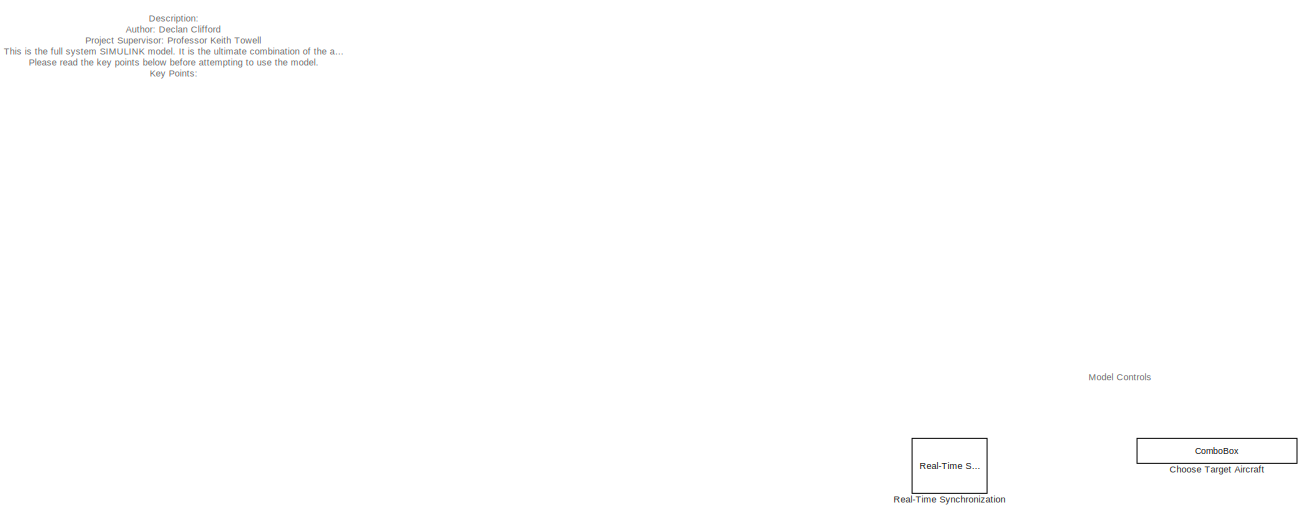
[diagram: root canvas - part 1/2, top left region]
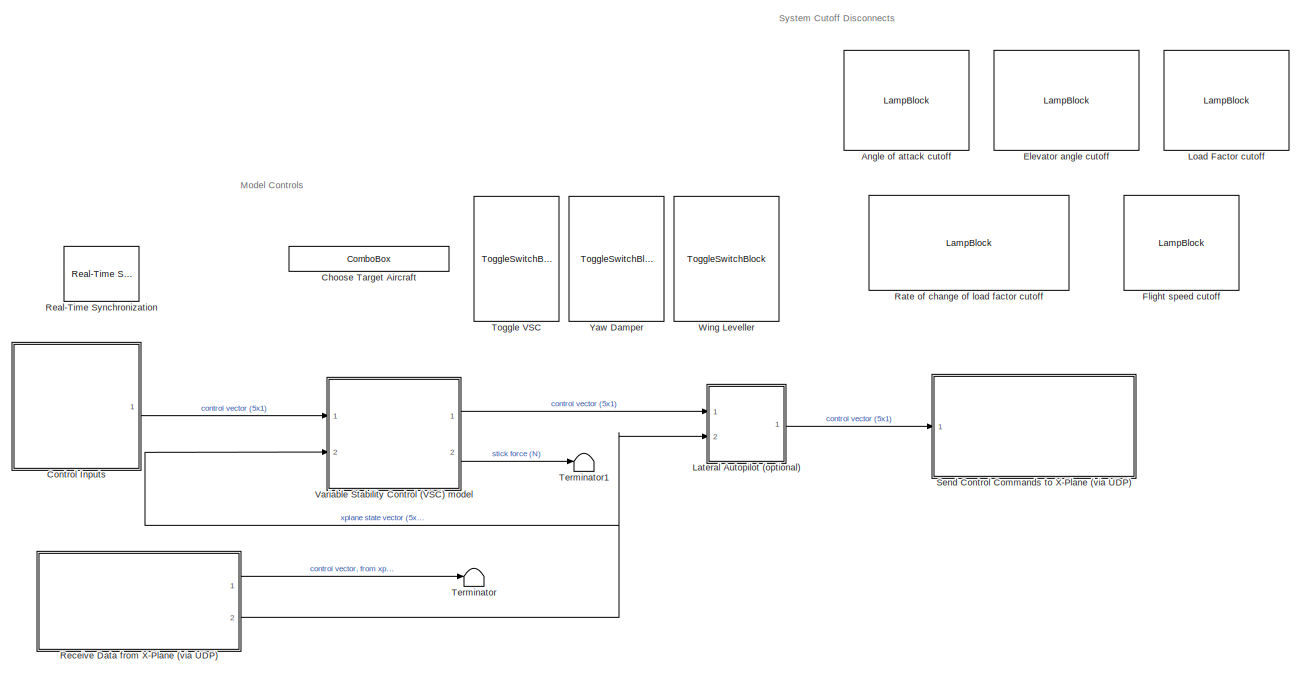
[diagram: root canvas - part 2/2, right side, full height]
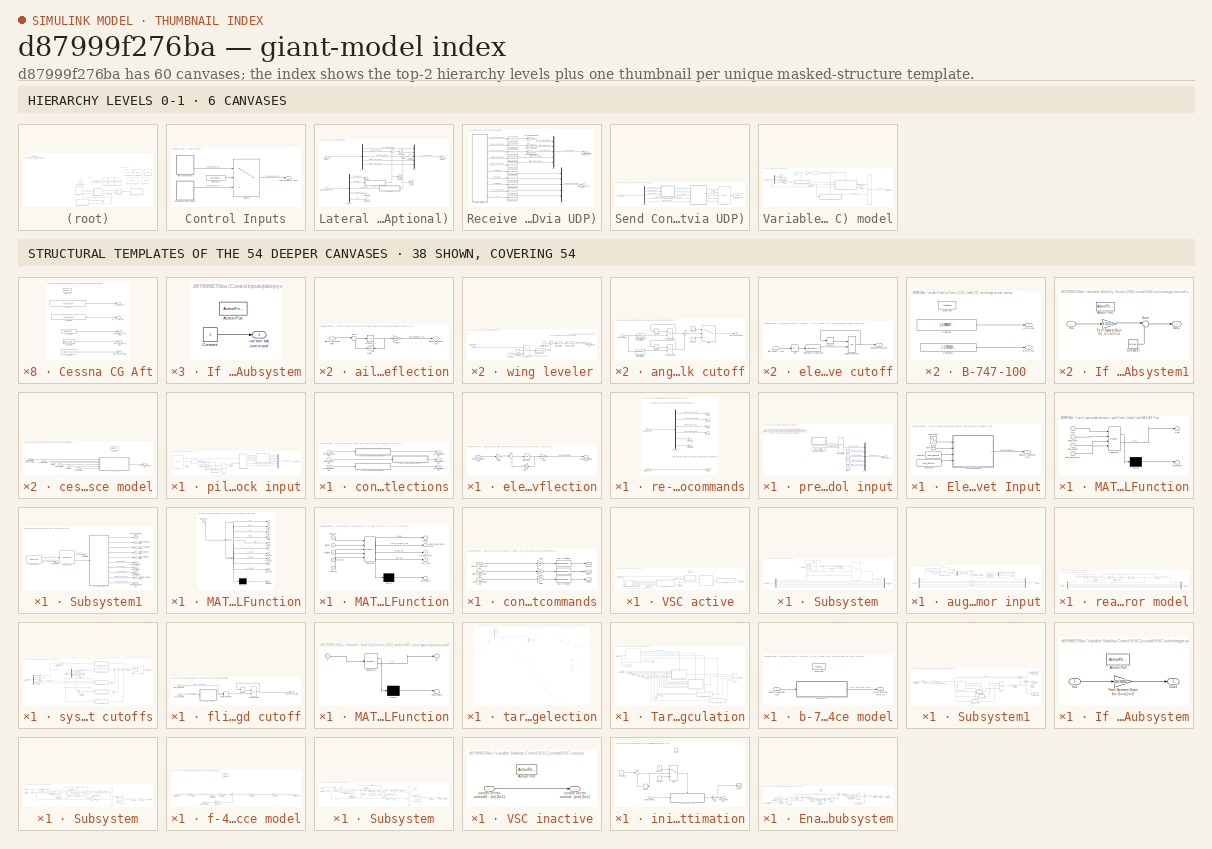
[diagram: thumbnail index - top-2 hierarchy levels (6 canvases) + 38 structural-template representatives of the remaining 54 canvases]
MODEL slx_d87999f276ba
KIND model
CONFIG AbsTol = auto
CONFIG EnableMultiTasking = off
CONFIG FixedStep = auto
CONFIG MaxStep = auto
CONFIG MinStep = auto
CONFIG RelTol = 1e-3
CONFIG SampleTimeConstraint = Unconstrained
CONFIG SolverName = ode1be
CONFIG StartTime = 0.0
CONFIG StopTime = t
BLOCK [LampBlock] Angle of attack cutoff
BLOCK [ComboBox] Choose Target Aircraft
  LabelPosition = Hide
  SelectedLabel = Scout CG 0.2935
BLOCK [SubSystem] Control Inputs
  Ports = [0, 1]
  RequestExecContextInheritance = off
BLOCK [Constant] Control Inputs/Constant1
  Value = controlvectorselect
BLOCK [Switch] Control Inputs/Switch1
  Criteria = u2 > Threshold
  InputSameDT = off
  SaturateOnIntegerOverflow = off
  Threshold = 1
BLOCK [Outport] Control Inputs/control vector (5x1)
BLOCK [SubSystem] Control Inputs/pilot joystick input
  Ports = [0, 1]
  RequestExecContextInheritance = off
BLOCK [If] Control Inputs/pilot joystick input/If
  ElseIfExpressions = u1 == 8
  IfExpression = u1 == 32
  Ports = [1, 3]
BLOCK [SubSystem] Control Inputs/pilot joystick input/If Action Subsystem
  Ports = [0, 1, 0, 0, 0, 0, 0, 1]
  RequestExecContextInheritance = off
  TreatAsAtomicUnit = on
BLOCK [Outport] Control Inputs/pilot joystick input/If Action Subsystem/+ve trim tab command
BLOCK [ActionPort] Control Inputs/pilot joystick input/If Action Subsystem/Action Port
  ActionPortLabel = if(u1 == 32)
BLOCK [Constant] Control Inputs/pilot joystick input/If Action Subsystem/Constant
BLOCK [SubSystem] Control Inputs/pilot joystick input/If Action Subsystem1
  Ports = [0, 1, 0, 0, 0, 0, 0, 1]
  RequestExecContextInheritance = off
  TreatAsAtomicUnit = on
BLOCK [Outport] Control Inputs/pilot joystick input/If Action Subsystem1/-ve trim tab command
BLOCK [ActionPort] Control Inputs/pilot joystick input/If Action Subsystem1/Action Port
  ActionPortLabel = elseif(u1 == 8)
BLOCK [Constant] Control Inputs/pilot joystick input/If Action Subsystem1/Constant
  Value = -1
BLOCK [SubSystem] Control Inputs/pilot joystick input/If Action Subsystem2
  Ports = [0, 1, 0, 0, 0, 0, 0, 1]
  RequestExecContextInheritance = off
  TreatAsAtomicUnit = on
BLOCK [ActionPort] Control Inputs/pilot joystick input/If Action Subsystem2/Action Port
  ActionPortLabel = else
BLOCK [Constant] Control Inputs/pilot joystick input/If Action Subsystem2/Constant
  Value = 0
BLOCK [Outport] Control Inputs/pilot joystick input/If Action Subsystem2/no trim tab command
BLOCK [Integrator] Control Inputs/pilot joystick input/Integration with Limits
  LimitOutput = on
  LowerSaturationLimit = -1
  Ports = [1, 1]
  UpperSaturationLimit = 1
BLOCK [Merge] Control Inputs/pilot joystick input/Merge
  Inputs = 3
  Ports = [3, 1]
BLOCK [Mux] Control Inputs/pilot joystick input/Mux
  DisplayOption = bar
  Inputs = 5
  Ports = [5, 1]
BLOCK [Reference] Control Inputs/pilot joystick input/Pilot Joystick All  REF=aerolibanimutils/Pilot Joystick
  Ports = [0, 3]
  SourceBlock = aerolibanimutils/Pilot Joystick
  SourceProductBaseCode = AE
  SourceType = PilotJoystick
BLOCK [Terminator] Control Inputs/pilot joystick input/Terminator1
BLOCK [SubSystem] Control Inputs/pilot joystick input/control surface commands to control surface deflections
  Ports = [3, 3]
  RequestExecContextInheritance = off
BLOCK [Inport] Control Inputs/pilot joystick input/control surface commands to control surface deflections/aileron command (dim)
  Port = 2
BLOCK [SubSystem] Control Inputs/pilot joystick input/control surface commands to control surface deflections/aileron command to aileron deflection
  Ports = [1, 1]
  RequestExecContextInheritance = off
BLOCK [Gain] Control Inputs/pilot joystick input/control surface commands to control surface deflections/aileron command to aileron deflection/Gain2
  Gain = control_surface_feedback
  NameLocation = top
BLOCK [Gain] Control Inputs/pilot joystick input/control surface commands to control surface deflections/aileron command to aileron deflection/Gain3
  Gain = control_surface_feedback*(ail_sat)
BLOCK [Integrator] Control Inputs/pilot joystick input/control surface commands to control surface deflections/aileron command to aileron deflection/Integrator4
  Ports = [1, 1]
BLOCK [Sum] Control Inputs/pilot joystick input/control surface commands to control surface deflections/aileron command to aileron deflection/Sum1
  Inputs = |+-
  Ports = [2, 1]
BLOCK [Inport] Control Inputs/pilot joystick input/control surface commands to control surface deflections/aileron command to aileron deflection/aileron command (dim)
BLOCK [Outport] Control Inputs/pilot joystick input/control surface commands to control surface deflections/aileron command to aileron deflection/aileron deflection (rad)
BLOCK [Outport] Control Inputs/pilot joystick input/control surface commands to control surface deflections/aileron deflection (rad)
  Port = 2
BLOCK [Inport] Control Inputs/pilot joystick input/control surface commands to control surface deflections/elevator command (dim)
BLOCK [SubSystem] Control Inputs/pilot joystick input/control surface commands to control surface deflections/elevator command to elevator deflection
  Ports = [1, 1]
  RequestExecContextInheritance = off
BLOCK [Gain] Control Inputs/pilot joystick input/control surface commands to control surface deflections/elevator command to elevator deflection/Gain
  Gain = control_surface_feedback
  NameLocation = top
BLOCK [Gain] Control Inputs/pilot joystick input/control surface commands to control surface deflections/elevator command to elevator deflection/Gain1
  Gain = control_surface_feedback*(elev_sat)
BLOCK [Gain] Control Inputs/pilot joystick input/control surface commands to control surface deflections/elevator command to elevator deflection/Gain2
  Gain = -1
BLOCK [Integrator] Control Inputs/pilot joystick input/control surface commands to control surface deflections/elevator command to elevator deflection/Integrator1
  Ports = [1, 1]
BLOCK [Sum] Control Inputs/pilot joystick input/control surface commands to control surface deflections/elevator command to elevator deflection/Sum
  Inputs = |+-
  Ports = [2, 1]
BLOCK [Inport] Control Inputs/pilot joystick input/control surface commands to control surface deflections/elevator command to elevator deflection/elevator command (dim)
BLOCK [Outport] Control Inputs/pilot joystick input/control surface commands to control surface deflections/elevator command to elevator deflection/elevator deflection (rad)
BLOCK [Outport] Control Inputs/pilot joystick input/control surface commands to control surface deflections/elevator deflection (rad)
BLOCK [Inport] Control Inputs/pilot joystick input/control surface commands to control surface deflections/rudder command (dim)
  Port = 3
BLOCK [SubSystem] Control Inputs/pilot joystick input/control surface commands to control surface deflections/rudder command to rudder deflection
  Ports = [1, 1]
  RequestExecContextInheritance = off
BLOCK [Gain] Control Inputs/pilot joystick input/control surface commands to control surface deflections/rudder command to rudder deflection/Gain4
  Gain = control_surface_feedback
  NameLocation = top
BLOCK [Gain] Control Inputs/pilot joystick input/control surface commands to control surface deflections/rudder command to rudder deflection/Gain5
  Gain = control_surface_feedback*(rud_sat)
BLOCK [Integrator] Control Inputs/pilot joystick input/control surface commands to control surface deflections/rudder command to rudder deflection/Integrator3
  Ports = [1, 1]
BLOCK [Sum] Control Inputs/pilot joystick input/control surface commands to control surface deflections/rudder command to rudder deflection/Sum2
  Inputs = |+-
  Ports = [2, 1]
BLOCK [Inport] Control Inputs/pilot joystick input/control surface commands to control surface deflections/rudder command to rudder deflection/rudder command (dim)
BLOCK [Outport] Control Inputs/pilot joystick input/control surface commands to control surface deflections/rudder command to rudder deflection/rudder deflection (rad)
BLOCK [Outport] Control Inputs/pilot joystick input/control surface commands to control surface deflections/rudder deflection (rad)
  Port = 3
BLOCK [Outport] Control Inputs/pilot joystick input/control vector (5x1)
BLOCK [SubSystem] Control Inputs/pilot joystick input/re-ordering control commands
  Ports = [2, 5]
  RequestExecContextInheritance = off
BLOCK [Demux] Control Inputs/pilot joystick input/re-ordering control commands/Demux1
  Outputs = 6
  Ports = [1, 6]
BLOCK [Terminator] Control Inputs/pilot joystick input/re-ordering control commands/Terminator2
BLOCK [Terminator] Control Inputs/pilot joystick input/re-ordering control commands/Terminator3
BLOCK [Outport] Control Inputs/pilot joystick input/re-ordering control commands/aileron
  Port = 2
BLOCK [Inport] Control Inputs/pilot joystick input/re-ordering control commands/analog vector
BLOCK [Inport] Control Inputs/pilot joystick input/re-ordering control commands/button vector
  Port = 2
BLOCK [Outport] Control Inputs/pilot joystick input/re-ordering control commands/elevator
BLOCK [Outport] Control Inputs/pilot joystick input/re-ordering control commands/rudder
  Port = 3
BLOCK [Outport] Control Inputs/pilot joystick input/re-ordering control commands/throttle
  Port = 4
BLOCK [Outport] Control Inputs/pilot joystick input/re-ordering control commands/trim tab
  Port = 5
BLOCK [SubSystem] Control Inputs/predefined control input
  Ports = [0, 1]
  RequestExecContextInheritance = off
BLOCK [SubSystem] Control Inputs/predefined control input/Elevator Doublet Input
  Ports = [0, 1]
  RequestExecContextInheritance = off
BLOCK [Clock] Control Inputs/predefined control input/Elevator Doublet Input/Clock
BLOCK [Constant] Control Inputs/predefined control input/Elevator Doublet Input/Constant
  Value = elev_period
BLOCK [Constant] Control Inputs/predefined control input/Elevator Doublet Input/Constant1
  Value = elev_period_start
BLOCK [SubSystem] Control Inputs/predefined control input/Elevator Doublet Input/MATLAB Function
  ErrorFcn = Stateflow.Translate.translate
  PermitHierarchicalResolution = ExplicitOnly
  Ports = [4, 1]
  RequestExecContextInheritance = off
  SFBlockType = MATLAB Function
  TreatAsAtomicUnit = on
BLOCK [Demux] Control Inputs/predefined control input/Elevator Doublet Input/MATLAB Function/ Demux 
  Outputs = 1
  Ports = [1, 1]
BLOCK [S-Function] Control Inputs/predefined control input/Elevator Doublet Input/MATLAB Function/ SFunction 
  EnableBusSupport = on
  FunctionName = sf_sfun
  PortCounts = [4 2]
  Ports = [4, 2]
  SFcnIsStateOwnerBlock = off
  SFunctionDeploymentMode = off
  Tag = Stateflow S-Function 3
BLOCK [Terminator] Control Inputs/predefined control input/Elevator Doublet Input/MATLAB Function/ Terminator 
BLOCK [Inport] Control Inputs/predefined control input/Elevator Doublet Input/MATLAB Function/clock_time
  Port = 2
BLOCK [Inport] Control Inputs/predefined control input/Elevator Doublet Input/MATLAB Function/elev_period
  Port = 3
BLOCK [Inport] Control Inputs/predefined control input/Elevator Doublet Input/MATLAB Function/elev_period_start
  Port = 4
BLOCK [Inport] Control Inputs/predefined control input/Elevator Doublet Input/MATLAB Function/u_in
BLOCK [Outport] Control Inputs/predefined control input/Elevator Doublet Input/MATLAB Function/u_out
BLOCK [Sin] Control Inputs/predefined control input/Elevator Doublet Input/Sine Wave
  Amplitude = elev_amplitude
  Frequency = 2*pi/(elev_period)
  Ports = [0, 1]
  SampleTime = 0
BLOCK [Outport] Control Inputs/predefined control input/Elevator Doublet Input/elevator deflection (rad)
BLOCK [ManualSwitch] Control Inputs/predefined control input/Manual Switch
BLOCK [Mux] Control Inputs/predefined control input/Mux1
  DisplayOption = bar
  Inputs = 5
  Ports = [5, 1]
BLOCK [Constant] Control Inputs/predefined control input/Step Elevator Input
  Value = elev_amplitude
BLOCK [Constant] Control Inputs/predefined control input/aileron
  Value = 0
BLOCK [Outport] Control Inputs/predefined control input/control vector (5x1)
BLOCK [Constant] Control Inputs/predefined control input/rudder
  Value = 0
BLOCK [Constant] Control Inputs/predefined control input/throttle
BLOCK [Constant] Control Inputs/predefined control input/trimtab
  Value = 0
BLOCK [LampBlock] Elevator angle cutoff
BLOCK [LampBlock] Flight speed cutoff
BLOCK [SubSystem] Lateral Autopilot (optional)
  Ports = [2, 1]
  RequestExecContextInheritance = off
BLOCK [Demux] Lateral Autopilot (optional)/Demux
  Outputs = 5
  Ports = [1, 5]
BLOCK [Demux] Lateral Autopilot (optional)/Demux1
  Outputs = 5
  Ports = [1, 5]
BLOCK [Mux] Lateral Autopilot (optional)/Mux
  DisplayOption = bar
  Inputs = 5
  Ports = [5, 1]
BLOCK [Saturate] Lateral Autopilot (optional)/Saturation
  LowerLimit = -rud_sat
  UpperLimit = rud_sat
BLOCK [Saturate] Lateral Autopilot (optional)/Saturation1
  LowerLimit = -ail_sat
  UpperLimit = ail_sat
BLOCK [Scope] Lateral Autopilot (optional)/Scope
  Floating = off
  NumInputPorts = 1
  Ports = [1]
  ScopeSpecificationString = Simulink.scopes.TimeScopeBlockCfg('CurrentConfiguration', extmgr.ConfigurationSet(extmgr.Configuration('Core','General UI',true),extmgr.Configuration('Core','Source UI',true),extmgr.Configuration('Sources','WiredSimulink',true,'DataLoggingVariableName','ScopeData1'),extmgr.Configuration('Visuals','Time Domain',true),extmgr.Configuration('Tools','Plot Navigation',true),extmgr.Configuration('Tools',...<+40ch>
BLOCK [Scope] Lateral Autopilot (optional)/Scope1
  Floating = off
  NumInputPorts = 1
  Ports = [1]
  ScopeSpecificationString = Simulink.scopes.TimeScopeBlockCfg('CurrentConfiguration', extmgr.ConfigurationSet(extmgr.Configuration('Core','General UI',true),extmgr.Configuration('Core','Source UI',true),extmgr.Configuration('Sources','WiredSimulink',true,'DataLoggingVariableName','ScopeData2'),extmgr.Configuration('Visuals','Time Domain',true),extmgr.Configuration('Tools','Plot Navigation',true),extmgr.Configuration('Tools',...<+40ch>
BLOCK [Sum] Lateral Autopilot (optional)/Sum
  Inputs = |++
  Ports = [2, 1]
BLOCK [Sum] Lateral Autopilot (optional)/Sum1
  Inputs = |++
  Ports = [2, 1]
BLOCK [Terminator] Lateral Autopilot (optional)/Terminator
BLOCK [Terminator] Lateral Autopilot (optional)/Terminator1
BLOCK [Terminator] Lateral Autopilot (optional)/Terminator2
BLOCK [Inport] Lateral Autopilot (optional)/control vector (input)
BLOCK [Outport] Lateral Autopilot (optional)/control vector (output)
BLOCK [SubSystem] Lateral Autopilot (optional)/wing leveler
  Ports = [1, 1]
  RequestExecContextInheritance = off
BLOCK [DataTypeConversion] Lateral Autopilot (optional)/wing leveler/Cast To Single4
  OutDataTypeStr = single
  RndMeth = Floor
  SaturateOnIntegerOverflow = off
BLOCK [DataTypeConversion] Lateral Autopilot (optional)/wing leveler/Cast to Double
  OutDataTypeStr = double
  RndMeth = Floor
  SaturateOnIntegerOverflow = off
BLOCK [Constant] Lateral Autopilot (optional)/wing leveler/Constant1
  Value = 0
BLOCK [Reference] Lateral Autopilot (optional)/wing leveler/PID Controller  REF=pid_lib/PID Controller
  Ports = [1, 1]
  SourceBlock = pid_lib/PID Controller
  SourceProductBaseCode = SL
  SourceType = PID 1dof
BLOCK [Sum] Lateral Autopilot (optional)/wing leveler/Sum1
  Inputs = |+-
  Ports = [2, 1]
BLOCK [Switch] Lateral Autopilot (optional)/wing leveler/Switch
  Criteria = u2 > Threshold
  InputSameDT = off
  SaturateOnIntegerOverflow = off
BLOCK [Constant] Lateral Autopilot (optional)/wing leveler/Target Roll Angle (rad)
  Value = 0
BLOCK [Outport] Lateral Autopilot (optional)/wing leveler/aileron deflection (rad)
BLOCK [Inport] Lateral Autopilot (optional)/wing leveler/roll angle (rad)
BLOCK [Constant] Lateral Autopilot (optional)/wing leveler/toggle_roll_autopilot
BLOCK [Inport] Lateral Autopilot (optional)/xplane state vector
  Port = 2
BLOCK [SubSystem] Lateral Autopilot (optional)/yaw damper
  Ports = [1, 1]
  RequestExecContextInheritance = off
BLOCK [DataTypeConversion] Lateral Autopilot (optional)/yaw damper/Cast To Double1
  OutDataTypeStr = double
  RndMeth = Floor
  SaturateOnIntegerOverflow = off
BLOCK [DataTypeConversion] Lateral Autopilot (optional)/yaw damper/Cast To Single5
  OutDataTypeStr = single
  RndMeth = Floor
  SaturateOnIntegerOverflow = off
BLOCK [Constant] Lateral Autopilot (optional)/yaw damper/Constant3
  Value = 0
BLOCK [Reference] Lateral Autopilot (optional)/yaw damper/PID Controller1  REF=pid_lib/PID Controller
  Ports = [1, 1]
  SourceBlock = pid_lib/PID Controller
  SourceProductBaseCode = SL
  SourceType = PID 1dof
BLOCK [Sum] Lateral Autopilot (optional)/yaw damper/Sum2
  Inputs = |+-
  Ports = [2, 1]
BLOCK [Switch] Lateral Autopilot (optional)/yaw damper/Switch1
  Criteria = u2 > Threshold
  InputSameDT = off
  SaturateOnIntegerOverflow = off
BLOCK [Constant] Lateral Autopilot (optional)/yaw damper/Target Yaw Rate (rad//s)
  Value = 0
BLOCK [Outport] Lateral Autopilot (optional)/yaw damper/rudder deflection
BLOCK [Constant] Lateral Autopilot (optional)/yaw damper/toggle_yaw_autopilot
BLOCK [Inport] Lateral Autopilot (optional)/yaw damper/yaw rate (rad//s)
BLOCK [LampBlock] Load Factor cutoff
BLOCK [LampBlock] Rate of change of load factor cutoff
BLOCK [Reference] Real-Time Synchronization  REF=sldrtlib/Real-Time
Synchronization
  Ports = []
  SourceBlock = sldrtlib/Real-Time\nSynchronization
  SourceProductBaseCode = WT
  SourceType = Simulink Desktop Real-Time Synchronization
BLOCK [SubSystem] Receive Data from X-Plane (via UDP)
  Ports = [0, 2]
  RequestExecContextInheritance = off
BLOCK [DataTypeConversion] Receive Data from X-Plane (via UDP)/Cast To Double
  OutDataTypeStr = double
  RndMeth = Floor
  SaturateOnIntegerOverflow = off
BLOCK [DataTypeConversion] Receive Data from X-Plane (via UDP)/Cast To Double1
  OutDataTypeStr = double
  RndMeth = Floor
  SaturateOnIntegerOverflow = off
BLOCK [DataTypeConversion] Receive Data from X-Plane (via UDP)/Cast To Double2
  OutDataTypeStr = double
  RndMeth = Floor
  SaturateOnIntegerOverflow = off
BLOCK [DataTypeConversion] Receive Data from X-Plane (via UDP)/Cast To Double3
  OutDataTypeStr = double
  RndMeth = Floor
  SaturateOnIntegerOverflow = off
BLOCK [DataTypeConversion] Receive Data from X-Plane (via UDP)/Cast To Double4
  OutDataTypeStr = double
  RndMeth = Floor
  SaturateOnIntegerOverflow = off
BLOCK [DataTypeConversion] Receive Data from X-Plane (via UDP)/Cast To Double5
  OutDataTypeStr = double
  RndMeth = Floor
  SaturateOnIntegerOverflow = off
BLOCK [DataTypeConversion] Receive Data from X-Plane (via UDP)/Cast To Double6
  OutDataTypeStr = double
  RndMeth = Floor
  SaturateOnIntegerOverflow = off
BLOCK [DataTypeConversion] Receive Data from X-Plane (via UDP)/Cast To Double7
  OutDataTypeStr = double
  RndMeth = Floor
  SaturateOnIntegerOverflow = off
BLOCK [DataTypeConversion] Receive Data from X-Plane (via UDP)/Cast To Double8
  OutDataTypeStr = double
  RndMeth = Floor
  SaturateOnIntegerOverflow = off
BLOCK [DataTypeConversion] Receive Data from X-Plane (via UDP)/Cast To Double9
  OutDataTypeStr = double
  RndMeth = Floor
  SaturateOnIntegerOverflow = off
BLOCK [Mux] Receive Data from X-Plane (via UDP)/Mux
  DisplayOption = bar
  Inputs = 5
  Ports = [5, 1]
BLOCK [Mux] Receive Data from X-Plane (via UDP)/Mux1
  DisplayOption = bar
  Inputs = 5
  Ports = [5, 1]
BLOCK [SubSystem] Receive Data from X-Plane (via UDP)/Subsystem1
  Ports = [0, 10]
  RequestExecContextInheritance = off
BLOCK [Reference] Receive Data from X-Plane (via UDP)/Subsystem1/Byte Unpack  REF=etargetslib/Byte Unpack
  Ports = [1, 2]
  SourceBlock = etargetslib/Byte Unpack
  SourceProductBaseCode = ME
  SourceType = Byte Unpack
BLOCK [Outport] Receive Data from X-Plane (via UDP)/Subsystem1/Indicated Airspeed (kt)
  Port = 10
BLOCK [SubSystem] Receive Data from X-Plane (via UDP)/Subsystem1/MATLAB Function
  ErrorFcn = Stateflow.Translate.translate
  PermitHierarchicalResolution = ExplicitOnly
  Ports = [1, 10]
  RequestExecContextInheritance = off
  SFBlockType = MATLAB Function
  TreatAsAtomicUnit = on
BLOCK [Demux] Receive Data from X-Plane (via UDP)/Subsystem1/MATLAB Function/ Demux 
  Outputs = 1
  Ports = [1, 1]
BLOCK [S-Function] Receive Data from X-Plane (via UDP)/Subsystem1/MATLAB Function/ SFunction 
  EnableBusSupport = on
  FunctionName = sf_sfun
  PortCounts = [1 11]
  Ports = [1, 11]
  SFcnIsStateOwnerBlock = off
  SFunctionDeploymentMode = off
  Tag = Stateflow S-Function 1
BLOCK [Terminator] Receive Data from X-Plane (via UDP)/Subsystem1/MATLAB Function/ Terminator 
BLOCK [Inport] Receive Data from X-Plane (via UDP)/Subsystem1/MATLAB Function/data_input
BLOCK [Outport] Receive Data from X-Plane (via UDP)/Subsystem1/MATLAB Function/delta_a
  Port = 2
BLOCK [Outport] Receive Data from X-Plane (via UDP)/Subsystem1/MATLAB Function/delta_r
  Port = 3
BLOCK [Outport] Receive Data from X-Plane (via UDP)/Subsystem1/MATLAB Function/delta_tt
  Port = 5
BLOCK [Outport] Receive Data from X-Plane (via UDP)/Subsystem1/MATLAB Function/eta
BLOCK [Outport] Receive Data from X-Plane (via UDP)/Subsystem1/MATLAB Function/n
  Port = 9
BLOCK [Outport] Receive Data from X-Plane (via UDP)/Subsystem1/MATLAB Function/q
  Port = 6
BLOCK [Outport] Receive Data from X-Plane (via UDP)/Subsystem1/MATLAB Function/roll_angle
  Port = 7
BLOCK [Outport] Receive Data from X-Plane (via UDP)/Subsystem1/MATLAB Function/throttle
  Port = 4
BLOCK [Outport] Receive Data from X-Plane (via UDP)/Subsystem1/MATLAB Function/vInd_kias
  Port = 10
BLOCK [Outport] Receive Data from X-Plane (via UDP)/Subsystem1/MATLAB Function/yaw_rate
  Port = 8
BLOCK [Outport] Receive Data from X-Plane (via UDP)/Subsystem1/Normal G Loading (dim)
  Port = 9
BLOCK [Outport] Receive Data from X-Plane (via UDP)/Subsystem1/Pitch Rate (rad//s)
  Port = 6
BLOCK [Outport] Receive Data from X-Plane (via UDP)/Subsystem1/Roll Angle (rad)
  Port = 7
BLOCK [Terminator] Receive Data from X-Plane (via UDP)/Subsystem1/Terminator3
BLOCK [Terminator] Receive Data from X-Plane (via UDP)/Subsystem1/Terminator4
BLOCK [Reference] Receive Data from X-Plane (via UDP)/Subsystem1/UDP Receive  REF=dspnetwork/UDP Receive
  Ports = [0, 2]
  SourceBlock = dspnetwork/UDP Receive
  SourceProductBaseCode = SL
  SourceType = UDP Receive
BLOCK [Outport] Receive Data from X-Plane (via UDP)/Subsystem1/Yaw Rate (rad//s)
  Port = 8
BLOCK [Outport] Receive Data from X-Plane (via UDP)/Subsystem1/aileron command (dim)
  Port = 2
BLOCK [Outport] Receive Data from X-Plane (via UDP)/Subsystem1/elevator command (dim)
BLOCK [Outport] Receive Data from X-Plane (via UDP)/Subsystem1/rudder command (dim)
  Port = 3
BLOCK [Outport] Receive Data from X-Plane (via UDP)/Subsystem1/throttle command (dim)
  Port = 4
BLOCK [Outport] Receive Data from X-Plane (via UDP)/Subsystem1/trim tab command (dim)
  Port = 5
BLOCK [Gain] Receive Data from X-Plane (via UDP)/aileron saturation (rad)
  Gain = ail_sat
BLOCK [Outport] Receive Data from X-Plane (via UDP)/control vector, from xplane (5x1)
BLOCK [Gain] Receive Data from X-Plane (via UDP)/elevator saturation (rad)
  Gain = elev_sat
BLOCK [Gain] Receive Data from X-Plane (via UDP)/rudder saturation (rad)
  Gain = rud_sat
BLOCK [Outport] Receive Data from X-Plane (via UDP)/xplane state vector (5x1)
  Port = 2
BLOCK [SubSystem] Send Control Commands to X-Plane (via UDP)
  Ports = [1]
  RequestExecContextInheritance = off
BLOCK [Constant] Send Control Commands to X-Plane (via UDP)/1 byte [0]
  OutDataTypeStr = uint8
  Value = [48]
BLOCK [Demux] Send Control Commands to X-Plane (via UDP)/Demux
  Outputs = 5
  Ports = [1, 5]
BLOCK [SubSystem] Send Control Commands to X-Plane (via UDP)/MATLAB Function
  ErrorFcn = Stateflow.Translate.translate
  PermitHierarchicalResolution = ExplicitOnly
  Ports = [5, 4]
  RequestExecContextInheritance = off
  SFBlockType = MATLAB Function
  TreatAsAtomicUnit = on
BLOCK [Demux] Send Control Commands to X-Plane (via UDP)/MATLAB Function/ Demux 
  Outputs = 1
  Ports = [1, 1]
BLOCK [S-Function] Send Control Commands to X-Plane (via UDP)/MATLAB Function/ SFunction 
  EnableBusSupport = on
  FunctionName = sf_sfun
  PortCounts = [5 5]
  Ports = [5, 5]
  SFcnIsStateOwnerBlock = off
  SFunctionDeploymentMode = off
  Tag = Stateflow S-Function 2
BLOCK [Terminator] Send Control Commands to X-Plane (via UDP)/MATLAB Function/ Terminator 
BLOCK [Inport] Send Control Commands to X-Plane (via UDP)/MATLAB Function/aileron
  Port = 2
BLOCK [Outport] Send Control Commands to X-Plane (via UDP)/MATLAB Function/control_surfaces_cmd
  Port = 2
BLOCK [Inport] Send Control Commands to X-Plane (via UDP)/MATLAB Function/elevator
BLOCK [Outport] Send Control Commands to X-Plane (via UDP)/MATLAB Function/header
BLOCK [Inport] Send Control Commands to X-Plane (via UDP)/MATLAB Function/rudder
  Port = 3
BLOCK [Inport] Send Control Commands to X-Plane (via UDP)/MATLAB Function/throttle
  Port = 4
BLOCK [Outport] Send Control Commands to X-Plane (via UDP)/MATLAB Function/throttle_cmd
  Port = 3
BLOCK [Outport] Send Control Commands to X-Plane (via UDP)/MATLAB Function/trim_cmd
  Port = 4
BLOCK [Inport] Send Control Commands to X-Plane (via UDP)/MATLAB Function/trimtab
  Port = 5
BLOCK [Reference] Send Control Commands to X-Plane (via UDP)/Pack Bytes  REF=etargetslib/Byte Pack
  Ports = [5, 1]
  SourceBlock = etargetslib/Byte Pack
  SourceProductBaseCode = ME
  SourceType = Byte pack
BLOCK [Reference] Send Control Commands to X-Plane (via UDP)/Send to X-Plane  REF=dspnetwork/UDP Send
  Ports = [1]
  SourceBlock = dspnetwork/UDP Send
  SourceProductBaseCode = SL
  SourceType = UDP Send
BLOCK [SubSystem] Send Control Commands to X-Plane (via UDP)/control surface deflections to control surface commands
  Ports = [3, 3]
  RequestExecContextInheritance = off
BLOCK [DataTypeConversion] Send Control Commands to X-Plane (via UDP)/control surface deflections to control surface commands/Cast To Single
  OutDataTypeStr = single
  RndMeth = Floor
  SaturateOnIntegerOverflow = off
BLOCK [DataTypeConversion] Send Control Commands to X-Plane (via UDP)/control surface deflections to control surface commands/Cast To Single1
  OutDataTypeStr = single
  RndMeth = Floor
  SaturateOnIntegerOverflow = off
BLOCK [DataTypeConversion] Send Control Commands to X-Plane (via UDP)/control surface deflections to control surface commands/Cast To Single2
  OutDataTypeStr = single
  RndMeth = Floor
  SaturateOnIntegerOverflow = off
BLOCK [Gain] Send Control Commands to X-Plane (via UDP)/control surface deflections to control surface commands/Gain
  Gain = -1/elev_sat
BLOCK [Gain] Send Control Commands to X-Plane (via UDP)/control surface deflections to control surface commands/Gain1
  Gain = 1/ail_sat
BLOCK [Gain] Send Control Commands to X-Plane (via UDP)/control surface deflections to control surface commands/Gain2
  Gain = 1/rud_sat
BLOCK [Outport] Send Control Commands to X-Plane (via UDP)/control surface deflections to control surface commands/aileron
  Port = 2
BLOCK [Inport] Send Control Commands to X-Plane (via UDP)/control surface deflections to control surface commands/aileron deflection (rad)
  Port = 2
BLOCK [Outport] Send Control Commands to X-Plane (via UDP)/control surface deflections to control surface commands/elevator
BLOCK [Inport] Send Control Commands to X-Plane (via UDP)/control surface deflections to control surface commands/elevator deflection (rad)
BLOCK [Outport] Send Control Commands to X-Plane (via UDP)/control surface deflections to control surface commands/rudder
  Port = 3
BLOCK [Inport] Send Control Commands to X-Plane (via UDP)/control surface deflections to control surface commands/rudder deflection (rad)
  Port = 3
BLOCK [Inport] Send Control Commands to X-Plane (via UDP)/control vector (5x1)
BLOCK [Terminator] Terminator
BLOCK [Terminator] Terminator1
BLOCK [ToggleSwitchBlock] Toggle VSC
BLOCK [SubSystem] Variable Stability Control (VSC) model
  Ports = [2, 2]
  RequestExecContextInheritance = off
BLOCK [Delay] Variable Stability Control (VSC) model/Delay
  DelayLength = 9
  InputPortMap = u0
  Ports = [1, 1]
BLOCK [Demux] Variable Stability Control (VSC) model/Demux
  Outputs = 5
  Ports = [1, 5]
BLOCK [If] Variable Stability Control (VSC) model/If
  ElseIfExpressions = u1 == -1
  IfExpression = u1 == 1
  Ports = [1, 2]
  ShowElse = off
BLOCK [Merge] Variable Stability Control (VSC) model/Merge
  Ports = [2, 1]
BLOCK [Outport] Variable Stability Control (VSC) model/Stick Force (N)
  Port = 2
BLOCK [Terminator] Variable Stability Control (VSC) model/Terminator
BLOCK [Terminator] Variable Stability Control (VSC) model/Terminator1
BLOCK [Terminator] Variable Stability Control (VSC) model/Terminator2
BLOCK [Terminator] Variable Stability Control (VSC) model/Terminator3
BLOCK [Terminator] Variable Stability Control (VSC) model/Terminator4
BLOCK [SubSystem] Variable Stability Control (VSC) model/VSC active
  Ports = [3, 3, 0, 0, 0, 0, 0, 1]
  RequestExecContextInheritance = off
  TreatAsAtomicUnit = on
BLOCK [ActionPort] Variable Stability Control (VSC) model/VSC active/Action Port
  ActionPortLabel = if(u1 == 1)
BLOCK [Outport] Variable Stability Control (VSC) model/VSC active/Stick Force (N)
  Port = 2
BLOCK [SubSystem] Variable Stability Control (VSC) model/VSC active/Subsystem
  Ports = [2, 1]
  RequestExecContextInheritance = off
BLOCK [Demux] Variable Stability Control (VSC) model/VSC active/Subsystem/Demux
  Outputs = 5
  Ports = [1, 5]
BLOCK [Gain] Variable Stability Control (VSC) model/VSC active/Subsystem/Gain
  Gain = control_surface_feedback
  NameLocation = top
BLOCK [Integrator] Variable Stability Control (VSC) model/VSC active/Subsystem/Integrator
  Ports = [1, 1]
BLOCK [Memory] Variable Stability Control (VSC) model/VSC active/Subsystem/Memory
BLOCK [Mux] Variable Stability Control (VSC) model/VSC active/Subsystem/Mux
  DisplayOption = bar
  Inputs = 5
  Ports = [5, 1]
BLOCK [Sum] Variable Stability Control (VSC) model/VSC active/Subsystem/Sum
  Inputs = |+-
  Ports = [2, 1]
BLOCK [Switch] Variable Stability Control (VSC) model/VSC active/Subsystem/Switch
  InputSameDT = off
  SaturateOnIntegerOverflow = off
  Threshold = 1
BLOCK [Switch] Variable Stability Control (VSC) model/VSC active/Subsystem/Switch1
  InputSameDT = off
  SaturateOnIntegerOverflow = off
  Threshold = 1
BLOCK [Inport] Variable Stability Control (VSC) model/VSC active/Subsystem/control vector (5x1)
  Port = 2
BLOCK [Outport] Variable Stability Control (VSC) model/VSC active/Subsystem/control vector, out (5x1)
BLOCK [Inport] Variable Stability Control (VSC) model/VSC active/Subsystem/disconnectcontrol?
BLOCK [Outport] Variable Stability Control (VSC) model/VSC active/acuated modified control vector
BLOCK [Inport] Variable Stability Control (VSC) model/VSC active/alpha_w_initial(rad)
BLOCK [SubSystem] Variable Stability Control (VSC) model/VSC active/augment elevator input
  Ports = [5, 2]
  RequestExecContextInheritance = off
BLOCK [Inport] Variable Stability Control (VSC) model/VSC active/augment elevator input/A_t
BLOCK [Inport] Variable Stability Control (VSC) model/VSC active/augment elevator input/B_t
  Port = 2
BLOCK [Inport] Variable Stability Control (VSC) model/VSC active/augment elevator input/C_t
  Port = 3
BLOCK [Inport] Variable Stability Control (VSC) model/VSC active/augment elevator input/D_t
  Port = 4
BLOCK [Demux] Variable Stability Control (VSC) model/VSC active/augment elevator input/Demux
  Outputs = 5
  Ports = [1, 5]
BLOCK [Demux] Variable Stability Control (VSC) model/VSC active/augment elevator input/Demux1
  Outputs = 2
  Ports = [1, 2]
BLOCK [Demux] Variable Stability Control (VSC) model/VSC active/augment elevator input/Demux2
  Outputs = 2
  Ports = [1, 2]
BLOCK [Mux] Variable Stability Control (VSC) model/VSC active/augment elevator input/Mux
  DisplayOption = bar
  Inputs = 5
  Ports = [5, 1]
BLOCK [Reference] Variable Stability Control (VSC) model/VSC active/augment elevator input/PID Controller  REF=pid_lib/PID Controller
  NameLocation = right
  Ports = [1, 1]
  SourceBlock = pid_lib/PID Controller
  SourceProductBaseCode = SL
  SourceType = PID 1dof
BLOCK [Sum] Variable Stability Control (VSC) model/VSC active/augment elevator input/Sum
  Inputs = |+-
  Ports = [2, 1]
BLOCK [Terminator] Variable Stability Control (VSC) model/VSC active/augment elevator input/Terminator
BLOCK [Terminator] Variable Stability Control (VSC) model/VSC active/augment elevator input/Terminator5
BLOCK [Terminator] Variable Stability Control (VSC) model/VSC active/augment elevator input/Terminator6
BLOCK [Terminator] Variable Stability Control (VSC) model/VSC active/augment elevator input/Terminator7
BLOCK [Inport] Variable Stability Control (VSC) model/VSC active/augment elevator input/control vector (5x1)
  Port = 5
BLOCK [Saturate] Variable Stability Control (VSC) model/VSC active/augment elevator input/elevator saturation
  LowerLimit = -elev_sat
  UpperLimit = elev_sat
BLOCK [Outport] Variable Stability Control (VSC) model/VSC active/augment elevator input/modified control vector (5x1)
BLOCK [StateSpace] Variable Stability Control (VSC) model/VSC active/augment elevator input/sherwood scout SPPO flight dynamics model
  A = A_sc(2:3,2:3)
  B = B_sc(2:3)
  C = eye(2)
  D = zeros(2,1)
  InitialCondition = [0;0]
  Ports = [1, 1]
BLOCK [Reference] Variable Stability Control (VSC) model/VSC active/augment elevator input/target aircraft SPPO flight dynamics model  REF=cstblocks/Linear Parameter Varying/Varying State Space
  Ports = [5, 2]
  SourceBlock = cstblocks/Linear Parameter Varying/Varying State Space
  SourceProductBaseCode = CT
  SourceType = Varying State Space
BLOCK [Outport] Variable Stability Control (VSC) model/VSC active/augment elevator input/target pitch rate (rad//s)
  Port = 2
BLOCK [SubSystem] Variable Stability Control (VSC) model/VSC active/rear actuator model
  Ports = [1, 1]
  RequestExecContextInheritance = off
BLOCK [Demux] Variable Stability Control (VSC) model/VSC active/rear actuator model/Demux
  Outputs = 5
  Ports = [1, 5]
BLOCK [Saturate] Variable Stability Control (VSC) model/VSC active/rear actuator model/Elevator Saturation
  LowerLimit = -elev_sat
  UpperLimit = elev_sat
BLOCK [Constant] Variable Stability Control (VSC) model/VSC active/rear actuator model/Inertial Term
  Value = 0
BLOCK [Integrator] Variable Stability Control (VSC) model/VSC active/rear actuator model/Integrate
  Ports = [1, 1]
BLOCK [Integrator] Variable Stability Control (VSC) model/VSC active/rear actuator model/Integrate1
  Ports = [1, 1]
BLOCK [Integrator] Variable Stability Control (VSC) model/VSC active/rear actuator model/Integrator
  NameLocation = top
  Ports = [1, 1]
BLOCK [Integrator] Variable Stability Control (VSC) model/VSC active/rear actuator model/Integrator1
  NameLocation = top
  Ports = [1, 1]
BLOCK [Mux] Variable Stability Control (VSC) model/VSC active/rear actuator model/Mux
  DisplayOption = bar
  Inputs = 5
  Ports = [5, 1]
BLOCK [Reference] Variable Stability Control (VSC) model/VSC active/rear actuator model/PD Controller  REF=pid_lib/PID Controller
  Ports = [1, 1]
  SourceBlock = pid_lib/PID Controller
  SourceProductBaseCode = SL
  SourceType = PID 1dof
BLOCK [Saturate] Variable Stability Control (VSC) model/VSC active/rear actuator model/Rate Saturation
  LowerLimit = -actuator_rate
  UpperLimit = actuator_rate
BLOCK [Sum] Variable Stability Control (VSC) model/VSC active/rear actuator model/Sum
  Inputs = |+-
  Ports = [2, 1]
BLOCK [Sum] Variable Stability Control (VSC) model/VSC active/rear actuator model/Sum1
  Inputs = |+-
  Ports = [2, 1]
BLOCK [Sum] Variable Stability Control (VSC) model/VSC active/rear actuator model/Sum2
  Inputs = |+-
  Ports = [2, 1]
BLOCK [Sum] Variable Stability Control (VSC) model/VSC active/rear actuator model/Sum3
  Inputs = |+-
  Ports = [2, 1]
BLOCK [Outport] Variable Stability Control (VSC) model/VSC active/rear actuator model/acuated modified control vector
BLOCK [Inport] Variable Stability Control (VSC) model/VSC active/rear actuator model/modified control vector
BLOCK [SubSystem] Variable Stability Control (VSC) model/VSC active/system safety cutoffs
  Ports = [3, 1]
  RequestExecContextInheritance = off
BLOCK [Constant] Variable Stability Control (VSC) model/VSC active/system safety cutoffs/Constant
  Value = 0
BLOCK [Constant] Variable Stability Control (VSC) model/VSC active/system safety cutoffs/Constant1
BLOCK [Demux] Variable Stability Control (VSC) model/VSC active/system safety cutoffs/Demux
  Outputs = 5
  Ports = [1, 5]
BLOCK [Demux] Variable Stability Control (VSC) model/VSC active/system safety cutoffs/Demux1
  Outputs = 5
  Ports = [1, 5]
BLOCK [Gain] Variable Stability Control (VSC) model/VSC active/system safety cutoffs/Gain
  Gain = dt
BLOCK [Gain] Variable Stability Control (VSC) model/VSC active/system safety cutoffs/Gain1
  Gain = 0
BLOCK [Gain] Variable Stability Control (VSC) model/VSC active/system safety cutoffs/Gain2
  Gain = 0
BLOCK [Integrator] Variable Stability Control (VSC) model/VSC active/system safety cutoffs/Integrator
  NameLocation = top
  Ports = [1, 1]
BLOCK [Sum] Variable Stability Control (VSC) model/VSC active/system safety cutoffs/Sum
  Inputs = |++
  Ports = [2, 1]
BLOCK [Sum] Variable Stability Control (VSC) model/VSC active/system safety cutoffs/Sum1
  Inputs = |++
  Ports = [2, 1]
BLOCK [Sum] Variable Stability Control (VSC) model/VSC active/system safety cutoffs/Sum2
  Inputs = |++
  Ports = [2, 1]
BLOCK [Sum] Variable Stability Control (VSC) model/VSC active/system safety cutoffs/Sum3
  IconShape = rectangular
  Inputs = |++
  Ports = [2, 1]
BLOCK [Sum] Variable Stability Control (VSC) model/VSC active/system safety cutoffs/Sum4
  IconShape = rectangular
  Inputs = |++
  Ports = [2, 1]
BLOCK [Sum] Variable Stability Control (VSC) model/VSC active/system safety cutoffs/Sum5
  Inputs = |+-
  Ports = [2, 1]
BLOCK [Switch] Variable Stability Control (VSC) model/VSC active/system safety cutoffs/Switch
  Criteria = u2 > Threshold
  InputSameDT = off
  SaturateOnIntegerOverflow = off
BLOCK [Terminator] Variable Stability Control (VSC) model/VSC active/system safety cutoffs/Terminator
BLOCK [Terminator] Variable Stability Control (VSC) model/VSC active/system safety cutoffs/Terminator1
BLOCK [Terminator] Variable Stability Control (VSC) model/VSC active/system safety cutoffs/Terminator2
BLOCK [Terminator] Variable Stability Control (VSC) model/VSC active/system safety cutoffs/Terminator3
BLOCK [Terminator] Variable Stability Control (VSC) model/VSC active/system safety cutoffs/Terminator4
BLOCK [Terminator] Variable Stability Control (VSC) model/VSC active/system safety cutoffs/Terminator5
BLOCK [Inport] Variable Stability Control (VSC) model/VSC active/system safety cutoffs/alpha_w_initial (rad)
  Port = 2
BLOCK [SubSystem] Variable Stability Control (VSC) model/VSC active/system safety cutoffs/angle of attack cutoff
  Ports = [1, 1]
  RequestExecContextInheritance = off
BLOCK [Reference] Variable Stability Control (VSC) model/VSC active/system safety cutoffs/angle of attack cutoff/+ve wing angle of attack limit (rad)  REF=simulink/Logic and Bit
Operations/Compare
To Constant
  Ports = [1, 1]
  SourceBlock = simulink/Logic and Bit\nOperations/Compare\nTo Constant
  SourceProductBaseCode = SL
  SourceType = Compare To Constant
BLOCK [Reference] Variable Stability Control (VSC) model/VSC active/system safety cutoffs/angle of attack cutoff/-ve wing angle of attack limit (rad)  REF=simulink/Logic and Bit
Operations/Compare
To Constant
  Ports = [1, 1]
  SourceBlock = simulink/Logic and Bit\nOperations/Compare\nTo Constant
  SourceProductBaseCode = SL
  SourceType = Compare To Constant
BLOCK [Constant] Variable Stability Control (VSC) model/VSC active/system safety cutoffs/angle of attack cutoff/Constant
  Value = 0
BLOCK [Constant] Variable Stability Control (VSC) model/VSC active/system safety cutoffs/angle of attack cutoff/Constant1
BLOCK [Logic] Variable Stability Control (VSC) model/VSC active/system safety cutoffs/angle of attack cutoff/Logical Operator
  AllPortsSameDT = off
  Operator = OR
  OutDataTypeStr = boolean
  Ports = [2, 1]
BLOCK [Logic] Variable Stability Control (VSC) model/VSC active/system safety cutoffs/angle of attack cutoff/Logical Operator1
  AllPortsSameDT = off
  Operator = OR
  OutDataTypeStr = boolean
  Ports = [2, 1]
BLOCK [Memory] Variable Stability Control (VSC) model/VSC active/system safety cutoffs/angle of attack cutoff/Memory
BLOCK [Memory] Variable Stability Control (VSC) model/VSC active/system safety cutoffs/angle of attack cutoff/Memory1
BLOCK [Sum] Variable Stability Control (VSC) model/VSC active/system safety cutoffs/angle of attack cutoff/Sum
  Inputs = |++
  Ports = [2, 1]
BLOCK [Switch] Variable Stability Control (VSC) model/VSC active/system safety cutoffs/angle of attack cutoff/Switch
  Criteria = u2 > Threshold
  InputSameDT = off
  SaturateOnIntegerOverflow = off
BLOCK [Inport] Variable Stability Control (VSC) model/VSC active/system safety cutoffs/angle of attack cutoff/alpha_w (rad)
BLOCK [Outport] Variable Stability Control (VSC) model/VSC active/system safety cutoffs/angle of attack cutoff/disconnectcontrol?
BLOCK [Outport] Variable Stability Control (VSC) model/VSC active/system safety cutoffs/disconnectcontrol?
BLOCK [SubSystem] Variable Stability Control (VSC) model/VSC active/system safety cutoffs/elevator angle cutoff
  Ports = [1, 1]
  RequestExecContextInheritance = off
BLOCK [Abs] Variable Stability Control (VSC) model/VSC active/system safety cutoffs/elevator angle cutoff/Abs
  SaturateOnIntegerOverflow = off
BLOCK [Reference] Variable Stability Control (VSC) model/VSC active/system safety cutoffs/elevator angle cutoff/Compare To Constant  REF=simulink/Logic and Bit
Operations/Compare
To Constant
  Ports = [1, 1]
  SourceBlock = simulink/Logic and Bit\nOperations/Compare\nTo Constant
  SourceProductBaseCode = SL
  SourceType = Compare To Constant
BLOCK [Logic] Variable Stability Control (VSC) model/VSC active/system safety cutoffs/elevator angle cutoff/Logical Operator
  AllPortsSameDT = off
  Operator = OR
  OutDataTypeStr = boolean
  Ports = [2, 1]
BLOCK [Memory] Variable Stability Control (VSC) model/VSC active/system safety cutoffs/elevator angle cutoff/Memory
BLOCK [Outport] Variable Stability Control (VSC) model/VSC active/system safety cutoffs/elevator angle cutoff/disconnectcontrol?
BLOCK [Inport] Variable Stability Control (VSC) model/VSC active/system safety cutoffs/elevator angle cutoff/elev deflect (rad)
BLOCK [SubSystem] Variable Stability Control (VSC) model/VSC active/system safety cutoffs/flight speed cutoff
  Ports = [2, 1]
  RequestExecContextInheritance = off
BLOCK [Logic] Variable Stability Control (VSC) model/VSC active/system safety cutoffs/flight speed cutoff/Logical Operator1
  AllPortsSameDT = off
  Operator = OR
  OutDataTypeStr = boolean
  Ports = [2, 1]
BLOCK [SubSystem] Variable Stability Control (VSC) model/VSC active/system safety cutoffs/flight speed cutoff/MATLAB Function
  ErrorFcn = Stateflow.Translate.translate
  PermitHierarchicalResolution = ExplicitOnly
  Ports = [1, 1]
  RequestExecContextInheritance = off
  SFBlockType = MATLAB Function
  TreatAsAtomicUnit = on
BLOCK [Demux] Variable Stability Control (VSC) model/VSC active/system safety cutoffs/flight speed cutoff/MATLAB Function/ Demux 
  Outputs = 1
  Ports = [1, 1]
BLOCK [S-Function] Variable Stability Control (VSC) model/VSC active/system safety cutoffs/flight speed cutoff/MATLAB Function/ SFunction 
  EnableBusSupport = on
  FunctionName = sf_sfun
  PortCounts = [1 2]
  Ports = [1, 2]
  SFcnIsStateOwnerBlock = off
  SFunctionDeploymentMode = off
  Tag = Stateflow S-Function 5
BLOCK [Terminator] Variable Stability Control (VSC) model/VSC active/system safety cutoffs/flight speed cutoff/MATLAB Function/ Terminator 
BLOCK [Outport] Variable Stability Control (VSC) model/VSC active/system safety cutoffs/flight speed cutoff/MATLAB Function/Va
BLOCK [Inport] Variable Stability Control (VSC) model/VSC active/system safety cutoffs/flight speed cutoff/MATLAB Function/n
BLOCK [Memory] Variable Stability Control (VSC) model/VSC active/system safety cutoffs/flight speed cutoff/Memory1
BLOCK [RelationalOperator] Variable Stability Control (VSC) model/VSC active/system safety cutoffs/flight speed cutoff/Relational Operator
  InputSameDT = off
  Operator = <
  OutDataTypeStr = boolean
  Ports = [2, 1]
  RndMeth = Simplest
BLOCK [Outport] Variable Stability Control (VSC) model/VSC active/system safety cutoffs/flight speed cutoff/disconnectcontrol?
BLOCK [Inport] Variable Stability Control (VSC) model/VSC active/system safety cutoffs/flight speed cutoff/flight_speed (m//s)
  Port = 2
BLOCK [Inport] Variable Stability Control (VSC) model/VSC active/system safety cutoffs/flight speed cutoff/load_factor (dim)
BLOCK [Gain] Variable Stability Control (VSC) model/VSC active/system safety cutoffs/kt to m//s
  Gain = 0.5144
BLOCK [SubSystem] Variable Stability Control (VSC) model/VSC active/system safety cutoffs/load factor cutoff
  Ports = [1, 1]
  RequestExecContextInheritance = off
BLOCK [Reference] Variable Stability Control (VSC) model/VSC active/system safety cutoffs/load factor cutoff/Compare To Constant  REF=simulink/Logic and Bit
Operations/Compare
To Constant
  Ports = [1, 1]
  SourceBlock = simulink/Logic and Bit\nOperations/Compare\nTo Constant
  SourceProductBaseCode = SL
  SourceType = Compare To Constant
BLOCK [Reference] Variable Stability Control (VSC) model/VSC active/system safety cutoffs/load factor cutoff/Compare To Constant1  REF=simulink/Logic and Bit
Operations/Compare
To Constant
  Ports = [1, 1]
  SourceBlock = simulink/Logic and Bit\nOperations/Compare\nTo Constant
  SourceProductBaseCode = SL
  SourceType = Compare To Constant
BLOCK [Constant] Variable Stability Control (VSC) model/VSC active/system safety cutoffs/load factor cutoff/Constant
  Value = 0
BLOCK [Constant] Variable Stability Control (VSC) model/VSC active/system safety cutoffs/load factor cutoff/Constant1
BLOCK [Logic] Variable Stability Control (VSC) model/VSC active/system safety cutoffs/load factor cutoff/Logical Operator
  AllPortsSameDT = off
  Operator = OR
  OutDataTypeStr = boolean
  Ports = [2, 1]
BLOCK [Logic] Variable Stability Control (VSC) model/VSC active/system safety cutoffs/load factor cutoff/Logical Operator1
  AllPortsSameDT = off
  Operator = OR
  OutDataTypeStr = boolean
  Ports = [2, 1]
BLOCK [Memory] Variable Stability Control (VSC) model/VSC active/system safety cutoffs/load factor cutoff/Memory
BLOCK [Memory] Variable Stability Control (VSC) model/VSC active/system safety cutoffs/load factor cutoff/Memory1
BLOCK [Sum] Variable Stability Control (VSC) model/VSC active/system safety cutoffs/load factor cutoff/Sum
  Inputs = |++
  Ports = [2, 1]
BLOCK [Switch] Variable Stability Control (VSC) model/VSC active/system safety cutoffs/load factor cutoff/Switch
  Criteria = u2 > Threshold
  InputSameDT = off
  SaturateOnIntegerOverflow = off
BLOCK [Outport] Variable Stability Control (VSC) model/VSC active/system safety cutoffs/load factor cutoff/disconnectcontrol?
BLOCK [Inport] Variable Stability Control (VSC) model/VSC active/system safety cutoffs/load factor cutoff/load factor (dim)
BLOCK [Inport] Variable Stability Control (VSC) model/VSC active/system safety cutoffs/modified control vector (5x1)
  Port = 3
BLOCK [SubSystem] Variable Stability Control (VSC) model/VSC active/system safety cutoffs/rate of change of load factor cutoff
  Ports = [1, 1]
  RequestExecContextInheritance = off
BLOCK [Abs] Variable Stability Control (VSC) model/VSC active/system safety cutoffs/rate of change of load factor cutoff/Abs
  SaturateOnIntegerOverflow = off
BLOCK [Reference] Variable Stability Control (VSC) model/VSC active/system safety cutoffs/rate of change of load factor cutoff/Compare To Constant  REF=simulink/Logic and Bit
Operations/Compare
To Constant
  Ports = [1, 1]
  SourceBlock = simulink/Logic and Bit\nOperations/Compare\nTo Constant
  SourceProductBaseCode = SL
  SourceType = Compare To Constant
BLOCK [Logic] Variable Stability Control (VSC) model/VSC active/system safety cutoffs/rate of change of load factor cutoff/Logical Operator
  AllPortsSameDT = off
  Operator = OR
  OutDataTypeStr = boolean
  Ports = [2, 1]
BLOCK [Memory] Variable Stability Control (VSC) model/VSC active/system safety cutoffs/rate of change of load factor cutoff/Memory
BLOCK [Outport] Variable Stability Control (VSC) model/VSC active/system safety cutoffs/rate of change of load factor cutoff/disconnectcontrol?
BLOCK [Inport] Variable Stability Control (VSC) model/VSC active/system safety cutoffs/rate of change of load factor cutoff/rate of change of load factor (dim)
BLOCK [Inport] Variable Stability Control (VSC) model/VSC active/system safety cutoffs/xplane state vector (5x1)
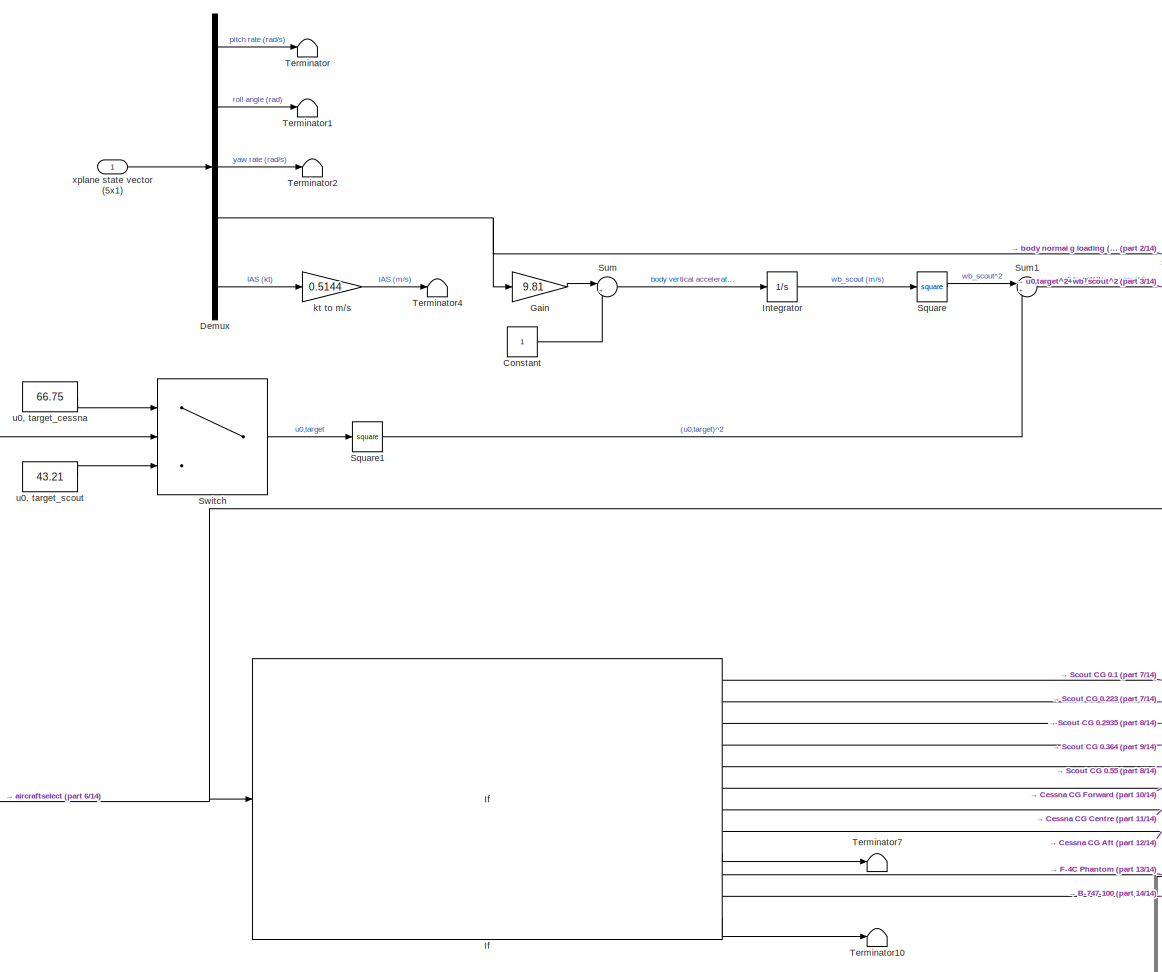
[diagram: Variable Stability Control (VSC) model/VSC active/target aircraft state space selection - part 1/14, top left region]
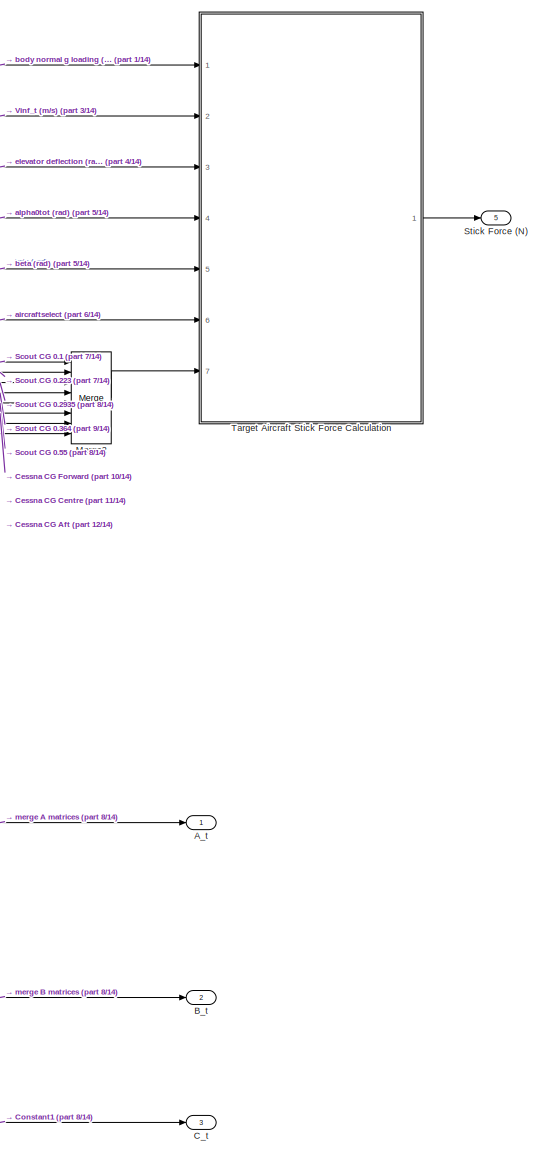
[diagram: Variable Stability Control (VSC) model/VSC active/target aircraft state space selection - part 2/14, top right region]
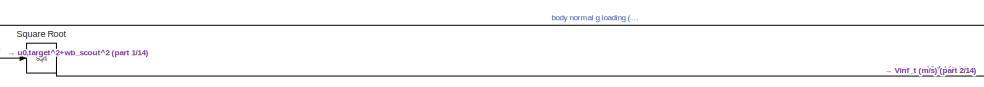
[diagram: Variable Stability Control (VSC) model/VSC active/target aircraft state space selection - part 3/14, top center region]
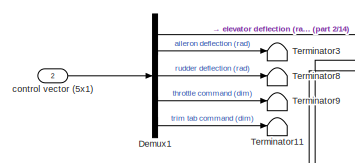
[diagram: Variable Stability Control (VSC) model/VSC active/target aircraft state space selection - part 4/14, top center region]
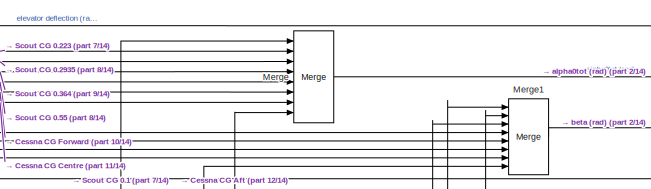
[diagram: Variable Stability Control (VSC) model/VSC active/target aircraft state space selection - part 5/14, top right region]
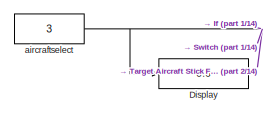
[diagram: Variable Stability Control (VSC) model/VSC active/target aircraft state space selection - part 6/14, middle left region]
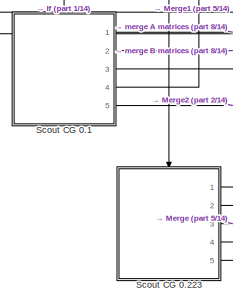
[diagram: Variable Stability Control (VSC) model/VSC active/target aircraft state space selection - part 7/14, central region]
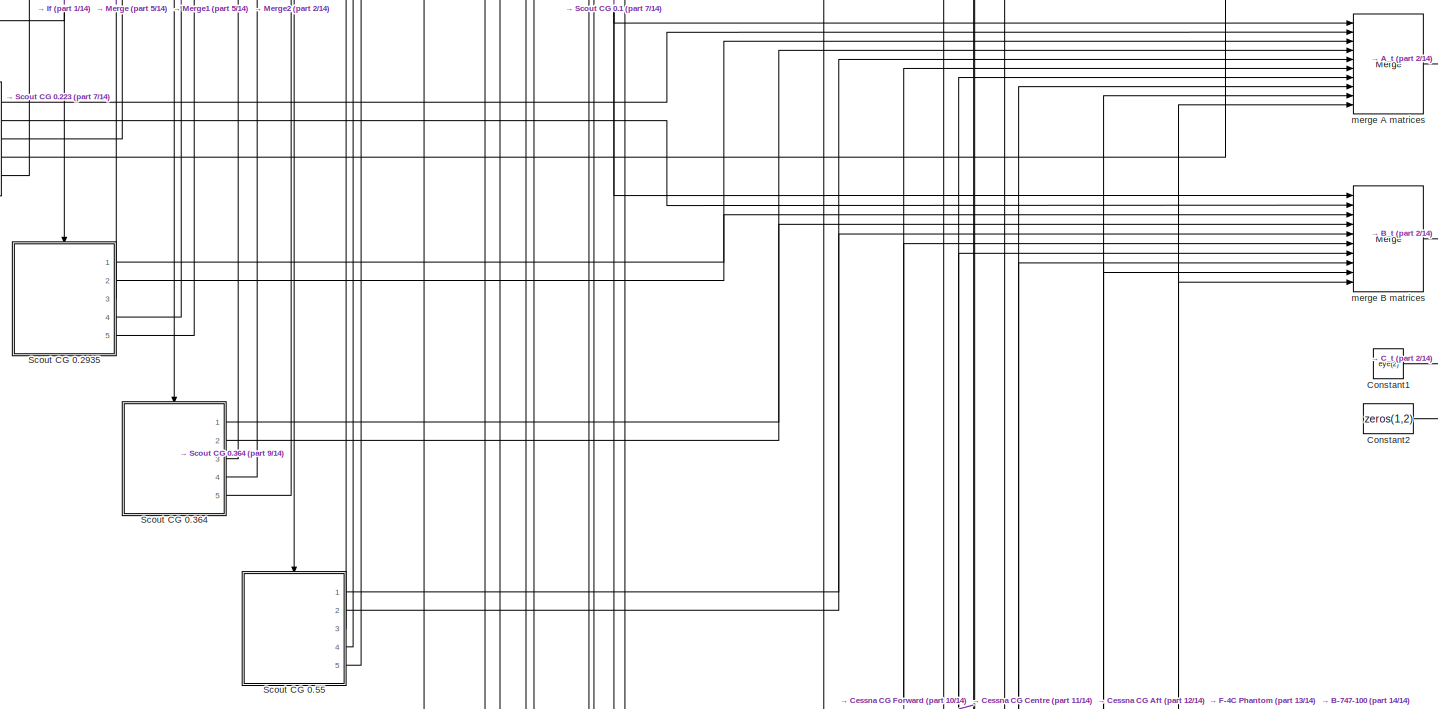
[diagram: Variable Stability Control (VSC) model/VSC active/target aircraft state space selection - part 8/14, middle right region]
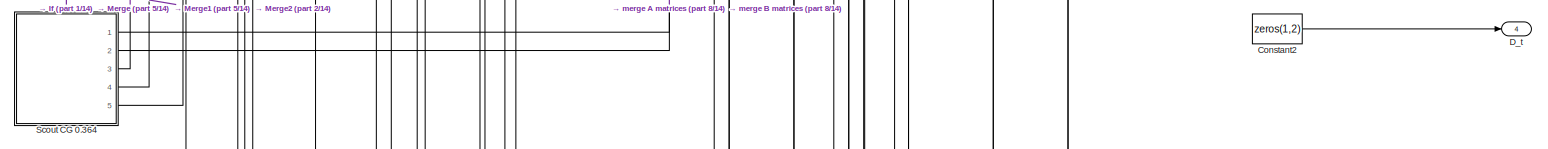
[diagram: Variable Stability Control (VSC) model/VSC active/target aircraft state space selection - part 9/14, middle right region]
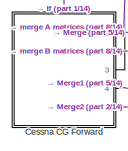
[diagram: Variable Stability Control (VSC) model/VSC active/target aircraft state space selection - part 10/14, bottom center region]
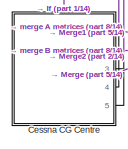
[diagram: Variable Stability Control (VSC) model/VSC active/target aircraft state space selection - part 11/14, bottom center region]
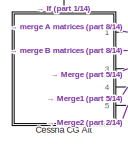
[diagram: Variable Stability Control (VSC) model/VSC active/target aircraft state space selection - part 12/14, bottom center region]
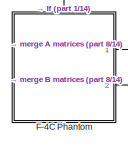
[diagram: Variable Stability Control (VSC) model/VSC active/target aircraft state space selection - part 13/14, bottom right region]
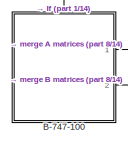
[diagram: Variable Stability Control (VSC) model/VSC active/target aircraft state space selection - part 14/14, bottom right region]
BLOCK [SubSystem] Variable Stability Control (VSC) model/VSC active/target aircraft state space selection
  Ports = [2, 5]
  RequestExecContextInheritance = off
BLOCK [Outport] Variable Stability Control (VSC) model/VSC active/target aircraft state space selection/A_t
BLOCK [SubSystem] Variable Stability Control (VSC) model/VSC active/target aircraft state space selection/B-747-100
  Ports = [0, 2, 0, 0, 0, 0, 0, 1]
  RequestExecContextInheritance = off
  TreatAsAtomicUnit = on
BLOCK [Outport] Variable Stability Control (VSC) model/VSC active/target aircraft state space selection/B-747-100/A_B-747-100
BLOCK [ActionPort] Variable Stability Control (VSC) model/VSC active/target aircraft state space selection/B-747-100/Action Port
  ActionPortLabel = elseif( u1 == 11)
BLOCK [Outport] Variable Stability Control (VSC) model/VSC active/target aircraft state space selection/B-747-100/B_B-747-100
  Port = 2
BLOCK [Constant] Variable Stability Control (VSC) model/VSC active/target aircraft state space selection/B-747-100/Constant
  Value = [-0.508647705600000	65.0870077697200\n-0.00557351174471139	-0.415074491893133]
BLOCK [Constant] Variable Stability Control (VSC) model/VSC active/target aircraft state space selection/B-747-100/Constant1
  Value = [-1.97021509716000\n-0.377425932894150]
BLOCK [Outport] Variable Stability Control (VSC) model/VSC active/target aircraft state space selection/B_t
  Port = 2
BLOCK [Outport] Variable Stability Control (VSC) model/VSC active/target aircraft state space selection/C_t
  Port = 3
BLOCK [SubSystem] Variable Stability Control (VSC) model/VSC active/target aircraft state space selection/Cessna CG Aft
  Ports = [0, 5, 0, 0, 0, 0, 0, 1]
  RequestExecContextInheritance = off
  TreatAsAtomicUnit = on
BLOCK [Outport] Variable Stability Control (VSC) model/VSC active/target aircraft state space selection/Cessna CG Aft/A_ce_CG(0.338)
BLOCK [ActionPort] Variable Stability Control (VSC) model/VSC active/target aircraft state space selection/Cessna CG Aft/Action Port
  ActionPortLabel = elseif( u1 == 8)
BLOCK [Outport] Variable Stability Control (VSC) model/VSC active/target aircraft state space selection/Cessna CG Aft/B_ce_CG(0.338)
  Port = 2
BLOCK [Constant] Variable Stability Control (VSC) model/VSC active/target aircraft state space selection/Cessna CG Aft/Constant
  Value = A_ce_CG_34
BLOCK [Constant] Variable Stability Control (VSC) model/VSC active/target aircraft state space selection/Cessna CG Aft/Constant1
  Value = B_ce_CG_34
BLOCK [Constant] Variable Stability Control (VSC) model/VSC active/target aircraft state space selection/Cessna CG Aft/Constant2
  Value = alpha0tot_ce_CG_34
BLOCK [Constant] Variable Stability Control (VSC) model/VSC active/target aircraft state space selection/Cessna CG Aft/Constant3
  Value = beta_ce_CG_34
BLOCK [Constant] Variable Stability Control (VSC) model/VSC active/target aircraft state space selection/Cessna CG Aft/Constant4
  Value = eta_ce_CG_34
BLOCK [Outport] Variable Stability Control (VSC) model/VSC active/target aircraft state space selection/Cessna CG Aft/alpha0tot_ce_CG_34 (rad)
  Port = 3
BLOCK [Outport] Variable Stability Control (VSC) model/VSC active/target aircraft state space selection/Cessna CG Aft/beta_ce_CG_34 (rad)
  Port = 4
BLOCK [Outport] Variable Stability Control (VSC) model/VSC active/target aircraft state space selection/Cessna CG Aft/eta_ce_CG_34(rad)
  Port = 5
BLOCK [SubSystem] Variable Stability Control (VSC) model/VSC active/target aircraft state space selection/Cessna CG Centre
  Ports = [0, 5, 0, 0, 0, 0, 0, 1]
  RequestExecContextInheritance = off
  TreatAsAtomicUnit = on
BLOCK [Outport] Variable Stability Control (VSC) model/VSC active/target aircraft state space selection/Cessna CG Centre/A_ce_CG(0.2405)
BLOCK [ActionPort] Variable Stability Control (VSC) model/VSC active/target aircraft state space selection/Cessna CG Centre/Action Port
  ActionPortLabel = elseif( u1 == 7)
BLOCK [Outport] Variable Stability Control (VSC) model/VSC active/target aircraft state space selection/Cessna CG Centre/B_ce_CG(0.2405)
  Port = 2
BLOCK [Constant] Variable Stability Control (VSC) model/VSC active/target aircraft state space selection/Cessna CG Centre/Constant
  Value = A_ce_CG_24
BLOCK [Constant] Variable Stability Control (VSC) model/VSC active/target aircraft state space selection/Cessna CG Centre/Constant1
  Value = B_ce_CG_24
BLOCK [Constant] Variable Stability Control (VSC) model/VSC active/target aircraft state space selection/Cessna CG Centre/Constant2
  Value = alpha0tot_ce_CG_24
BLOCK [Constant] Variable Stability Control (VSC) model/VSC active/target aircraft state space selection/Cessna CG Centre/Constant3
  Value = beta_ce_CG_24
BLOCK [Constant] Variable Stability Control (VSC) model/VSC active/target aircraft state space selection/Cessna CG Centre/Constant4
  Value = eta_ce_CG_24
BLOCK [Outport] Variable Stability Control (VSC) model/VSC active/target aircraft state space selection/Cessna CG Centre/alpha0tot_ce_CG_24 (rad)
  Port = 3
BLOCK [Outport] Variable Stability Control (VSC) model/VSC active/target aircraft state space selection/Cessna CG Centre/beta_ce_CG_24 (rad)
  Port = 4
BLOCK [Outport] Variable Stability Control (VSC) model/VSC active/target aircraft state space selection/Cessna CG Centre/eta_ce_CG_24(rad)
  Port = 5
BLOCK [SubSystem] Variable Stability Control (VSC) model/VSC active/target aircraft state space selection/Cessna CG Forward
  Ports = [0, 5, 0, 0, 0, 0, 0, 1]
  RequestExecContextInheritance = off
  TreatAsAtomicUnit = on
BLOCK [Outport] Variable Stability Control (VSC) model/VSC active/target aircraft state space selection/Cessna CG Forward/A_ce_CG(0.143)
BLOCK [ActionPort] Variable Stability Control (VSC) model/VSC active/target aircraft state space selection/Cessna CG Forward/Action Port
  ActionPortLabel = elseif( u1 == 6)
BLOCK [Outport] Variable Stability Control (VSC) model/VSC active/target aircraft state space selection/Cessna CG Forward/B_ce_CG(0.143)
  Port = 2
BLOCK [Constant] Variable Stability Control (VSC) model/VSC active/target aircraft state space selection/Cessna CG Forward/Constant
  Value = A_ce_CG_14
BLOCK [Constant] Variable Stability Control (VSC) model/VSC active/target aircraft state space selection/Cessna CG Forward/Constant1
  Value = B_ce_CG_14
BLOCK [Constant] Variable Stability Control (VSC) model/VSC active/target aircraft state space selection/Cessna CG Forward/Constant2
  Value = alpha0tot_ce_CG_14
BLOCK [Constant] Variable Stability Control (VSC) model/VSC active/target aircraft state space selection/Cessna CG Forward/Constant3
  Value = beta_ce_CG_14
BLOCK [Constant] Variable Stability Control (VSC) model/VSC active/target aircraft state space selection/Cessna CG Forward/Constant4
  Value = eta_ce_CG_14
BLOCK [Outport] Variable Stability Control (VSC) model/VSC active/target aircraft state space selection/Cessna CG Forward/alpha0tot_ce_CG_14 (rad)
  Port = 3
BLOCK [Outport] Variable Stability Control (VSC) model/VSC active/target aircraft state space selection/Cessna CG Forward/beta_ce_CG_14 (rad)
  Port = 4
BLOCK [Outport] Variable Stability Control (VSC) model/VSC active/target aircraft state space selection/Cessna CG Forward/eta_ce_CG_14(rad)
  Port = 5
BLOCK [Constant] Variable Stability Control (VSC) model/VSC active/target aircraft state space selection/Constant
BLOCK [Constant] Variable Stability Control (VSC) model/VSC active/target aircraft state space selection/Constant1
  Value = eye(2)
BLOCK [Constant] Variable Stability Control (VSC) model/VSC active/target aircraft state space selection/Constant2
  Value = zeros(1,2)
BLOCK [Outport] Variable Stability Control (VSC) model/VSC active/target aircraft state space selection/D_t
  Port = 4
BLOCK [Demux] Variable Stability Control (VSC) model/VSC active/target aircraft state space selection/Demux
  Outputs = 5
  Ports = [1, 5]
BLOCK [Demux] Variable Stability Control (VSC) model/VSC active/target aircraft state space selection/Demux1
  Outputs = 5
  Ports = [1, 5]
BLOCK [Display] Variable Stability Control (VSC) model/VSC active/target aircraft state space selection/Display
  Decimation = 1
  Ports = [1]
BLOCK [SubSystem] Variable Stability Control (VSC) model/VSC active/target aircraft state space selection/F-4C Phantom
  Ports = [0, 2, 0, 0, 0, 0, 0, 1]
  RequestExecContextInheritance = off
  TreatAsAtomicUnit = on
BLOCK [Outport] Variable Stability Control (VSC) model/VSC active/target aircraft state space selection/F-4C Phantom/A_F-4C
BLOCK [ActionPort] Variable Stability Control (VSC) model/VSC active/target aircraft state space selection/F-4C Phantom/Action Port
  ActionPortLabel = elseif( u1 == 10)
BLOCK [Outport] Variable Stability Control (VSC) model/VSC active/target aircraft state space selection/F-4C Phantom/B_F-4C
  Port = 2
BLOCK [Constant] Variable Stability Control (VSC) model/VSC active/target aircraft state space selection/F-4C Phantom/Constant
  Value = [-0.295319442940517	177.255749314106\n-0.0104482212700093	-0.448358567032906]
BLOCK [Constant] Variable Stability Control (VSC) model/VSC active/target aircraft state space selection/F-4C Phantom/Constant1
  Value = [-6.29389106785740\n-4.88848338612147]
BLOCK [Gain] Variable Stability Control (VSC) model/VSC active/target aircraft state space selection/Gain
  Gain = 9.81
BLOCK [If] Variable Stability Control (VSC) model/VSC active/target aircraft state space selection/If
  ElseIfExpressions = u1 == 2, u1 == 3, u1 == 4, u1 == 5, u1 == 6, u1 == 7, u1 == 8, u1 == 9, u1 == 10, u1 == 11
  IfExpression = u1 == 1
  Ports = [1, 12]
BLOCK [Integrator] Variable Stability Control (VSC) model/VSC active/target aircraft state space selection/Integrator
  Ports = [1, 1]
BLOCK [Merge] Variable Stability Control (VSC) model/VSC active/target aircraft state space selection/Merge
  Inputs = 8
  Ports = [8, 1]
BLOCK [Merge] Variable Stability Control (VSC) model/VSC active/target aircraft state space selection/Merge1
  Inputs = 8
  Ports = [8, 1]
BLOCK [Merge] Variable Stability Control (VSC) model/VSC active/target aircraft state space selection/Merge2
  Inputs = 8
  Ports = [8, 1]
BLOCK [SubSystem] Variable Stability Control (VSC) model/VSC active/target aircraft state space selection/Scout CG 0.1
  Ports = [0, 5, 0, 0, 0, 0, 0, 1]
  RequestExecContextInheritance = off
  TreatAsAtomicUnit = on
BLOCK [Outport] Variable Stability Control (VSC) model/VSC active/target aircraft state space selection/Scout CG 0.1/A_sc_CG(0.1)
BLOCK [ActionPort] Variable Stability Control (VSC) model/VSC active/target aircraft state space selection/Scout CG 0.1/Action Port
  ActionPortLabel = if(u1 == 1)
BLOCK [Outport] Variable Stability Control (VSC) model/VSC active/target aircraft state space selection/Scout CG 0.1/B_sc_CG(0.1)
  Port = 2
BLOCK [Constant] Variable Stability Control (VSC) model/VSC active/target aircraft state space selection/Scout CG 0.1/Constant
  Value = A_sc_CG_10
BLOCK [Constant] Variable Stability Control (VSC) model/VSC active/target aircraft state space selection/Scout CG 0.1/Constant1
  Value = B_sc_CG_10
BLOCK [Constant] Variable Stability Control (VSC) model/VSC active/target aircraft state space selection/Scout CG 0.1/Constant2
  Value = alpha0tot_sc_CG_10
BLOCK [Constant] Variable Stability Control (VSC) model/VSC active/target aircraft state space selection/Scout CG 0.1/Constant3
  Value = beta_sc_CG_10
BLOCK [Constant] Variable Stability Control (VSC) model/VSC active/target aircraft state space selection/Scout CG 0.1/Constant4
  Value = eta_sc_CG_10
BLOCK [Outport] Variable Stability Control (VSC) model/VSC active/target aircraft state space selection/Scout CG 0.1/alpha0tot_sc_CG_10 (rad)
  Port = 3
BLOCK [Outport] Variable Stability Control (VSC) model/VSC active/target aircraft state space selection/Scout CG 0.1/beta_sc_CG_10 (rad)
  Port = 4
BLOCK [Outport] Variable Stability Control (VSC) model/VSC active/target aircraft state space selection/Scout CG 0.1/eta_sc_CG_10(rad)
  Port = 5
BLOCK [SubSystem] Variable Stability Control (VSC) model/VSC active/target aircraft state space selection/Scout CG 0.223
  Ports = [0, 5, 0, 0, 0, 0, 0, 1]
  RequestExecContextInheritance = off
  TreatAsAtomicUnit = on
BLOCK [Outport] Variable Stability Control (VSC) model/VSC active/target aircraft state space selection/Scout CG 0.223/A_sc_CG(0.223)
BLOCK [ActionPort] Variable Stability Control (VSC) model/VSC active/target aircraft state space selection/Scout CG 0.223/Action Port
  ActionPortLabel = elseif(u1 == 2)
BLOCK [Outport] Variable Stability Control (VSC) model/VSC active/target aircraft state space selection/Scout CG 0.223/B_sc_CG(0.223)
  Port = 2
BLOCK [Constant] Variable Stability Control (VSC) model/VSC active/target aircraft state space selection/Scout CG 0.223/Constant
  Value = A_sc_CG_22
BLOCK [Constant] Variable Stability Control (VSC) model/VSC active/target aircraft state space selection/Scout CG 0.223/Constant1
  Value = B_sc_CG_22
BLOCK [Constant] Variable Stability Control (VSC) model/VSC active/target aircraft state space selection/Scout CG 0.223/Constant2
  Value = alpha0tot_sc_CG_22
BLOCK [Constant] Variable Stability Control (VSC) model/VSC active/target aircraft state space selection/Scout CG 0.223/Constant3
  Value = beta_sc_CG_22
BLOCK [Constant] Variable Stability Control (VSC) model/VSC active/target aircraft state space selection/Scout CG 0.223/Constant4
  Value = eta_sc_CG_22
BLOCK [Outport] Variable Stability Control (VSC) model/VSC active/target aircraft state space selection/Scout CG 0.223/alpha0tot_sc_CG_22 (rad)
  Port = 3
BLOCK [Outport] Variable Stability Control (VSC) model/VSC active/target aircraft state space selection/Scout CG 0.223/beta_sc_CG_22 (rad)
  Port = 4
BLOCK [Outport] Variable Stability Control (VSC) model/VSC active/target aircraft state space selection/Scout CG 0.223/eta_sc_CG_22(rad)
  Port = 5
BLOCK [SubSystem] Variable Stability Control (VSC) model/VSC active/target aircraft state space selection/Scout CG 0.2935
  Ports = [0, 5, 0, 0, 0, 0, 0, 1]
  RequestExecContextInheritance = off
  TreatAsAtomicUnit = on
BLOCK [Outport] Variable Stability Control (VSC) model/VSC active/target aircraft state space selection/Scout CG 0.2935/A_sc_CG(0.2935)
BLOCK [ActionPort] Variable Stability Control (VSC) model/VSC active/target aircraft state space selection/Scout CG 0.2935/Action Port
  ActionPortLabel = elseif( u1 == 3)
BLOCK [Outport] Variable Stability Control (VSC) model/VSC active/target aircraft state space selection/Scout CG 0.2935/B_sc_CG(0.2935)
  Port = 2
BLOCK [Constant] Variable Stability Control (VSC) model/VSC active/target aircraft state space selection/Scout CG 0.2935/Constant
  Value = A_sc_CG_29
BLOCK [Constant] Variable Stability Control (VSC) model/VSC active/target aircraft state space selection/Scout CG 0.2935/Constant1
  Value = B_sc_CG_29
BLOCK [Constant] Variable Stability Control (VSC) model/VSC active/target aircraft state space selection/Scout CG 0.2935/Constant2
  Value = alpha0tot_sc_CG_29
BLOCK [Constant] Variable Stability Control (VSC) model/VSC active/target aircraft state space selection/Scout CG 0.2935/Constant3
  Value = beta_sc_CG_29
BLOCK [Constant] Variable Stability Control (VSC) model/VSC active/target aircraft state space selection/Scout CG 0.2935/Constant4
  Value = eta_sc_CG_29
BLOCK [Outport] Variable Stability Control (VSC) model/VSC active/target aircraft state space selection/Scout CG 0.2935/alpha0tot_sc_CG_29 (rad)
  Port = 3
BLOCK [Outport] Variable Stability Control (VSC) model/VSC active/target aircraft state space selection/Scout CG 0.2935/beta_sc_CG_29 (rad)
  Port = 4
BLOCK [Outport] Variable Stability Control (VSC) model/VSC active/target aircraft state space selection/Scout CG 0.2935/eta_sc_CG_29(rad)
  Port = 5
BLOCK [SubSystem] Variable Stability Control (VSC) model/VSC active/target aircraft state space selection/Scout CG 0.364
  Ports = [0, 5, 0, 0, 0, 0, 0, 1]
  RequestExecContextInheritance = off
  TreatAsAtomicUnit = on
BLOCK [Outport] Variable Stability Control (VSC) model/VSC active/target aircraft state space selection/Scout CG 0.364/A_sc_CG(0.364)
BLOCK [ActionPort] Variable Stability Control (VSC) model/VSC active/target aircraft state space selection/Scout CG 0.364/Action Port
  ActionPortLabel = elseif( u1 == 4)
BLOCK [Outport] Variable Stability Control (VSC) model/VSC active/target aircraft state space selection/Scout CG 0.364/B_sc_CG(0.364)
  Port = 2
BLOCK [Constant] Variable Stability Control (VSC) model/VSC active/target aircraft state space selection/Scout CG 0.364/Constant
  Value = A_sc_CG_36
BLOCK [Constant] Variable Stability Control (VSC) model/VSC active/target aircraft state space selection/Scout CG 0.364/Constant1
  Value = B_sc_CG_36
BLOCK [Constant] Variable Stability Control (VSC) model/VSC active/target aircraft state space selection/Scout CG 0.364/Constant2
  Value = alpha0tot_sc_CG_36
BLOCK [Constant] Variable Stability Control (VSC) model/VSC active/target aircraft state space selection/Scout CG 0.364/Constant3
  Value = beta_sc_CG_36
BLOCK [Constant] Variable Stability Control (VSC) model/VSC active/target aircraft state space selection/Scout CG 0.364/Constant4
  Value = eta_sc_CG_36
BLOCK [Outport] Variable Stability Control (VSC) model/VSC active/target aircraft state space selection/Scout CG 0.364/alpha0tot_sc_CG_36 (rad)
  Port = 3
BLOCK [Outport] Variable Stability Control (VSC) model/VSC active/target aircraft state space selection/Scout CG 0.364/beta_sc_CG_36 (rad)
  Port = 4
BLOCK [Outport] Variable Stability Control (VSC) model/VSC active/target aircraft state space selection/Scout CG 0.364/eta_sc_CG_36(rad)
  Port = 5
BLOCK [SubSystem] Variable Stability Control (VSC) model/VSC active/target aircraft state space selection/Scout CG 0.55
  Ports = [0, 5, 0, 0, 0, 0, 0, 1]
  RequestExecContextInheritance = off
  TreatAsAtomicUnit = on
BLOCK [Outport] Variable Stability Control (VSC) model/VSC active/target aircraft state space selection/Scout CG 0.55/A_sc_CG(0.55)
BLOCK [ActionPort] Variable Stability Control (VSC) model/VSC active/target aircraft state space selection/Scout CG 0.55/Action Port
  ActionPortLabel = elseif( u1 == 5)
BLOCK [Outport] Variable Stability Control (VSC) model/VSC active/target aircraft state space selection/Scout CG 0.55/B_sc_CG(0.55)
  Port = 2
BLOCK [Constant] Variable Stability Control (VSC) model/VSC active/target aircraft state space selection/Scout CG 0.55/Constant
  Value = A_sc_CG_55
BLOCK [Constant] Variable Stability Control (VSC) model/VSC active/target aircraft state space selection/Scout CG 0.55/Constant1
  Value = B_sc_CG_55
BLOCK [Constant] Variable Stability Control (VSC) model/VSC active/target aircraft state space selection/Scout CG 0.55/Constant2
  Value = alpha0tot_sc_CG_55
BLOCK [Constant] Variable Stability Control (VSC) model/VSC active/target aircraft state space selection/Scout CG 0.55/Constant3
  Value = beta_sc_CG_55
BLOCK [Constant] Variable Stability Control (VSC) model/VSC active/target aircraft state space selection/Scout CG 0.55/Constant4
  Value = eta_sc_CG_55
BLOCK [Outport] Variable Stability Control (VSC) model/VSC active/target aircraft state space selection/Scout CG 0.55/alpha0tot_sc_CG_55 (rad)
  Port = 3
BLOCK [Outport] Variable Stability Control (VSC) model/VSC active/target aircraft state space selection/Scout CG 0.55/beta_sc_CG_55 (rad)
  Port = 4
BLOCK [Outport] Variable Stability Control (VSC) model/VSC active/target aircraft state space selection/Scout CG 0.55/eta_sc_CG_55(rad)
  Port = 5
BLOCK [Math] Variable Stability Control (VSC) model/VSC active/target aircraft state space selection/Square
  Operator = square
  Ports = [1, 1]
BLOCK [Sqrt] Variable Stability Control (VSC) model/VSC active/target aircraft state space selection/Square Root
BLOCK [Math] Variable Stability Control (VSC) model/VSC active/target aircraft state space selection/Square1
  Operator = square
  Ports = [1, 1]
BLOCK [Outport] Variable Stability Control (VSC) model/VSC active/target aircraft state space selection/Stick Force (N)
  Port = 5
BLOCK [Sum] Variable Stability Control (VSC) model/VSC active/target aircraft state space selection/Sum
  Inputs = |+-
  Ports = [2, 1]
BLOCK [Sum] Variable Stability Control (VSC) model/VSC active/target aircraft state space selection/Sum1
  Inputs = |++
  Ports = [2, 1]
BLOCK [Switch] Variable Stability Control (VSC) model/VSC active/target aircraft state space selection/Switch
  Criteria = u2 > Threshold
  InputSameDT = off
  SaturateOnIntegerOverflow = off
  Threshold = 5
BLOCK [SubSystem] Variable Stability Control (VSC) model/VSC active/target aircraft state space selection/Target Aircraft Stick Force Calculation
  Ports = [7, 1]
  RequestExecContextInheritance = off
BLOCK [Constant] Variable Stability Control (VSC) model/VSC active/target aircraft state space selection/Target Aircraft Stick Force Calculation/Constant
BLOCK [Display] Variable Stability Control (VSC) model/VSC active/target aircraft state space selection/Target Aircraft Stick Force Calculation/Display
  Decimation = 1
  Ports = [1]
BLOCK [Gain] Variable Stability Control (VSC) model/VSC active/target aircraft state space selection/Target Aircraft Stick Force Calculation/Gain
  Gain = 9.81
BLOCK [If] Variable Stability Control (VSC) model/VSC active/target aircraft state space selection/Target Aircraft Stick Force Calculation/If
  ElseIfExpressions = u1==6 | u1==7 | u1==8,u1 == 10, u1 == 11
  IfExpression = u1 == 1 | u1 ==2 | u1 == 3 | u1 ==4 | u1 ==5
  Ports = [1, 5]
BLOCK [Inport] Variable Stability Control (VSC) model/VSC active/target aircraft state space selection/Target Aircraft Stick Force Calculation/Load Factor (dim)
BLOCK [Merge] Variable Stability Control (VSC) model/VSC active/target aircraft state space selection/Target Aircraft Stick Force Calculation/Merge
  Inputs = 4
  Ports = [4, 1]
BLOCK [Outport] Variable Stability Control (VSC) model/VSC active/target aircraft state space selection/Target Aircraft Stick Force Calculation/Stick Force (N)
BLOCK [Sum] Variable Stability Control (VSC) model/VSC active/target aircraft state space selection/Target Aircraft Stick Force Calculation/Sum
  Inputs = |+-
  Ports = [2, 1]
BLOCK [Inport] Variable Stability Control (VSC) model/VSC active/target aircraft state space selection/Target Aircraft Stick Force Calculation/Target Aircraft Flightspeed (m//s)
  Port = 2
BLOCK [Terminator] Variable Stability Control (VSC) model/VSC active/target aircraft state space selection/Target Aircraft Stick Force Calculation/Terminator
BLOCK [Inport] Variable Stability Control (VSC) model/VSC active/target aircraft state space selection/Target Aircraft Stick Force Calculation/aircraftselect
  Port = 6
BLOCK [Inport] Variable Stability Control (VSC) model/VSC active/target aircraft state space selection/Target Aircraft Stick Force Calculation/alpha0tot (rad)
  Port = 4
BLOCK [SubSystem] Variable Stability Control (VSC) model/VSC active/target aircraft state space selection/Target Aircraft Stick Force Calculation/b-747-100 stick force model
  Ports = [1, 1, 0, 0, 0, 0, 0, 1]
  RequestExecContextInheritance = off
  TreatAsAtomicUnit = on
BLOCK [ActionPort] Variable Stability Control (VSC) model/VSC active/target aircraft state space selection/Target Aircraft Stick Force Calculation/b-747-100 stick force model/Action Port
  ActionPortLabel = elseif( u1 == 11)
BLOCK [Outport] Variable Stability Control (VSC) model/VSC active/target aircraft state space selection/Target Aircraft Stick Force Calculation/b-747-100 stick force model/B-747-100 stick force (N)
BLOCK [SubSystem] Variable Stability Control (VSC) model/VSC active/target aircraft state space selection/Target Aircraft Stick Force Calculation/b-747-100 stick force model/Subsystem1
  Ports = [1, 1]
  RequestExecContextInheritance = off
BLOCK [Outport] Variable Stability Control (VSC) model/VSC active/target aircraft state space selection/Target Aircraft Stick Force Calculation/b-747-100 stick force model/Subsystem1/B-747-100 stick force (N)
BLOCK [Gain] Variable Stability Control (VSC) model/VSC active/target aircraft state space selection/Target Aircraft Stick Force Calculation/b-747-100 stick force model/Subsystem1/Gain
  Gain = 1/12
BLOCK [Gain] Variable Stability Control (VSC) model/VSC active/target aircraft state space selection/Target Aircraft Stick Force Calculation/b-747-100 stick force model/Subsystem1/Gain1
  Gain = 9.81
BLOCK [Gain] Variable Stability Control (VSC) model/VSC active/target aircraft state space selection/Target Aircraft Stick Force Calculation/b-747-100 stick force model/Subsystem1/Gain2
  Gain = 1/elev_sat
BLOCK [If] Variable Stability Control (VSC) model/VSC active/target aircraft state space selection/Target Aircraft Stick Force Calculation/b-747-100 stick force model/Subsystem1/If
  ElseIfExpressions = u1 < -2.5
  IfExpression = u1 > 2.5
  Ports = [1, 3]
BLOCK [SubSystem] Variable Stability Control (VSC) model/VSC active/target aircraft state space selection/Target Aircraft Stick Force Calculation/b-747-100 stick force model/Subsystem1/If Action Subsystem
  Ports = [1, 1, 0, 0, 0, 0, 0, 1]
  RequestExecContextInheritance = off
  TreatAsAtomicUnit = on
BLOCK [ActionPort] Variable Stability Control (VSC) model/VSC active/target aircraft state space selection/Target Aircraft Stick Force Calculation/b-747-100 stick force model/Subsystem1/If Action Subsystem/Action Port
  ActionPortLabel = else
BLOCK [Gain] Variable Stability Control (VSC) model/VSC active/target aircraft state space selection/Target Aircraft Stick Force Calculation/b-747-100 stick force model/Subsystem1/If Action Subsystem/Feel System Gain for -5<=u1<=5
  Gain = 43.9267
BLOCK [Inport] Variable Stability Control (VSC) model/VSC active/target aircraft state space selection/Target Aircraft Stick Force Calculation/b-747-100 stick force model/Subsystem1/If Action Subsystem/In1
BLOCK [Outport] Variable Stability Control (VSC) model/VSC active/target aircraft state space selection/Target Aircraft Stick Force Calculation/b-747-100 stick force model/Subsystem1/If Action Subsystem/Out1
BLOCK [SubSystem] Variable Stability Control (VSC) model/VSC active/target aircraft state space selection/Target Aircraft Stick Force Calculation/b-747-100 stick force model/Subsystem1/If Action Subsystem1
  Ports = [1, 1, 0, 0, 0, 0, 0, 1]
  RequestExecContextInheritance = off
  TreatAsAtomicUnit = on
BLOCK [ActionPort] Variable Stability Control (VSC) model/VSC active/target aircraft state space selection/Target Aircraft Stick Force Calculation/b-747-100 stick force model/Subsystem1/If Action Subsystem1/Action Port
  ActionPortLabel = if(u1 > 2.5)
BLOCK [Constant] Variable Stability Control (VSC) model/VSC active/target aircraft state space selection/Target Aircraft Stick Force Calculation/b-747-100 stick force model/Subsystem1/If Action Subsystem1/Constant
  Value = 86.6986
BLOCK [Gain] Variable Stability Control (VSC) model/VSC active/target aircraft state space selection/Target Aircraft Stick Force Calculation/b-747-100 stick force model/Subsystem1/If Action Subsystem1/Feel System Gain for -5<=u1<=5
  Gain = 9.5527
BLOCK [Inport] Variable Stability Control (VSC) model/VSC active/target aircraft state space selection/Target Aircraft Stick Force Calculation/b-747-100 stick force model/Subsystem1/If Action Subsystem1/In1
BLOCK [Outport] Variable Stability Control (VSC) model/VSC active/target aircraft state space selection/Target Aircraft Stick Force Calculation/b-747-100 stick force model/Subsystem1/If Action Subsystem1/Out1
BLOCK [Sum] Variable Stability Control (VSC) model/VSC active/target aircraft state space selection/Target Aircraft Stick Force Calculation/b-747-100 stick force model/Subsystem1/If Action Subsystem1/Sum
  Inputs = |++
  Ports = [2, 1]
BLOCK [SubSystem] Variable Stability Control (VSC) model/VSC active/target aircraft state space selection/Target Aircraft Stick Force Calculation/b-747-100 stick force model/Subsystem1/If Action Subsystem2
  Ports = [1, 1, 0, 0, 0, 0, 0, 1]
  RequestExecContextInheritance = off
  TreatAsAtomicUnit = on
BLOCK [ActionPort] Variable Stability Control (VSC) model/VSC active/target aircraft state space selection/Target Aircraft Stick Force Calculation/b-747-100 stick force model/Subsystem1/If Action Subsystem2/Action Port
  ActionPortLabel = elseif(u1 < -2.5)
BLOCK [Constant] Variable Stability Control (VSC) model/VSC active/target aircraft state space selection/Target Aircraft Stick Force Calculation/b-747-100 stick force model/Subsystem1/If Action Subsystem2/Constant
  Value = -86.6986
BLOCK [Gain] Variable Stability Control (VSC) model/VSC active/target aircraft state space selection/Target Aircraft Stick Force Calculation/b-747-100 stick force model/Subsystem1/If Action Subsystem2/Feel System Gain for -5<=u1<=5
  Gain = 9.5527
BLOCK [Inport] Variable Stability Control (VSC) model/VSC active/target aircraft state space selection/Target Aircraft Stick Force Calculation/b-747-100 stick force model/Subsystem1/If Action Subsystem2/In1
BLOCK [Outport] Variable Stability Control (VSC) model/VSC active/target aircraft state space selection/Target Aircraft Stick Force Calculation/b-747-100 stick force model/Subsystem1/If Action Subsystem2/Out1
BLOCK [Sum] Variable Stability Control (VSC) model/VSC active/target aircraft state space selection/Target Aircraft Stick Force Calculation/b-747-100 stick force model/Subsystem1/If Action Subsystem2/Sum
  Inputs = |++
  Ports = [2, 1]
BLOCK [Merge] Variable Stability Control (VSC) model/VSC active/target aircraft state space selection/Target Aircraft Stick Force Calculation/b-747-100 stick force model/Subsystem1/Merge
  Inputs = 3
  Ports = [3, 1]
BLOCK [Scope] Variable Stability Control (VSC) model/VSC active/target aircraft state space selection/Target Aircraft Stick Force Calculation/b-747-100 stick force model/Subsystem1/Scope1
  Floating = off
  NumInputPorts = 1
  Ports = [1]
  ScopeSpecificationString = Simulink.scopes.TimeScopeBlockCfg('CurrentConfiguration', extmgr.ConfigurationSet(extmgr.Configuration('Core','General UI',true),extmgr.Configuration('Core','Source UI',true),extmgr.Configuration('Sources','WiredSimulink',true,'DataLoggingVariableName','ScopeData1'),extmgr.Configuration('Visuals','Time Domain',true,'SerializedDisplays',{struct('MinYLimReal','-114.11733','MaxYLimReal','114.08736','...<+1382ch>
BLOCK [ToWorkspace] Variable Stability Control (VSC) model/VSC active/target aircraft state space selection/Target Aircraft Stick Force Calculation/b-747-100 stick force model/Subsystem1/To Workspace
  FixptAsFi = on
  MaxDataPoints = inf
  Ports = [1]
  SampleTime = -1
  SaveFormat = Timeseries
  VariableName = b747_stick_force
BLOCK [ToWorkspace] Variable Stability Control (VSC) model/VSC active/target aircraft state space selection/Target Aircraft Stick Force Calculation/b-747-100 stick force model/Subsystem1/To Workspace1
  FixptAsFi = on
  MaxDataPoints = inf
  Ports = [1]
  SampleTime = -1
  SaveFormat = Timeseries
  VariableName = b747_stick_position
BLOCK [Inport] Variable Stability Control (VSC) model/VSC active/target aircraft state space selection/Target Aircraft Stick Force Calculation/b-747-100 stick force model/Subsystem1/elevator deflection (rad)
BLOCK [Gain] Variable Stability Control (VSC) model/VSC active/target aircraft state space selection/Target Aircraft Stick Force Calculation/b-747-100 stick force model/Subsystem1/lb to kg
  Gain = 1/2.205
BLOCK [Gain] Variable Stability Control (VSC) model/VSC active/target aircraft state space selection/Target Aircraft Stick Force Calculation/b-747-100 stick force model/Subsystem1/max b-747-100 column deflection (deg)
  Gain = 12
BLOCK [Inport] Variable Stability Control (VSC) model/VSC active/target aircraft state space selection/Target Aircraft Stick Force Calculation/b-747-100 stick force model/elevator deflection (rad)
BLOCK [Inport] Variable Stability Control (VSC) model/VSC active/target aircraft state space selection/Target Aircraft Stick Force Calculation/beta (rad)
  Port = 5
BLOCK [SubSystem] Variable Stability Control (VSC) model/VSC active/target aircraft state space selection/Target Aircraft Stick Force Calculation/cessna 172 stick force model
  Ports = [6, 1, 0, 0, 0, 0, 0, 1]
  RequestExecContextInheritance = off
  TreatAsAtomicUnit = on
BLOCK [ActionPort] Variable Stability Control (VSC) model/VSC active/target aircraft state space selection/Target Aircraft Stick Force Calculation/cessna 172 stick force model/Action Port
  ActionPortLabel = elseif(u1==6 | u1==7 | u1==8)
BLOCK [SubSystem] Variable Stability Control (VSC) model/VSC active/target aircraft state space selection/Target Aircraft Stick Force Calculation/cessna 172 stick force model/Subsystem
  Ports = [6, 1]
  RequestExecContextInheritance = off
BLOCK [Gain] Variable Stability Control (VSC) model/VSC active/target aircraft state space selection/Target Aircraft Stick Force Calculation/cessna 172 stick force model/Subsystem/1//stick length (m^-1)
  Gain = 1/0.395
BLOCK [Constant] Variable Stability Control (VSC) model/VSC active/target aircraft state space selection/Target Aircraft Stick Force Calculation/cessna 172 stick force model/Subsystem/Constant2
  Value = alpha0_ce
BLOCK [Product] Variable Stability Control (VSC) model/VSC active/target aircraft state space selection/Target Aircraft Stick Force Calculation/cessna 172 stick force model/Subsystem/Divide
  Inputs = */
  Ports = [2, 1]
BLOCK [Product] Variable Stability Control (VSC) model/VSC active/target aircraft state space selection/Target Aircraft Stick Force Calculation/cessna 172 stick force model/Subsystem/Divide1
  Inputs = */
  Ports = [2, 1]
BLOCK [Product] Variable Stability Control (VSC) model/VSC active/target aircraft state space selection/Target Aircraft Stick Force Calculation/cessna 172 stick force model/Subsystem/Divide2
  Inputs = */
  Ports = [2, 1]
BLOCK [Product] Variable Stability Control (VSC) model/VSC active/target aircraft state space selection/Target Aircraft Stick Force Calculation/cessna 172 stick force model/Subsystem/Divide3
  Inputs = **
  Ports = [2, 1]
BLOCK [Product] Variable Stability Control (VSC) model/VSC active/target aircraft state space selection/Target Aircraft Stick Force Calculation/cessna 172 stick force model/Subsystem/Divide4
  Inputs = */
  Ports = [2, 1]
BLOCK [Gain] Variable Stability Control (VSC) model/VSC active/target aircraft state space selection/Target Aircraft Stick Force Calculation/cessna 172 stick force model/Subsystem/Gain
  Gain = m_ce*g_ce
BLOCK [Gain] Variable Stability Control (VSC) model/VSC active/target aircraft state space selection/Target Aircraft Stick Force Calculation/cessna 172 stick force model/Subsystem/Gain1
  Gain = 0.5*rho_ce*s_w_ce
BLOCK [Gain] Variable Stability Control (VSC) model/VSC active/target aircraft state space selection/Target Aircraft Stick Force Calculation/cessna 172 stick force model/Subsystem/Gain2
  Gain = 1.75
BLOCK [Gain] Variable Stability Control (VSC) model/VSC active/target aircraft state space selection/Target Aircraft Stick Force Calculation/cessna 172 stick force model/Subsystem/Gain3
  Gain = b1_ce
BLOCK [Gain] Variable Stability Control (VSC) model/VSC active/target aircraft state space selection/Target Aircraft Stick Force Calculation/cessna 172 stick force model/Subsystem/Gain4
  Gain = b2_ce
BLOCK [Gain] Variable Stability Control (VSC) model/VSC active/target aircraft state space selection/Target Aircraft Stick Force Calculation/cessna 172 stick force model/Subsystem/Gain5
  Gain = b3_ce
BLOCK [Gain] Variable Stability Control (VSC) model/VSC active/target aircraft state space selection/Target Aircraft Stick Force Calculation/cessna 172 stick force model/Subsystem/Gain6
  Gain = 0.5*rho_ce*s_e_ce*c_e_ce
BLOCK [Gain] Variable Stability Control (VSC) model/VSC active/target aircraft state space selection/Target Aircraft Stick Force Calculation/cessna 172 stick force model/Subsystem/Gearing Factor (dim)
  Gain = G_ce
BLOCK [Inport] Variable Stability Control (VSC) model/VSC active/target aircraft state space selection/Target Aircraft Stick Force Calculation/cessna 172 stick force model/Subsystem/Load Factor (dim)
  Port = 2
BLOCK [Math] Variable Stability Control (VSC) model/VSC active/target aircraft state space selection/Target Aircraft Stick Force Calculation/cessna 172 stick force model/Subsystem/Square
  Operator = square
  Ports = [1, 1]
BLOCK [Sum] Variable Stability Control (VSC) model/VSC active/target aircraft state space selection/Target Aircraft Stick Force Calculation/cessna 172 stick force model/Subsystem/Sum
  Inputs = |++
  Ports = [2, 1]
BLOCK [Sum] Variable Stability Control (VSC) model/VSC active/target aircraft state space selection/Target Aircraft Stick Force Calculation/cessna 172 stick force model/Subsystem/Sum1
  Inputs = |++
  Ports = [2, 1]
BLOCK [Sum] Variable Stability Control (VSC) model/VSC active/target aircraft state space selection/Target Aircraft Stick Force Calculation/cessna 172 stick force model/Subsystem/Sum2
  Inputs = |+-
  Ports = [2, 1]
BLOCK [Sum] Variable Stability Control (VSC) model/VSC active/target aircraft state space selection/Target Aircraft Stick Force Calculation/cessna 172 stick force model/Subsystem/Sum3
  Inputs = |++
  Ports = [2, 1]
BLOCK [Sum] Variable Stability Control (VSC) model/VSC active/target aircraft state space selection/Target Aircraft Stick Force Calculation/cessna 172 stick force model/Subsystem/Sum4
  Inputs = |++
  Ports = [2, 1]
BLOCK [Sum] Variable Stability Control (VSC) model/VSC active/target aircraft state space selection/Target Aircraft Stick Force Calculation/cessna 172 stick force model/Subsystem/Sum5
  Inputs = |++
  Ports = [2, 1]
BLOCK [Sum] Variable Stability Control (VSC) model/VSC active/target aircraft state space selection/Target Aircraft Stick Force Calculation/cessna 172 stick force model/Subsystem/Sum6
  Inputs = |++
  Ports = [2, 1]
BLOCK [Sum] Variable Stability Control (VSC) model/VSC active/target aircraft state space selection/Target Aircraft Stick Force Calculation/cessna 172 stick force model/Subsystem/Sum7
  Inputs = |+-
  Ports = [2, 1]
BLOCK [Inport] Variable Stability Control (VSC) model/VSC active/target aircraft state space selection/Target Aircraft Stick Force Calculation/cessna 172 stick force model/Subsystem/Target Aircraft Flightspeed (m//s)
BLOCK [Inport] Variable Stability Control (VSC) model/VSC active/target aircraft state space selection/Target Aircraft Stick Force Calculation/cessna 172 stick force model/Subsystem/alpha0tot (rad)
  Port = 4
BLOCK [Inport] Variable Stability Control (VSC) model/VSC active/target aircraft state space selection/Target Aircraft Stick Force Calculation/cessna 172 stick force model/Subsystem/beta (rad)
  Port = 5
BLOCK [Outport] Variable Stability Control (VSC) model/VSC active/target aircraft state space selection/Target Aircraft Stick Force Calculation/cessna 172 stick force model/Subsystem/cessna stick force (N)
BLOCK [Constant] Variable Stability Control (VSC) model/VSC active/target aircraft state space selection/Target Aircraft Stick Force Calculation/cessna 172 stick force model/Subsystem/downwash slope
  Value = ((pi*AR_w_ce*(tr_ce*r_ce)^0.25))* (1+modM_ce)
BLOCK [Constant] Variable Stability Control (VSC) model/VSC active/target aircraft state space selection/Target Aircraft Stick Force Calculation/cessna 172 stick force model/Subsystem/elevator horn length (m)
  Value = l_m_ce
BLOCK [Inport] Variable Stability Control (VSC) model/VSC active/target aircraft state space selection/Target Aircraft Stick Force Calculation/cessna 172 stick force model/Subsystem/eta (rad)
  Port = 3
BLOCK [Inport] Variable Stability Control (VSC) model/VSC active/target aircraft state space selection/Target Aircraft Stick Force Calculation/cessna 172 stick force model/Subsystem/eta_target (rad)
  Port = 6
BLOCK [Gain] Variable Stability Control (VSC) model/VSC active/target aircraft state space selection/Target Aircraft Stick Force Calculation/cessna 172 stick force model/Subsystem/stick hinge moment arm length (m)
  Gain = l_m_ce
BLOCK [Constant] Variable Stability Control (VSC) model/VSC active/target aircraft state space selection/Target Aircraft Stick Force Calculation/cessna 172 stick force model/Subsystem/tail setting angle (rad)
  Value = alpha_ts_ce
BLOCK [Constant] Variable Stability Control (VSC) model/VSC active/target aircraft state space selection/Target Aircraft Stick Force Calculation/cessna 172 stick force model/Subsystem/total aircraft lift curve slope (rad^-1)
  Value = dCLtot_dalpha_ce
BLOCK [Gain] Variable Stability Control (VSC) model/VSC active/target aircraft state space selection/Target Aircraft Stick Force Calculation/cessna 172 stick force model/Subsystem/wing lift curve slope (rad^-1)
  Gain = dCL_w_dalpha_ce
BLOCK [Constant] Variable Stability Control (VSC) model/VSC active/target aircraft state space selection/Target Aircraft Stick Force Calculation/cessna 172 stick force model/Subsystem/wing setting angle (rad)
  Value = alpha_ws_ce
BLOCK [Inport] Variable Stability Control (VSC) model/VSC active/target aircraft state space selection/Target Aircraft Stick Force Calculation/cessna 172 stick force model/alpha0tot (rad) 
  Port = 4
BLOCK [Inport] Variable Stability Control (VSC) model/VSC active/target aircraft state space selection/Target Aircraft Stick Force Calculation/cessna 172 stick force model/beta (rad)
  Port = 5
BLOCK [Outport] Variable Stability Control (VSC) model/VSC active/target aircraft state space selection/Target Aircraft Stick Force Calculation/cessna 172 stick force model/cessna stick force (N)
BLOCK [Inport] Variable Stability Control (VSC) model/VSC active/target aircraft state space selection/Target Aircraft Stick Force Calculation/cessna 172 stick force model/eta (rad)
  Port = 3
BLOCK [Inport] Variable Stability Control (VSC) model/VSC active/target aircraft state space selection/Target Aircraft Stick Force Calculation/cessna 172 stick force model/eta_target (rad)
  Port = 6
BLOCK [Inport] Variable Stability Control (VSC) model/VSC active/target aircraft state space selection/Target Aircraft Stick Force Calculation/cessna 172 stick force model/load factor (dim)
  Port = 2
BLOCK [Inport] Variable Stability Control (VSC) model/VSC active/target aircraft state space selection/Target Aircraft Stick Force Calculation/cessna 172 stick force model/target aircraft flightspeed (m//s)
BLOCK [Inport] Variable Stability Control (VSC) model/VSC active/target aircraft state space selection/Target Aircraft Stick Force Calculation/elevator deflection (rad)
  Port = 3
BLOCK [Inport] Variable Stability Control (VSC) model/VSC active/target aircraft state space selection/Target Aircraft Stick Force Calculation/eta_target (rad)
  Port = 7
BLOCK [SubSystem] Variable Stability Control (VSC) model/VSC active/target aircraft state space selection/Target Aircraft Stick Force Calculation/f-4c phantom ii stick force model
  Ports = [2, 1, 0, 0, 0, 0, 0, 1]
  RequestExecContextInheritance = off
  TreatAsAtomicUnit = on
BLOCK [ActionPort] Variable Stability Control (VSC) model/VSC active/target aircraft state space selection/Target Aircraft Stick Force Calculation/f-4c phantom ii stick force model/Action Port
  ActionPortLabel = elseif(u1 == 10)
BLOCK [Outport] Variable Stability Control (VSC) model/VSC active/target aircraft state space selection/Target Aircraft Stick Force Calculation/f-4c phantom ii stick force model/F-4C Stick Force (N)
BLOCK [Gain] Variable Stability Control (VSC) model/VSC active/target aircraft state space selection/Target Aircraft Stick Force Calculation/f-4c phantom ii stick force model/Gain
  Gain = 1/elev_sat
BLOCK [Gain] Variable Stability Control (VSC) model/VSC active/target aircraft state space selection/Target Aircraft Stick Force Calculation/f-4c phantom ii stick force model/Gain1
  Gain = -9.81
BLOCK [Sum] Variable Stability Control (VSC) model/VSC active/target aircraft state space selection/Target Aircraft Stick Force Calculation/f-4c phantom ii stick force model/Sum
  Inputs = |+-
  Ports = [2, 1]
BLOCK [Gain] Variable Stability Control (VSC) model/VSC active/target aircraft state space selection/Target Aircraft Stick Force Calculation/f-4c phantom ii stick force model/bobweight
  Gain = 5.35/32.2
BLOCK [Inport] Variable Stability Control (VSC) model/VSC active/target aircraft state space selection/Target Aircraft Stick Force Calculation/f-4c phantom ii stick force model/body vertical acceleration (m//s^2)
  Port = 2
BLOCK [Inport] Variable Stability Control (VSC) model/VSC active/target aircraft state space selection/Target Aircraft Stick Force Calculation/f-4c phantom ii stick force model/elevator deflection (rad)
BLOCK [Gain] Variable Stability Control (VSC) model/VSC active/target aircraft state space selection/Target Aircraft Stick Force Calculation/f-4c phantom ii stick force model/lb to kg
  Gain = 1/2.205
BLOCK [Gain] Variable Stability Control (VSC) model/VSC active/target aircraft state space selection/Target Aircraft Stick Force Calculation/f-4c phantom ii stick force model/lb//inch
  Gain = 0.7782
BLOCK [Gain] Variable Stability Control (VSC) model/VSC active/target aircraft state space selection/Target Aircraft Stick Force Calculation/f-4c phantom ii stick force model/max travel of f-4c stick (inch)
  Gain = 4
BLOCK [SubSystem] Variable Stability Control (VSC) model/VSC active/target aircraft state space selection/Target Aircraft Stick Force Calculation/sherwood scout stick force model
  Ports = [6, 1, 0, 0, 0, 0, 0, 1]
  RequestExecContextInheritance = off
  TreatAsAtomicUnit = on
BLOCK [ActionPort] Variable Stability Control (VSC) model/VSC active/target aircraft state space selection/Target Aircraft Stick Force Calculation/sherwood scout stick force model/Action Port
  ActionPortLabel = if(u1 == 1 | u1 ==2 | u1 == 3 | u1 ==4 | u1 ==5)
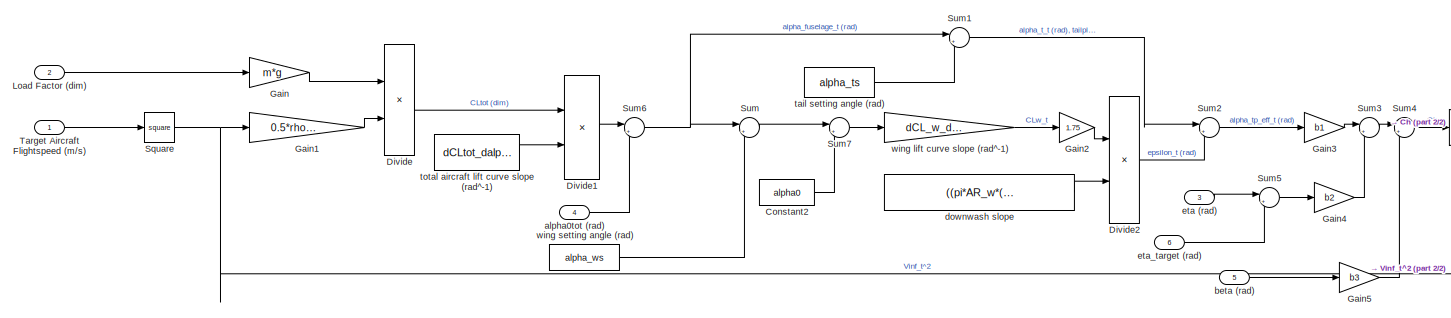
[diagram: Variable Stability Control (VSC) model/VSC active/target aircraft state space selection/Target Aircraft Stick Force Calculation/sherwood scout stick force model/Subsystem - part 1/2, middle left region]
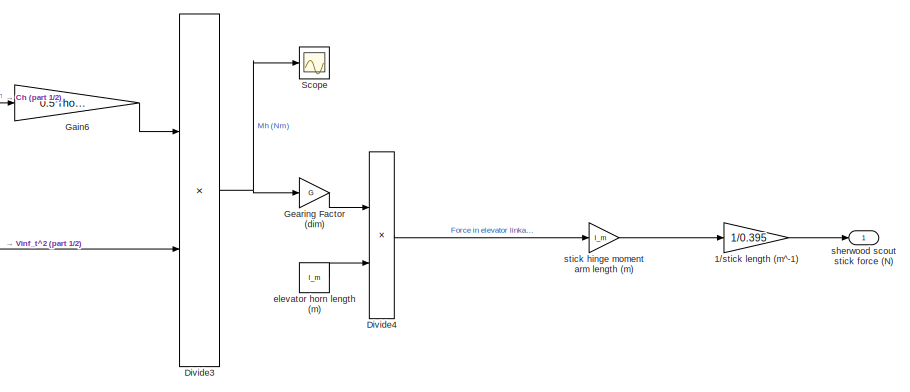
[diagram: Variable Stability Control (VSC) model/VSC active/target aircraft state space selection/Target Aircraft Stick Force Calculation/sherwood scout stick force model/Subsystem - part 2/2, right side, full height]
BLOCK [SubSystem] Variable Stability Control (VSC) model/VSC active/target aircraft state space selection/Target Aircraft Stick Force Calculation/sherwood scout stick force model/Subsystem
  Ports = [6, 1]
  RequestExecContextInheritance = off
BLOCK [Gain] Variable Stability Control (VSC) model/VSC active/target aircraft state space selection/Target Aircraft Stick Force Calculation/sherwood scout stick force model/Subsystem/1//stick length (m^-1)
  Gain = 1/0.395
BLOCK [Constant] Variable Stability Control (VSC) model/VSC active/target aircraft state space selection/Target Aircraft Stick Force Calculation/sherwood scout stick force model/Subsystem/Constant2
  Value = alpha0
BLOCK [Product] Variable Stability Control (VSC) model/VSC active/target aircraft state space selection/Target Aircraft Stick Force Calculation/sherwood scout stick force model/Subsystem/Divide
  Inputs = */
  Ports = [2, 1]
BLOCK [Product] Variable Stability Control (VSC) model/VSC active/target aircraft state space selection/Target Aircraft Stick Force Calculation/sherwood scout stick force model/Subsystem/Divide1
  Inputs = */
  Ports = [2, 1]
BLOCK [Product] Variable Stability Control (VSC) model/VSC active/target aircraft state space selection/Target Aircraft Stick Force Calculation/sherwood scout stick force model/Subsystem/Divide2
  Inputs = */
  Ports = [2, 1]
BLOCK [Product] Variable Stability Control (VSC) model/VSC active/target aircraft state space selection/Target Aircraft Stick Force Calculation/sherwood scout stick force model/Subsystem/Divide3
  Inputs = **
  Ports = [2, 1]
BLOCK [Product] Variable Stability Control (VSC) model/VSC active/target aircraft state space selection/Target Aircraft Stick Force Calculation/sherwood scout stick force model/Subsystem/Divide4
  Inputs = */
  Ports = [2, 1]
BLOCK [Gain] Variable Stability Control (VSC) model/VSC active/target aircraft state space selection/Target Aircraft Stick Force Calculation/sherwood scout stick force model/Subsystem/Gain
  Gain = m*g
BLOCK [Gain] Variable Stability Control (VSC) model/VSC active/target aircraft state space selection/Target Aircraft Stick Force Calculation/sherwood scout stick force model/Subsystem/Gain1
  Gain = 0.5*rho*s_w
BLOCK [Gain] Variable Stability Control (VSC) model/VSC active/target aircraft state space selection/Target Aircraft Stick Force Calculation/sherwood scout stick force model/Subsystem/Gain2
  Gain = 1.75
BLOCK [Gain] Variable Stability Control (VSC) model/VSC active/target aircraft state space selection/Target Aircraft Stick Force Calculation/sherwood scout stick force model/Subsystem/Gain3
  Gain = b1
BLOCK [Gain] Variable Stability Control (VSC) model/VSC active/target aircraft state space selection/Target Aircraft Stick Force Calculation/sherwood scout stick force model/Subsystem/Gain4
  Gain = b2
BLOCK [Gain] Variable Stability Control (VSC) model/VSC active/target aircraft state space selection/Target Aircraft Stick Force Calculation/sherwood scout stick force model/Subsystem/Gain5
  Gain = b3
BLOCK [Gain] Variable Stability Control (VSC) model/VSC active/target aircraft state space selection/Target Aircraft Stick Force Calculation/sherwood scout stick force model/Subsystem/Gain6
  Gain = 0.5*rho*s_e*c_e
BLOCK [Gain] Variable Stability Control (VSC) model/VSC active/target aircraft state space selection/Target Aircraft Stick Force Calculation/sherwood scout stick force model/Subsystem/Gearing Factor (dim)
  Gain = G
BLOCK [Inport] Variable Stability Control (VSC) model/VSC active/target aircraft state space selection/Target Aircraft Stick Force Calculation/sherwood scout stick force model/Subsystem/Load Factor (dim)
  Port = 2
BLOCK [Scope] Variable Stability Control (VSC) model/VSC active/target aircraft state space selection/Target Aircraft Stick Force Calculation/sherwood scout stick force model/Subsystem/Scope
  Floating = off
  NumInputPorts = 1
  Ports = [1]
  ScopeSpecificationString = Simulink.scopes.TimeScopeBlockCfg('CurrentConfiguration', extmgr.ConfigurationSet(extmgr.Configuration('Core','General UI',true),extmgr.Configuration('Core','Source UI',true),extmgr.Configuration('Sources','WiredSimulink',true,'DataLoggingVariableName','ScopeData15'),extmgr.Configuration('Visuals','Time Domain',true,'SerializedDisplays',{struct('MinYLimReal','-37.03025','MaxYLimReal','57.57021','Y...<+1417ch>
BLOCK [Math] Variable Stability Control (VSC) model/VSC active/target aircraft state space selection/Target Aircraft Stick Force Calculation/sherwood scout stick force model/Subsystem/Square
  Operator = square
  Ports = [1, 1]
BLOCK [Sum] Variable Stability Control (VSC) model/VSC active/target aircraft state space selection/Target Aircraft Stick Force Calculation/sherwood scout stick force model/Subsystem/Sum
  Inputs = |++
  Ports = [2, 1]
BLOCK [Sum] Variable Stability Control (VSC) model/VSC active/target aircraft state space selection/Target Aircraft Stick Force Calculation/sherwood scout stick force model/Subsystem/Sum1
  Inputs = |++
  Ports = [2, 1]
BLOCK [Sum] Variable Stability Control (VSC) model/VSC active/target aircraft state space selection/Target Aircraft Stick Force Calculation/sherwood scout stick force model/Subsystem/Sum2
  Inputs = |+-
  Ports = [2, 1]
BLOCK [Sum] Variable Stability Control (VSC) model/VSC active/target aircraft state space selection/Target Aircraft Stick Force Calculation/sherwood scout stick force model/Subsystem/Sum3
  Inputs = |++
  Ports = [2, 1]
BLOCK [Sum] Variable Stability Control (VSC) model/VSC active/target aircraft state space selection/Target Aircraft Stick Force Calculation/sherwood scout stick force model/Subsystem/Sum4
  Inputs = |++
  Ports = [2, 1]
BLOCK [Sum] Variable Stability Control (VSC) model/VSC active/target aircraft state space selection/Target Aircraft Stick Force Calculation/sherwood scout stick force model/Subsystem/Sum5
  Inputs = |++
  Ports = [2, 1]
BLOCK [Sum] Variable Stability Control (VSC) model/VSC active/target aircraft state space selection/Target Aircraft Stick Force Calculation/sherwood scout stick force model/Subsystem/Sum6
  Inputs = |++
  Ports = [2, 1]
BLOCK [Sum] Variable Stability Control (VSC) model/VSC active/target aircraft state space selection/Target Aircraft Stick Force Calculation/sherwood scout stick force model/Subsystem/Sum7
  Inputs = |+-
  Ports = [2, 1]
BLOCK [Inport] Variable Stability Control (VSC) model/VSC active/target aircraft state space selection/Target Aircraft Stick Force Calculation/sherwood scout stick force model/Subsystem/Target Aircraft Flightspeed (m//s)
BLOCK [Inport] Variable Stability Control (VSC) model/VSC active/target aircraft state space selection/Target Aircraft Stick Force Calculation/sherwood scout stick force model/Subsystem/alpha0tot (rad)
  Port = 4
BLOCK [Inport] Variable Stability Control (VSC) model/VSC active/target aircraft state space selection/Target Aircraft Stick Force Calculation/sherwood scout stick force model/Subsystem/beta (rad)
  Port = 5
BLOCK [Constant] Variable Stability Control (VSC) model/VSC active/target aircraft state space selection/Target Aircraft Stick Force Calculation/sherwood scout stick force model/Subsystem/downwash slope
  Value = ((pi*AR_w*(tr*r)^0.25))* (1+modM)
BLOCK [Constant] Variable Stability Control (VSC) model/VSC active/target aircraft state space selection/Target Aircraft Stick Force Calculation/sherwood scout stick force model/Subsystem/elevator horn length (m)
  Value = l_m
BLOCK [Inport] Variable Stability Control (VSC) model/VSC active/target aircraft state space selection/Target Aircraft Stick Force Calculation/sherwood scout stick force model/Subsystem/eta (rad)
  Port = 3
BLOCK [Inport] Variable Stability Control (VSC) model/VSC active/target aircraft state space selection/Target Aircraft Stick Force Calculation/sherwood scout stick force model/Subsystem/eta_target (rad)
  Port = 6
BLOCK [Outport] Variable Stability Control (VSC) model/VSC active/target aircraft state space selection/Target Aircraft Stick Force Calculation/sherwood scout stick force model/Subsystem/sherwood scout stick force (N)
BLOCK [Gain] Variable Stability Control (VSC) model/VSC active/target aircraft state space selection/Target Aircraft Stick Force Calculation/sherwood scout stick force model/Subsystem/stick hinge moment arm length (m)
  Gain = l_m
BLOCK [Constant] Variable Stability Control (VSC) model/VSC active/target aircraft state space selection/Target Aircraft Stick Force Calculation/sherwood scout stick force model/Subsystem/tail setting angle (rad)
  Value = alpha_ts
BLOCK [Constant] Variable Stability Control (VSC) model/VSC active/target aircraft state space selection/Target Aircraft Stick Force Calculation/sherwood scout stick force model/Subsystem/total aircraft lift curve slope (rad^-1)
  Value = dCLtot_dalpha
BLOCK [Gain] Variable Stability Control (VSC) model/VSC active/target aircraft state space selection/Target Aircraft Stick Force Calculation/sherwood scout stick force model/Subsystem/wing lift curve slope (rad^-1)
  Gain = dCL_w_dalpha
BLOCK [Constant] Variable Stability Control (VSC) model/VSC active/target aircraft state space selection/Target Aircraft Stick Force Calculation/sherwood scout stick force model/Subsystem/wing setting angle (rad)
  Value = alpha_ws
BLOCK [Inport] Variable Stability Control (VSC) model/VSC active/target aircraft state space selection/Target Aircraft Stick Force Calculation/sherwood scout stick force model/alpha0tot (rad) 
  Port = 4
BLOCK [Inport] Variable Stability Control (VSC) model/VSC active/target aircraft state space selection/Target Aircraft Stick Force Calculation/sherwood scout stick force model/beta (rad)
  Port = 5
BLOCK [Inport] Variable Stability Control (VSC) model/VSC active/target aircraft state space selection/Target Aircraft Stick Force Calculation/sherwood scout stick force model/eta (rad)
  Port = 3
BLOCK [Inport] Variable Stability Control (VSC) model/VSC active/target aircraft state space selection/Target Aircraft Stick Force Calculation/sherwood scout stick force model/eta_target (rad)
  Port = 6
BLOCK [Inport] Variable Stability Control (VSC) model/VSC active/target aircraft state space selection/Target Aircraft Stick Force Calculation/sherwood scout stick force model/load factor (dim)
  Port = 2
BLOCK [Outport] Variable Stability Control (VSC) model/VSC active/target aircraft state space selection/Target Aircraft Stick Force Calculation/sherwood scout stick force model/sherwood scout stick force (N)
BLOCK [Inport] Variable Stability Control (VSC) model/VSC active/target aircraft state space selection/Target Aircraft Stick Force Calculation/sherwood scout stick force model/target aircraft flightspeed (m//s)
BLOCK [Terminator] Variable Stability Control (VSC) model/VSC active/target aircraft state space selection/Terminator
BLOCK [Terminator] Variable Stability Control (VSC) model/VSC active/target aircraft state space selection/Terminator1
BLOCK [Terminator] Variable Stability Control (VSC) model/VSC active/target aircraft state space selection/Terminator10
BLOCK [Terminator] Variable Stability Control (VSC) model/VSC active/target aircraft state space selection/Terminator11
BLOCK [Terminator] Variable Stability Control (VSC) model/VSC active/target aircraft state space selection/Terminator2
BLOCK [Terminator] Variable Stability Control (VSC) model/VSC active/target aircraft state space selection/Terminator3
BLOCK [Terminator] Variable Stability Control (VSC) model/VSC active/target aircraft state space selection/Terminator4
BLOCK [Terminator] Variable Stability Control (VSC) model/VSC active/target aircraft state space selection/Terminator7
BLOCK [Terminator] Variable Stability Control (VSC) model/VSC active/target aircraft state space selection/Terminator8
BLOCK [Terminator] Variable Stability Control (VSC) model/VSC active/target aircraft state space selection/Terminator9
BLOCK [Constant] Variable Stability Control (VSC) model/VSC active/target aircraft state space selection/aircraftselect
  Value = 3
BLOCK [Inport] Variable Stability Control (VSC) model/VSC active/target aircraft state space selection/control vector (5x1)
  Port = 2
BLOCK [Gain] Variable Stability Control (VSC) model/VSC active/target aircraft state space selection/kt to m//s
  Gain = 0.5144
BLOCK [Merge] Variable Stability Control (VSC) model/VSC active/target aircraft state space selection/merge A matrices
  Inputs = 10
  Ports = [10, 1]
BLOCK [Merge] Variable Stability Control (VSC) model/VSC active/target aircraft state space selection/merge B matrices
  Inputs = 10
  Ports = [10, 1]
BLOCK [Constant] Variable Stability Control (VSC) model/VSC active/target aircraft state space selection/u0, target_cessna
  Value = 66.75
BLOCK [Constant] Variable Stability Control (VSC) model/VSC active/target aircraft state space selection/u0, target_scout
  Value = 43.21
BLOCK [Inport] Variable Stability Control (VSC) model/VSC active/target aircraft state space selection/xplane state vector (5x1)
BLOCK [Outport] Variable Stability Control (VSC) model/VSC active/target pitch rate (rad//s)
  Port = 3
BLOCK [Inport] Variable Stability Control (VSC) model/VSC active/unmodified control vector (5x1)
  Port = 2
BLOCK [Inport] Variable Stability Control (VSC) model/VSC active/xplane state vector (5x1)
  Port = 3
BLOCK [SubSystem] Variable Stability Control (VSC) model/VSC inactive
  Ports = [1, 1, 0, 0, 0, 0, 0, 1]
  RequestExecContextInheritance = off
  TreatAsAtomicUnit = on
BLOCK [ActionPort] Variable Stability Control (VSC) model/VSC inactive/Action Port
  ActionPortLabel = elseif(u1 == -1)
BLOCK [Inport] Variable Stability Control (VSC) model/VSC inactive/control vector unmodified (in) (5x1)
BLOCK [Outport] Variable Stability Control (VSC) model/VSC inactive/control vector unmodified (out) (5x1)
BLOCK [Inport] Variable Stability Control (VSC) model/control vector (in) (5x1)
BLOCK [Outport] Variable Stability Control (VSC) model/control vector (out) (5x1)
BLOCK [SubSystem] Variable Stability Control (VSC) model/initial wing angle of attack (rad) estimation
  Ports = [1, 1, 1]
  RequestExecContextInheritance = off
  TreatAsAtomicUnit = on
BLOCK [Constant] Variable Stability Control (VSC) model/initial wing angle of attack (rad) estimation/Constant
  Value = -1
BLOCK [Constant] Variable Stability Control (VSC) model/initial wing angle of attack (rad) estimation/Constant1
BLOCK [Constant] Variable Stability Control (VSC) model/initial wing angle of attack (rad) estimation/Constant2
BLOCK [EnablePort] Variable Stability Control (VSC) model/initial wing angle of attack (rad) estimation/Enable
  Ports = []
BLOCK [SubSystem] Variable Stability Control (VSC) model/initial wing angle of attack (rad) estimation/Enabled Subsystem
  Ports = [1, 1, 1]
  RequestExecContextInheritance = off
  TreatAsAtomicUnit = on
BLOCK [Constant] Variable Stability Control (VSC) model/initial wing angle of attack (rad) estimation/Enabled Subsystem/Constant
  Value = n
BLOCK [Constant] Variable Stability Control (VSC) model/initial wing angle of attack (rad) estimation/Enabled Subsystem/Constant1
  Value = Cm0
BLOCK [Constant] Variable Stability Control (VSC) model/initial wing angle of attack (rad) estimation/Enabled Subsystem/Constant2
  Value = s_tp/s_w
BLOCK [Constant] Variable Stability Control (VSC) model/initial wing angle of attack (rad) estimation/Enabled Subsystem/Constant3
  Value = K
BLOCK [Constant] Variable Stability Control (VSC) model/initial wing angle of attack (rad) estimation/Enabled Subsystem/Constant4
  Value = dCL_w_dalpha
BLOCK [Constant] Variable Stability Control (VSC) model/initial wing angle of attack (rad) estimation/Enabled Subsystem/Constant5
  Value = alpha0
BLOCK [Product] Variable Stability Control (VSC) model/initial wing angle of attack (rad) estimation/Enabled Subsystem/Divide
  Inputs = */
  Ports = [2, 1]
BLOCK [Product] Variable Stability Control (VSC) model/initial wing angle of attack (rad) estimation/Enabled Subsystem/Divide1
  Inputs = */
  Ports = [2, 1]
BLOCK [Product] Variable Stability Control (VSC) model/initial wing angle of attack (rad) estimation/Enabled Subsystem/Divide2
  Inputs = */
  Ports = [2, 1]
BLOCK [EnablePort] Variable Stability Control (VSC) model/initial wing angle of attack (rad) estimation/Enabled Subsystem/Enable
  Ports = []
BLOCK [Gain] Variable Stability Control (VSC) model/initial wing angle of attack (rad) estimation/Enabled Subsystem/Gain
  Gain = m*g/(0.5*rho*s_w)
BLOCK [Gain] Variable Stability Control (VSC) model/initial wing angle of attack (rad) estimation/Enabled Subsystem/Gain1
  Gain = (h_cg-h0)
BLOCK [Gain] Variable Stability Control (VSC) model/initial wing angle of attack (rad) estimation/Enabled Subsystem/Gain2
  Gain = (h_cg-h0)
BLOCK [Gain] Variable Stability Control (VSC) model/initial wing angle of attack (rad) estimation/Enabled Subsystem/Gain3
  Gain = (s_tp/s_w)
BLOCK [Gain] Variable Stability Control (VSC) model/initial wing angle of attack (rad) estimation/Enabled Subsystem/Gain4
  Gain = 1/dt
BLOCK [Integrator] Variable Stability Control (VSC) model/initial wing angle of attack (rad) estimation/Enabled Subsystem/Integrator
  Ports = [1, 1]
BLOCK [Math] Variable Stability Control (VSC) model/initial wing angle of attack (rad) estimation/Enabled Subsystem/Square
  Operator = square
  Ports = [1, 1]
BLOCK [Sum] Variable Stability Control (VSC) model/initial wing angle of attack (rad) estimation/Enabled Subsystem/Sum
  Inputs = |++
  Ports = [2, 1]
BLOCK [Sum] Variable Stability Control (VSC) model/initial wing angle of attack (rad) estimation/Enabled Subsystem/Sum1
  Inputs = |++
  Ports = [2, 1]
BLOCK [Sum] Variable Stability Control (VSC) model/initial wing angle of attack (rad) estimation/Enabled Subsystem/Sum2
  Inputs = |+-
  Ports = [2, 1]
BLOCK [Sum] Variable Stability Control (VSC) model/initial wing angle of attack (rad) estimation/Enabled Subsystem/Sum3
  Inputs = |++
  Ports = [2, 1]
BLOCK [Inport] Variable Stability Control (VSC) model/initial wing angle of attack (rad) estimation/Enabled Subsystem/flight speed (m//s)
BLOCK [Outport] Variable Stability Control (VSC) model/initial wing angle of attack (rad) estimation/Enabled Subsystem/sum of alpha_w_initial (rad)
BLOCK [Gain] Variable Stability Control (VSC) model/initial wing angle of attack (rad) estimation/Gain
  Gain = 1/9
BLOCK [Memory] Variable Stability Control (VSC) model/initial wing angle of attack (rad) estimation/Memory
  NameLocation = top
BLOCK [Scope] Variable Stability Control (VSC) model/initial wing angle of attack (rad) estimation/Scope
  Floating = off
  NumInputPorts = 1
  Ports = [1]
  ScopeSpecificationString = Simulink.scopes.TimeScopeBlockCfg('CurrentConfiguration', extmgr.ConfigurationSet(extmgr.Configuration('Core','General UI',true),extmgr.Configuration('Core','Source UI',true),extmgr.Configuration('Sources','WiredSimulink',true,'DataLoggingVariableName','ScopeData2'),extmgr.Configuration('Visuals','Time Domain',true,'SerializedDisplays',{struct('MinYLimReal','-0.04673','MaxYLimReal','0.00519','YLab...<+1403ch>
BLOCK [Sum] Variable Stability Control (VSC) model/initial wing angle of attack (rad) estimation/Sum
  Inputs = |++
  Ports = [2, 1]
BLOCK [Switch] Variable Stability Control (VSC) model/initial wing angle of attack (rad) estimation/Switch
  Criteria = u2 > Threshold
  InputSameDT = off
  SaturateOnIntegerOverflow = off
  Threshold = 9
BLOCK [Outport] Variable Stability Control (VSC) model/initial wing angle of attack (rad) estimation/alpha_w_initial (rad)
BLOCK [Inport] Variable Stability Control (VSC) model/initial wing angle of attack (rad) estimation/flight speed (m//s)
BLOCK [Gain] Variable Stability Control (VSC) model/kt to m//s
  Gain = 0.5144
BLOCK [Constant] Variable Stability Control (VSC) model/toggleVSC
BLOCK [Inport] Variable Stability Control (VSC) model/xplane state vector
  Port = 2
BLOCK [ToggleSwitchBlock] Wing Leveller
BLOCK [ToggleSwitchBlock] Yaw Damper
ANNOTATION (root): Description: Author: Declan Clifford Project Supervisor: Professor Keith Towell This is the full system SIMULINK model. It is the ultimate combination of the aerodynamics and flight dynamics modelling, control systems modelling, stick force modelling and system safety cut-offs. Please read the key points below before attempting to use the model. Key Points: This SIMULINK model requires the followi...<+3969ch>
ANNOTATION (root): Model Controls
ANNOTATION (root): System Cutoff Disconnects
ANNOTATION Control Inputs/pilot joystick input/re-ordering control commands: The Pilot Joystick block outputs a signal which varies from -1 to 1 for each of the stick axes and throttle control
ANNOTATION Control Inputs/pilot joystick input/re-ordering control commands: Trim tab deflection controlled by button presses for the purposes of this model. Button 6 gives positive trim tab and button 4 gives negative trim tab deflection. The trim tab command is only sent here for convenience to be ordered with the other commands
ANNOTATION Control Inputs/predefined control input: .
ANNOTATION Control Inputs/predefined control input: These three blocks create predefined elevator inputs for the model. This is for use when tuning the model and an existing signal's timeseries is required The first block creates an elevator doublet input with period and amplitude controlled in the initialisation script The second block creates a step elevator input
ANNOTATION Lateral Autopilot (optional)/wing leveler: Convert X-Plane data from type single to type double
ANNOTATION Lateral Autopilot (optional)/wing leveler: Convert data from type double to type single
ANNOTATION Lateral Autopilot (optional)/wing leveler: Send aileron command to X-Plane via UDP
ANNOTATION Variable Stability Control (VSC) model/VSC active/rear actuator model: Differentiate to find elevator rate acceleration and subtract inertial term
ANNOTATION Variable Stability Control (VSC) model/VSC active/rear actuator model: Differentiate to find the elevator deflection rate then saturate this signal according to the maximum slew rate of our actuator (115 deg/s)
ANNOTATION Variable Stability Control (VSC) model/VSC active/rear actuator model: Integrate twice to return signal to an elevator deflection
ANNOTATION Variable Stability Control (VSC) model/VSC active/rear actuator model: PD Control loop to ensure actuated control signal matches demanded modified signal from the control system model
ANNOTATION Variable Stability Control (VSC) model/VSC active/rear actuator model: Saturate the elevator deflection according to the maximum elevator deflection of the Sherwood Scout
ANNOTATION Variable Stability Control (VSC) model/VSC active/system safety cutoffs: UNFINISHED - PLEASE READ THE BLACK DESCRIPTION BOX ON THE MAIN PAGE
LINE Control Inputs/Constant1:1 -> Control Inputs/Switch1:2
LINE Control Inputs/Switch1:1 -> Control Inputs/control vector (5x1):1
LINE Control Inputs/pilot joystick input/If Action Subsystem/Constant:1 -> Control Inputs/pilot joystick input/If Action Subsystem/+ve trim tab command:1
LINE Control Inputs/pilot joystick input/If Action Subsystem1/Constant:1 -> Control Inputs/pilot joystick input/If Action Subsystem1/-ve trim tab command:1
LINE Control Inputs/pilot joystick input/If Action Subsystem1:1 -> Control Inputs/pilot joystick input/Merge:2
LINE Control Inputs/pilot joystick input/If Action Subsystem2/Constant:1 -> Control Inputs/pilot joystick input/If Action Subsystem2/no trim tab command:1
LINE Control Inputs/pilot joystick input/If Action Subsystem2:1 -> Control Inputs/pilot joystick input/Merge:3
LINE Control Inputs/pilot joystick input/If Action Subsystem:1 -> Control Inputs/pilot joystick input/Merge:1
LINE Control Inputs/pilot joystick input/If:1 -> Control Inputs/pilot joystick input/If Action Subsystem:ifaction
LINE Control Inputs/pilot joystick input/If:2 -> Control Inputs/pilot joystick input/If Action Subsystem1:ifaction
LINE Control Inputs/pilot joystick input/If:3 -> Control Inputs/pilot joystick input/If Action Subsystem2:ifaction
LINE Control Inputs/pilot joystick input/Integration with Limits:1 -> Control Inputs/pilot joystick input/re-ordering control commands:2
LINE Control Inputs/pilot joystick input/Merge:1 -> Control Inputs/pilot joystick input/Integration with Limits:1
LINE Control Inputs/pilot joystick input/Mux:1 -> Control Inputs/pilot joystick input/control vector (5x1):1
LINE Control Inputs/pilot joystick input/Pilot Joystick All:1 -> Control Inputs/pilot joystick input/re-ordering control commands:1
LINE Control Inputs/pilot joystick input/Pilot Joystick All:2 -> Control Inputs/pilot joystick input/If:1
LINE Control Inputs/pilot joystick input/Pilot Joystick All:3 -> Control Inputs/pilot joystick input/Terminator1:1
LINE Control Inputs/pilot joystick input/control surface commands to control surface deflections/aileron command (dim):1 -> Control Inputs/pilot joystick input/control surface commands to control surface deflections/aileron command to aileron deflection:1
LINE Control Inputs/pilot joystick input/control surface commands to control surface deflections/aileron command to aileron deflection/Gain2:1 -> Control Inputs/pilot joystick input/control surface commands to control surface deflections/aileron command to aileron deflection/Sum1:2
LINE Control Inputs/pilot joystick input/control surface commands to control surface deflections/aileron command to aileron deflection/Gain3:1 -> Control Inputs/pilot joystick input/control surface commands to control surface deflections/aileron command to aileron deflection/aileron deflection (rad):1
NET Control Inputs/pilot joystick input/control surface commands to control surface deflections/aileron command to aileron deflection/Integrator4:1 -> Control Inputs/pilot joystick input/control surface commands to control surface deflections/aileron command to aileron deflection/Gain2:1, Control Inputs/pilot joystick input/control surface commands to control surface deflections/aileron command to aileron deflection/Gain3:1
LINE Control Inputs/pilot joystick input/control surface commands to control surface deflections/aileron command to aileron deflection/Sum1:1 -> Control Inputs/pilot joystick input/control surface commands to control surface deflections/aileron command to aileron deflection/Integrator4:1
LINE Control Inputs/pilot joystick input/control surface commands to control surface deflections/aileron command to aileron deflection/aileron command (dim):1 -> Control Inputs/pilot joystick input/control surface commands to control surface deflections/aileron command to aileron deflection/Sum1:1
LINE Control Inputs/pilot joystick input/control surface commands to control surface deflections/aileron command to aileron deflection:1 -> Control Inputs/pilot joystick input/control surface commands to control surface deflections/aileron deflection (rad):1
LINE Control Inputs/pilot joystick input/control surface commands to control surface deflections/elevator command (dim):1 -> Control Inputs/pilot joystick input/control surface commands to control surface deflections/elevator command to elevator deflection:1
LINE Control Inputs/pilot joystick input/control surface commands to control surface deflections/elevator command to elevator deflection/Gain1:1 -> Control Inputs/pilot joystick input/control surface commands to control surface deflections/elevator command to elevator deflection/elevator deflection (rad):1
LINE Control Inputs/pilot joystick input/control surface commands to control surface deflections/elevator command to elevator deflection/Gain2:1 -> Control Inputs/pilot joystick input/control surface commands to control surface deflections/elevator command to elevator deflection/Sum:1
LINE Control Inputs/pilot joystick input/control surface commands to control surface deflections/elevator command to elevator deflection/Gain:1 -> Control Inputs/pilot joystick input/control surface commands to control surface deflections/elevator command to elevator deflection/Sum:2
NET Control Inputs/pilot joystick input/control surface commands to control surface deflections/elevator command to elevator deflection/Integrator1:1 -> Control Inputs/pilot joystick input/control surface commands to control surface deflections/elevator command to elevator deflection/Gain1:1, Control Inputs/pilot joystick input/control surface commands to control surface deflections/elevator command to elevator deflection/Gain:1
LINE Control Inputs/pilot joystick input/control surface commands to control surface deflections/elevator command to elevator deflection/Sum:1 -> Control Inputs/pilot joystick input/control surface commands to control surface deflections/elevator command to elevator deflection/Integrator1:1
LINE Control Inputs/pilot joystick input/control surface commands to control surface deflections/elevator command to elevator deflection/elevator command (dim):1 -> Control Inputs/pilot joystick input/control surface commands to control surface deflections/elevator command to elevator deflection/Gain2:1
LINE Control Inputs/pilot joystick input/control surface commands to control surface deflections/elevator command to elevator deflection:1 -> Control Inputs/pilot joystick input/control surface commands to control surface deflections/elevator deflection (rad):1
LINE Control Inputs/pilot joystick input/control surface commands to control surface deflections/rudder command (dim):1 -> Control Inputs/pilot joystick input/control surface commands to control surface deflections/rudder command to rudder deflection:1
LINE Control Inputs/pilot joystick input/control surface commands to control surface deflections/rudder command to rudder deflection/Gain4:1 -> Control Inputs/pilot joystick input/control surface commands to control surface deflections/rudder command to rudder deflection/Sum2:2
LINE Control Inputs/pilot joystick input/control surface commands to control surface deflections/rudder command to rudder deflection/Gain5:1 -> Control Inputs/pilot joystick input/control surface commands to control surface deflections/rudder command to rudder deflection/rudder deflection (rad):1
NET Control Inputs/pilot joystick input/control surface commands to control surface deflections/rudder command to rudder deflection/Integrator3:1 -> Control Inputs/pilot joystick input/control surface commands to control surface deflections/rudder command to rudder deflection/Gain4:1, Control Inputs/pilot joystick input/control surface commands to control surface deflections/rudder command to rudder deflection/Gain5:1
LINE Control Inputs/pilot joystick input/control surface commands to control surface deflections/rudder command to rudder deflection/Sum2:1 -> Control Inputs/pilot joystick input/control surface commands to control surface deflections/rudder command to rudder deflection/Integrator3:1
LINE Control Inputs/pilot joystick input/control surface commands to control surface deflections/rudder command to rudder deflection/rudder command (dim):1 -> Control Inputs/pilot joystick input/control surface commands to control surface deflections/rudder command to rudder deflection/Sum2:1
LINE Control Inputs/pilot joystick input/control surface commands to control surface deflections/rudder command to rudder deflection:1 -> Control Inputs/pilot joystick input/control surface commands to control surface deflections/rudder deflection (rad):1
LINE Control Inputs/pilot joystick input/control surface commands to control surface deflections:1 -> Control Inputs/pilot joystick input/Mux:1
LINE Control Inputs/pilot joystick input/control surface commands to control surface deflections:2 -> Control Inputs/pilot joystick input/Mux:2
LINE Control Inputs/pilot joystick input/control surface commands to control surface deflections:3 -> Control Inputs/pilot joystick input/Mux:3
LINE Control Inputs/pilot joystick input/re-ordering control commands/Demux1:1 -> Control Inputs/pilot joystick input/re-ordering control commands/aileron:1
LINE Control Inputs/pilot joystick input/re-ordering control commands/Demux1:2 -> Control Inputs/pilot joystick input/re-ordering control commands/elevator:1
LINE Control Inputs/pilot joystick input/re-ordering control commands/Demux1:3 -> Control Inputs/pilot joystick input/re-ordering control commands/throttle:1
LINE Control Inputs/pilot joystick input/re-ordering control commands/Demux1:4 -> Control Inputs/pilot joystick input/re-ordering control commands/rudder:1
LINE Control Inputs/pilot joystick input/re-ordering control commands/Demux1:5 -> Control Inputs/pilot joystick input/re-ordering control commands/Terminator2:1
LINE Control Inputs/pilot joystick input/re-ordering control commands/Demux1:6 -> Control Inputs/pilot joystick input/re-ordering control commands/Terminator3:1
LINE Control Inputs/pilot joystick input/re-ordering control commands/analog vector:1 -> Control Inputs/pilot joystick input/re-ordering control commands/Demux1:1
LINE Control Inputs/pilot joystick input/re-ordering control commands/button vector:1 -> Control Inputs/pilot joystick input/re-ordering control commands/trim tab:1
LINE Control Inputs/pilot joystick input/re-ordering control commands:1 -> Control Inputs/pilot joystick input/control surface commands to control surface deflections:1
LINE Control Inputs/pilot joystick input/re-ordering control commands:2 -> Control Inputs/pilot joystick input/control surface commands to control surface deflections:2
LINE Control Inputs/pilot joystick input/re-ordering control commands:3 -> Control Inputs/pilot joystick input/control surface commands to control surface deflections:3
LINE Control Inputs/pilot joystick input/re-ordering control commands:4 -> Control Inputs/pilot joystick input/Mux:4
LINE Control Inputs/pilot joystick input/re-ordering control commands:5 -> Control Inputs/pilot joystick input/Mux:5
LINE Control Inputs/pilot joystick input:1 -> Control Inputs/Switch1:1
LINE Control Inputs/predefined control input/Elevator Doublet Input/Clock:1 -> Control Inputs/predefined control input/Elevator Doublet Input/MATLAB Function:2
LINE Control Inputs/predefined control input/Elevator Doublet Input/Constant1:1 -> Control Inputs/predefined control input/Elevator Doublet Input/MATLAB Function:4
LINE Control Inputs/predefined control input/Elevator Doublet Input/Constant:1 -> Control Inputs/predefined control input/Elevator Doublet Input/MATLAB Function:3
LINE Control Inputs/predefined control input/Elevator Doublet Input/MATLAB Function:1 -> Control Inputs/predefined control input/Elevator Doublet Input/elevator deflection (rad):1
LINE Control Inputs/predefined control input/Elevator Doublet Input/Sine Wave:1 -> Control Inputs/predefined control input/Elevator Doublet Input/MATLAB Function:1
LINE Control Inputs/predefined control input/Elevator Doublet Input:1 -> Control Inputs/predefined control input/Manual Switch:1
LINE Control Inputs/predefined control input/Manual Switch:1 -> Control Inputs/predefined control input/Mux1:1
LINE Control Inputs/predefined control input/Mux1:1 -> Control Inputs/predefined control input/control vector (5x1):1
LINE Control Inputs/predefined control input/Step Elevator Input:1 -> Control Inputs/predefined control input/Manual Switch:2
LINE Control Inputs/predefined control input/aileron:1 -> Control Inputs/predefined control input/Mux1:2
LINE Control Inputs/predefined control input/rudder:1 -> Control Inputs/predefined control input/Mux1:3
LINE Control Inputs/predefined control input/throttle:1 -> Control Inputs/predefined control input/Mux1:4
LINE Control Inputs/predefined control input/trimtab:1 -> Control Inputs/predefined control input/Mux1:5
LINE Control Inputs/predefined control input:1 -> Control Inputs/Switch1:3
LINE Control Inputs:1 -> Variable Stability Control (VSC) model:1
LINE Lateral Autopilot (optional)/Demux1:1 -> Lateral Autopilot (optional)/Terminator:1
LINE Lateral Autopilot (optional)/Demux1:2 -> Lateral Autopilot (optional)/wing leveler:1
LINE Lateral Autopilot (optional)/Demux1:3 -> Lateral Autopilot (optional)/yaw damper:1
LINE Lateral Autopilot (optional)/Demux1:4 -> Lateral Autopilot (optional)/Terminator1:1
LINE Lateral Autopilot (optional)/Demux1:5 -> Lateral Autopilot (optional)/Terminator2:1
LINE Lateral Autopilot (optional)/Demux:1 -> Lateral Autopilot (optional)/Mux:1
LINE Lateral Autopilot (optional)/Demux:2 -> Lateral Autopilot (optional)/Sum:1
LINE Lateral Autopilot (optional)/Demux:3 -> Lateral Autopilot (optional)/Sum1:1
LINE Lateral Autopilot (optional)/Demux:4 -> Lateral Autopilot (optional)/Mux:4
LINE Lateral Autopilot (optional)/Demux:5 -> Lateral Autopilot (optional)/Mux:5
LINE Lateral Autopilot (optional)/Mux:1 -> Lateral Autopilot (optional)/control vector (output):1
LINE Lateral Autopilot (optional)/Saturation1:1 -> Lateral Autopilot (optional)/Mux:2
LINE Lateral Autopilot (optional)/Saturation:1 -> Lateral Autopilot (optional)/Mux:3
LINE Lateral Autopilot (optional)/Sum1:1 -> Lateral Autopilot (optional)/Saturation:1
LINE Lateral Autopilot (optional)/Sum:1 -> Lateral Autopilot (optional)/Saturation1:1
LINE Lateral Autopilot (optional)/control vector (input):1 -> Lateral Autopilot (optional)/Demux:1
LINE Lateral Autopilot (optional)/wing leveler/Cast To Single4:1 -> Lateral Autopilot (optional)/wing leveler/aileron deflection (rad):1
LINE Lateral Autopilot (optional)/wing leveler/Cast to Double:1 -> Lateral Autopilot (optional)/wing leveler/Sum1:2
LINE Lateral Autopilot (optional)/wing leveler/Constant1:1 -> Lateral Autopilot (optional)/wing leveler/Switch:3
LINE Lateral Autopilot (optional)/wing leveler/PID Controller:1 -> Lateral Autopilot (optional)/wing leveler/Cast To Single4:1
LINE Lateral Autopilot (optional)/wing leveler/Sum1:1 -> Lateral Autopilot (optional)/wing leveler/PID Controller:1
LINE Lateral Autopilot (optional)/wing leveler/Switch:1 -> Lateral Autopilot (optional)/wing leveler/Cast to Double:1
LINE Lateral Autopilot (optional)/wing leveler/Target Roll Angle (rad):1 -> Lateral Autopilot (optional)/wing leveler/Sum1:1
LINE Lateral Autopilot (optional)/wing leveler/roll angle (rad):1 -> Lateral Autopilot (optional)/wing leveler/Switch:1
LINE Lateral Autopilot (optional)/wing leveler/toggle_roll_autopilot:1 -> Lateral Autopilot (optional)/wing leveler/Switch:2
NET Lateral Autopilot (optional)/wing leveler:1 -> Lateral Autopilot (optional)/Scope1:1, Lateral Autopilot (optional)/Sum:2
LINE Lateral Autopilot (optional)/xplane state vector:1 -> Lateral Autopilot (optional)/Demux1:1
LINE Lateral Autopilot (optional)/yaw damper/Cast To Double1:1 -> Lateral Autopilot (optional)/yaw damper/Sum2:2
LINE Lateral Autopilot (optional)/yaw damper/Cast To Single5:1 -> Lateral Autopilot (optional)/yaw damper/rudder deflection:1
LINE Lateral Autopilot (optional)/yaw damper/Constant3:1 -> Lateral Autopilot (optional)/yaw damper/Switch1:3
LINE Lateral Autopilot (optional)/yaw damper/PID Controller1:1 -> Lateral Autopilot (optional)/yaw damper/Cast To Single5:1
LINE Lateral Autopilot (optional)/yaw damper/Sum2:1 -> Lateral Autopilot (optional)/yaw damper/PID Controller1:1
LINE Lateral Autopilot (optional)/yaw damper/Switch1:1 -> Lateral Autopilot (optional)/yaw damper/Cast To Double1:1
LINE Lateral Autopilot (optional)/yaw damper/Target Yaw Rate (rad//s):1 -> Lateral Autopilot (optional)/yaw damper/Sum2:1
LINE Lateral Autopilot (optional)/yaw damper/toggle_yaw_autopilot:1 -> Lateral Autopilot (optional)/yaw damper/Switch1:2
LINE Lateral Autopilot (optional)/yaw damper/yaw rate (rad//s):1 -> Lateral Autopilot (optional)/yaw damper/Switch1:1
NET Lateral Autopilot (optional)/yaw damper:1 -> Lateral Autopilot (optional)/Scope:1, Lateral Autopilot (optional)/Sum1:2
LINE Lateral Autopilot (optional):1 -> Send Control Commands to X-Plane (via UDP):1
LINE Receive Data from X-Plane (via UDP)/Cast To Double1:1 -> Receive Data from X-Plane (via UDP)/aileron saturation (rad):1
LINE Receive Data from X-Plane (via UDP)/Cast To Double2:1 -> Receive Data from X-Plane (via UDP)/rudder saturation (rad):1
LINE Receive Data from X-Plane (via UDP)/Cast To Double3:1 -> Receive Data from X-Plane (via UDP)/Mux1:4
LINE Receive Data from X-Plane (via UDP)/Cast To Double4:1 -> Receive Data from X-Plane (via UDP)/Mux1:5
LINE Receive Data from X-Plane (via UDP)/Cast To Double5:1 -> Receive Data from X-Plane (via UDP)/Mux:1
LINE Receive Data from X-Plane (via UDP)/Cast To Double6:1 -> Receive Data from X-Plane (via UDP)/Mux:2
LINE Receive Data from X-Plane (via UDP)/Cast To Double7:1 -> Receive Data from X-Plane (via UDP)/Mux:3
LINE Receive Data from X-Plane (via UDP)/Cast To Double8:1 -> Receive Data from X-Plane (via UDP)/Mux:4
LINE Receive Data from X-Plane (via UDP)/Cast To Double9:1 -> Receive Data from X-Plane (via UDP)/Mux:5
LINE Receive Data from X-Plane (via UDP)/Cast To Double:1 -> Receive Data from X-Plane (via UDP)/elevator saturation (rad):1
LINE Receive Data from X-Plane (via UDP)/Mux1:1 -> Receive Data from X-Plane (via UDP)/control vector, from xplane (5x1):1
LINE Receive Data from X-Plane (via UDP)/Mux:1 -> Receive Data from X-Plane (via UDP)/xplane state vector (5x1):1
LINE Receive Data from X-Plane (via UDP)/Subsystem1/Byte Unpack:1 -> Receive Data from X-Plane (via UDP)/Subsystem1/Terminator4:1
LINE Receive Data from X-Plane (via UDP)/Subsystem1/Byte Unpack:2 -> Receive Data from X-Plane (via UDP)/Subsystem1/MATLAB Function:1
LINE Receive Data from X-Plane (via UDP)/Subsystem1/MATLAB Function:1 -> Receive Data from X-Plane (via UDP)/Subsystem1/elevator command (dim):1
LINE Receive Data from X-Plane (via UDP)/Subsystem1/MATLAB Function:10 -> Receive Data from X-Plane (via UDP)/Subsystem1/Indicated Airspeed (kt):1
LINE Receive Data from X-Plane (via UDP)/Subsystem1/MATLAB Function:2 -> Receive Data from X-Plane (via UDP)/Subsystem1/aileron command (dim):1
LINE Receive Data from X-Plane (via UDP)/Subsystem1/MATLAB Function:3 -> Receive Data from X-Plane (via UDP)/Subsystem1/rudder command (dim):1
LINE Receive Data from X-Plane (via UDP)/Subsystem1/MATLAB Function:4 -> Receive Data from X-Plane (via UDP)/Subsystem1/throttle command (dim):1
LINE Receive Data from X-Plane (via UDP)/Subsystem1/MATLAB Function:5 -> Receive Data from X-Plane (via UDP)/Subsystem1/trim tab command (dim):1
LINE Receive Data from X-Plane (via UDP)/Subsystem1/MATLAB Function:6 -> Receive Data from X-Plane (via UDP)/Subsystem1/Pitch Rate (rad//s):1
LINE Receive Data from X-Plane (via UDP)/Subsystem1/MATLAB Function:7 -> Receive Data from X-Plane (via UDP)/Subsystem1/Roll Angle (rad):1
LINE Receive Data from X-Plane (via UDP)/Subsystem1/MATLAB Function:8 -> Receive Data from X-Plane (via UDP)/Subsystem1/Yaw Rate (rad//s):1
LINE Receive Data from X-Plane (via UDP)/Subsystem1/MATLAB Function:9 -> Receive Data from X-Plane (via UDP)/Subsystem1/Normal G Loading (dim):1
LINE Receive Data from X-Plane (via UDP)/Subsystem1/UDP Receive:1 -> Receive Data from X-Plane (via UDP)/Subsystem1/Byte Unpack:1
LINE Receive Data from X-Plane (via UDP)/Subsystem1/UDP Receive:2 -> Receive Data from X-Plane (via UDP)/Subsystem1/Terminator3:1
LINE Receive Data from X-Plane (via UDP)/Subsystem1:1 -> Receive Data from X-Plane (via UDP)/Cast To Double:1
LINE Receive Data from X-Plane (via UDP)/Subsystem1:10 -> Receive Data from X-Plane (via UDP)/Cast To Double9:1
LINE Receive Data from X-Plane (via UDP)/Subsystem1:2 -> Receive Data from X-Plane (via UDP)/Cast To Double1:1
LINE Receive Data from X-Plane (via UDP)/Subsystem1:3 -> Receive Data from X-Plane (via UDP)/Cast To Double2:1
LINE Receive Data from X-Plane (via UDP)/Subsystem1:4 -> Receive Data from X-Plane (via UDP)/Cast To Double3:1
LINE Receive Data from X-Plane (via UDP)/Subsystem1:5 -> Receive Data from X-Plane (via UDP)/Cast To Double4:1
LINE Receive Data from X-Plane (via UDP)/Subsystem1:6 -> Receive Data from X-Plane (via UDP)/Cast To Double5:1
LINE Receive Data from X-Plane (via UDP)/Subsystem1:7 -> Receive Data from X-Plane (via UDP)/Cast To Double6:1
LINE Receive Data from X-Plane (via UDP)/Subsystem1:8 -> Receive Data from X-Plane (via UDP)/Cast To Double7:1
LINE Receive Data from X-Plane (via UDP)/Subsystem1:9 -> Receive Data from X-Plane (via UDP)/Cast To Double8:1
LINE Receive Data from X-Plane (via UDP)/aileron saturation (rad):1 -> Receive Data from X-Plane (via UDP)/Mux1:2
LINE Receive Data from X-Plane (via UDP)/elevator saturation (rad):1 -> Receive Data from X-Plane (via UDP)/Mux1:1
LINE Receive Data from X-Plane (via UDP)/rudder saturation (rad):1 -> Receive Data from X-Plane (via UDP)/Mux1:3
LINE Receive Data from X-Plane (via UDP):1 -> Terminator:1
NET Receive Data from X-Plane (via UDP):2 -> Lateral Autopilot (optional):2, Variable Stability Control (VSC) model:2
LINE Send Control Commands to X-Plane (via UDP)/1 byte [0]:1 -> Send Control Commands to X-Plane (via UDP)/Pack Bytes:2
LINE Send Control Commands to X-Plane (via UDP)/Demux:1 -> Send Control Commands to X-Plane (via UDP)/control surface deflections to control surface commands:1
LINE Send Control Commands to X-Plane (via UDP)/Demux:2 -> Send Control Commands to X-Plane (via UDP)/control surface deflections to control surface commands:2
LINE Send Control Commands to X-Plane (via UDP)/Demux:3 -> Send Control Commands to X-Plane (via UDP)/control surface deflections to control surface commands:3
LINE Send Control Commands to X-Plane (via UDP)/Demux:4 -> Send Control Commands to X-Plane (via UDP)/MATLAB Function:4
LINE Send Control Commands to X-Plane (via UDP)/Demux:5 -> Send Control Commands to X-Plane (via UDP)/MATLAB Function:5
LINE Send Control Commands to X-Plane (via UDP)/MATLAB Function:1 -> Send Control Commands to X-Plane (via UDP)/Pack Bytes:1
LINE Send Control Commands to X-Plane (via UDP)/MATLAB Function:2 -> Send Control Commands to X-Plane (via UDP)/Pack Bytes:3
LINE Send Control Commands to X-Plane (via UDP)/MATLAB Function:3 -> Send Control Commands to X-Plane (via UDP)/Pack Bytes:4
LINE Send Control Commands to X-Plane (via UDP)/MATLAB Function:4 -> Send Control Commands to X-Plane (via UDP)/Pack Bytes:5
LINE Send Control Commands to X-Plane (via UDP)/Pack Bytes:1 -> Send Control Commands to X-Plane (via UDP)/Send to X-Plane:1
LINE Send Control Commands to X-Plane (via UDP)/control surface deflections to control surface commands/Cast To Single1:1 -> Send Control Commands to X-Plane (via UDP)/control surface deflections to control surface commands/aileron:1
LINE Send Control Commands to X-Plane (via UDP)/control surface deflections to control surface commands/Cast To Single2:1 -> Send Control Commands to X-Plane (via UDP)/control surface deflections to control surface commands/elevator:1
LINE Send Control Commands to X-Plane (via UDP)/control surface deflections to control surface commands/Cast To Single:1 -> Send Control Commands to X-Plane (via UDP)/control surface deflections to control surface commands/rudder:1
LINE Send Control Commands to X-Plane (via UDP)/control surface deflections to control surface commands/Gain1:1 -> Send Control Commands to X-Plane (via UDP)/control surface deflections to control surface commands/Cast To Single1:1
LINE Send Control Commands to X-Plane (via UDP)/control surface deflections to control surface commands/Gain2:1 -> Send Control Commands to X-Plane (via UDP)/control surface deflections to control surface commands/Cast To Single:1
LINE Send Control Commands to X-Plane (via UDP)/control surface deflections to control surface commands/Gain:1 -> Send Control Commands to X-Plane (via UDP)/control surface deflections to control surface commands/Cast To Single2:1
LINE Send Control Commands to X-Plane (via UDP)/control surface deflections to control surface commands/aileron deflection (rad):1 -> Send Control Commands to X-Plane (via UDP)/control surface deflections to control surface commands/Gain1:1
LINE Send Control Commands to X-Plane (via UDP)/control surface deflections to control surface commands/elevator deflection (rad):1 -> Send Control Commands to X-Plane (via UDP)/control surface deflections to control surface commands/Gain:1
LINE Send Control Commands to X-Plane (via UDP)/control surface deflections to control surface commands/rudder deflection (rad):1 -> Send Control Commands to X-Plane (via UDP)/control surface deflections to control surface commands/Gain2:1
LINE Send Control Commands to X-Plane (via UDP)/control surface deflections to control surface commands:1 -> Send Control Commands to X-Plane (via UDP)/MATLAB Function:1
LINE Send Control Commands to X-Plane (via UDP)/control surface deflections to control surface commands:2 -> Send Control Commands to X-Plane (via UDP)/MATLAB Function:2
LINE Send Control Commands to X-Plane (via UDP)/control surface deflections to control surface commands:3 -> Send Control Commands to X-Plane (via UDP)/MATLAB Function:3
LINE Send Control Commands to X-Plane (via UDP)/control vector (5x1):1 -> Send Control Commands to X-Plane (via UDP)/Demux:1
LINE Variable Stability Control (VSC) model/Delay:1 -> Variable Stability Control (VSC) model/If:1
LINE Variable Stability Control (VSC) model/Demux:1 -> Variable Stability Control (VSC) model/Terminator:1
LINE Variable Stability Control (VSC) model/Demux:2 -> Variable Stability Control (VSC) model/Terminator1:1
LINE Variable Stability Control (VSC) model/Demux:3 -> Variable Stability Control (VSC) model/Terminator2:1
LINE Variable Stability Control (VSC) model/Demux:4 -> Variable Stability Control (VSC) model/Terminator3:1
LINE Variable Stability Control (VSC) model/Demux:5 -> Variable Stability Control (VSC) model/kt to m//s:1
LINE Variable Stability Control (VSC) model/If:1 -> Variable Stability Control (VSC) model/VSC active:ifaction
LINE Variable Stability Control (VSC) model/If:2 -> Variable Stability Control (VSC) model/VSC inactive:ifaction
LINE Variable Stability Control (VSC) model/Merge:1 -> Variable Stability Control (VSC) model/control vector (out) (5x1):1
NET Variable Stability Control (VSC) model/VSC active/Subsystem/Demux:1 -> Variable Stability Control (VSC) model/VSC active/Subsystem/Switch1:3, Variable Stability Control (VSC) model/VSC active/Subsystem/Switch:3
LINE Variable Stability Control (VSC) model/VSC active/Subsystem/Demux:2 -> Variable Stability Control (VSC) model/VSC active/Subsystem/Mux:2
LINE Variable Stability Control (VSC) model/VSC active/Subsystem/Demux:3 -> Variable Stability Control (VSC) model/VSC active/Subsystem/Mux:3
LINE Variable Stability Control (VSC) model/VSC active/Subsystem/Demux:4 -> Variable Stability Control (VSC) model/VSC active/Subsystem/Mux:4
LINE Variable Stability Control (VSC) model/VSC active/Subsystem/Demux:5 -> Variable Stability Control (VSC) model/VSC active/Subsystem/Mux:5
LINE Variable Stability Control (VSC) model/VSC active/Subsystem/Gain:1 -> Variable Stability Control (VSC) model/VSC active/Subsystem/Sum:2
LINE Variable Stability Control (VSC) model/VSC active/Subsystem/Integrator:1 -> Variable Stability Control (VSC) model/VSC active/Subsystem/Gain:1
LINE Variable Stability Control (VSC) model/VSC active/Subsystem/Memory:1 -> Variable Stability Control (VSC) model/VSC active/Subsystem/Switch1:1
LINE Variable Stability Control (VSC) model/VSC active/Subsystem/Mux:1 -> Variable Stability Control (VSC) model/VSC active/Subsystem/control vector, out (5x1):1
NET Variable Stability Control (VSC) model/VSC active/Subsystem/Sum:1 -> Variable Stability Control (VSC) model/VSC active/Subsystem/Integrator:1, Variable Stability Control (VSC) model/VSC active/Subsystem/Switch:1
NET Variable Stability Control (VSC) model/VSC active/Subsystem/Switch1:1 -> Variable Stability Control (VSC) model/VSC active/Subsystem/Memory:1, Variable Stability Control (VSC) model/VSC active/Subsystem/Sum:1
LINE Variable Stability Control (VSC) model/VSC active/Subsystem/Switch:1 -> Variable Stability Control (VSC) model/VSC active/Subsystem/Mux:1
LINE Variable Stability Control (VSC) model/VSC active/Subsystem/control vector (5x1):1 -> Variable Stability Control (VSC) model/VSC active/Subsystem/Demux:1
NET Variable Stability Control (VSC) model/VSC active/Subsystem/disconnectcontrol?:1 -> Variable Stability Control (VSC) model/VSC active/Subsystem/Switch1:2, Variable Stability Control (VSC) model/VSC active/Subsystem/Switch:2
LINE Variable Stability Control (VSC) model/VSC active/Subsystem:1 -> Variable Stability Control (VSC) model/VSC active/rear actuator model:1
LINE Variable Stability Control (VSC) model/VSC active/alpha_w_initial(rad):1 -> Variable Stability Control (VSC) model/VSC active/system safety cutoffs:2
LINE Variable Stability Control (VSC) model/VSC active/augment elevator input/A_t:1 -> Variable Stability Control (VSC) model/VSC active/augment elevator input/target aircraft SPPO flight dynamics model:2
LINE Variable Stability Control (VSC) model/VSC active/augment elevator input/B_t:1 -> Variable Stability Control (VSC) model/VSC active/augment elevator input/target aircraft SPPO flight dynamics model:3
LINE Variable Stability Control (VSC) model/VSC active/augment elevator input/C_t:1 -> Variable Stability Control (VSC) model/VSC active/augment elevator input/target aircraft SPPO flight dynamics model:4
LINE Variable Stability Control (VSC) model/VSC active/augment elevator input/D_t:1 -> Variable Stability Control (VSC) model/VSC active/augment elevator input/target aircraft SPPO flight dynamics model:5
LINE Variable Stability Control (VSC) model/VSC active/augment elevator input/Demux1:1 -> Variable Stability Control (VSC) model/VSC active/augment elevator input/Terminator5:1
NET Variable Stability Control (VSC) model/VSC active/augment elevator input/Demux1:2 -> Variable Stability Control (VSC) model/VSC active/augment elevator input/Sum:1, Variable Stability Control (VSC) model/VSC active/augment elevator input/target pitch rate (rad//s):1
LINE Variable Stability Control (VSC) model/VSC active/augment elevator input/Demux2:1 -> Variable Stability Control (VSC) model/VSC active/augment elevator input/Terminator6:1
NET Variable Stability Control (VSC) model/VSC active/augment elevator input/Demux2:2 -> Variable Stability Control (VSC) model/VSC active/augment elevator input/Sum:2, Variable Stability Control (VSC) model/VSC active/augment elevator input/Terminator7:1
LINE Variable Stability Control (VSC) model/VSC active/augment elevator input/Demux:1 -> Variable Stability Control (VSC) model/VSC active/augment elevator input/target aircraft SPPO flight dynamics model:1
LINE Variable Stability Control (VSC) model/VSC active/augment elevator input/Demux:2 -> Variable Stability Control (VSC) model/VSC active/augment elevator input/Mux:2
LINE Variable Stability Control (VSC) model/VSC active/augment elevator input/Demux:3 -> Variable Stability Control (VSC) model/VSC active/augment elevator input/Mux:3
LINE Variable Stability Control (VSC) model/VSC active/augment elevator input/Demux:4 -> Variable Stability Control (VSC) model/VSC active/augment elevator input/Mux:4
LINE Variable Stability Control (VSC) model/VSC active/augment elevator input/Demux:5 -> Variable Stability Control (VSC) model/VSC active/augment elevator input/Mux:5
LINE Variable Stability Control (VSC) model/VSC active/augment elevator input/Mux:1 -> Variable Stability Control (VSC) model/VSC active/augment elevator input/modified control vector (5x1):1
LINE Variable Stability Control (VSC) model/VSC active/augment elevator input/PID Controller:1 -> Variable Stability Control (VSC) model/VSC active/augment elevator input/elevator saturation:1
LINE Variable Stability Control (VSC) model/VSC active/augment elevator input/Sum:1 -> Variable Stability Control (VSC) model/VSC active/augment elevator input/PID Controller:1
LINE Variable Stability Control (VSC) model/VSC active/augment elevator input/control vector (5x1):1 -> Variable Stability Control (VSC) model/VSC active/augment elevator input/Demux:1
NET Variable Stability Control (VSC) model/VSC active/augment elevator input/elevator saturation:1 -> Variable Stability Control (VSC) model/VSC active/augment elevator input/Mux:1, Variable Stability Control (VSC) model/VSC active/augment elevator input/sherwood scout SPPO flight dynamics model:1
LINE Variable Stability Control (VSC) model/VSC active/augment elevator input/sherwood scout SPPO flight dynamics model:1 -> Variable Stability Control (VSC) model/VSC active/augment elevator input/Demux2:1
LINE Variable Stability Control (VSC) model/VSC active/augment elevator input/target aircraft SPPO flight dynamics model:1 -> Variable Stability Control (VSC) model/VSC active/augment elevator input/Terminator:1
LINE Variable Stability Control (VSC) model/VSC active/augment elevator input/target aircraft SPPO flight dynamics model:2 -> Variable Stability Control (VSC) model/VSC active/augment elevator input/Demux1:1
NET Variable Stability Control (VSC) model/VSC active/augment elevator input:1 -> Variable Stability Control (VSC) model/VSC active/Subsystem:2, Variable Stability Control (VSC) model/VSC active/system safety cutoffs:3
LINE Variable Stability Control (VSC) model/VSC active/augment elevator input:2 -> Variable Stability Control (VSC) model/VSC active/target pitch rate (rad//s):1
LINE Variable Stability Control (VSC) model/VSC active/rear actuator model/Demux:1 -> Variable Stability Control (VSC) model/VSC active/rear actuator model/Sum:1
LINE Variable Stability Control (VSC) model/VSC active/rear actuator model/Demux:2 -> Variable Stability Control (VSC) model/VSC active/rear actuator model/Mux:2
LINE Variable Stability Control (VSC) model/VSC active/rear actuator model/Demux:3 -> Variable Stability Control (VSC) model/VSC active/rear actuator model/Mux:3
LINE Variable Stability Control (VSC) model/VSC active/rear actuator model/Demux:4 -> Variable Stability Control (VSC) model/VSC active/rear actuator model/Mux:4
LINE Variable Stability Control (VSC) model/VSC active/rear actuator model/Demux:5 -> Variable Stability Control (VSC) model/VSC active/rear actuator model/Mux:5
LINE Variable Stability Control (VSC) model/VSC active/rear actuator model/Elevator Saturation:1 -> Variable Stability Control (VSC) model/VSC active/rear actuator model/Mux:1
LINE Variable Stability Control (VSC) model/VSC active/rear actuator model/Inertial Term:1 -> Variable Stability Control (VSC) model/VSC active/rear actuator model/Sum3:2
LINE Variable Stability Control (VSC) model/VSC active/rear actuator model/Integrate1:1 -> Variable Stability Control (VSC) model/VSC active/rear actuator model/Integrate:1
NET Variable Stability Control (VSC) model/VSC active/rear actuator model/Integrate:1 -> Variable Stability Control (VSC) model/VSC active/rear actuator model/Elevator Saturation:1, Variable Stability Control (VSC) model/VSC active/rear actuator model/Sum:2
LINE Variable Stability Control (VSC) model/VSC active/rear actuator model/Integrator1:1 -> Variable Stability Control (VSC) model/VSC active/rear actuator model/Sum2:2
LINE Variable Stability Control (VSC) model/VSC active/rear actuator model/Integrator:1 -> Variable Stability Control (VSC) model/VSC active/rear actuator model/Sum1:2
LINE Variable Stability Control (VSC) model/VSC active/rear actuator model/Mux:1 -> Variable Stability Control (VSC) model/VSC active/rear actuator model/acuated modified control vector:1
LINE Variable Stability Control (VSC) model/VSC active/rear actuator model/PD Controller:1 -> Variable Stability Control (VSC) model/VSC active/rear actuator model/Sum2:1
NET Variable Stability Control (VSC) model/VSC active/rear actuator model/Rate Saturation:1 -> Variable Stability Control (VSC) model/VSC active/rear actuator model/Integrator:1, Variable Stability Control (VSC) model/VSC active/rear actuator model/PD Controller:1
LINE Variable Stability Control (VSC) model/VSC active/rear actuator model/Sum1:1 -> Variable Stability Control (VSC) model/VSC active/rear actuator model/Rate Saturation:1
NET Variable Stability Control (VSC) model/VSC active/rear actuator model/Sum2:1 -> Variable Stability Control (VSC) model/VSC active/rear actuator model/Integrator1:1, Variable Stability Control (VSC) model/VSC active/rear actuator model/Sum3:1
LINE Variable Stability Control (VSC) model/VSC active/rear actuator model/Sum3:1 -> Variable Stability Control (VSC) model/VSC active/rear actuator model/Integrate1:1
LINE Variable Stability Control (VSC) model/VSC active/rear actuator model/Sum:1 -> Variable Stability Control (VSC) model/VSC active/rear actuator model/Sum1:1
LINE Variable Stability Control (VSC) model/VSC active/rear actuator model/modified control vector:1 -> Variable Stability Control (VSC) model/VSC active/rear actuator model/Demux:1
LINE Variable Stability Control (VSC) model/VSC active/rear actuator model:1 -> Variable Stability Control (VSC) model/VSC active/acuated modified control vector:1
LINE Variable Stability Control (VSC) model/VSC active/system safety cutoffs/Constant1:1 -> Variable Stability Control (VSC) model/VSC active/system safety cutoffs/Switch:1
LINE Variable Stability Control (VSC) model/VSC active/system safety cutoffs/Constant:1 -> Variable Stability Control (VSC) model/VSC active/system safety cutoffs/Switch:3
LINE Variable Stability Control (VSC) model/VSC active/system safety cutoffs/Demux1:1 -> Variable Stability Control (VSC) model/VSC active/system safety cutoffs/elevator angle cutoff:1
LINE Variable Stability Control (VSC) model/VSC active/system safety cutoffs/Demux1:2 -> Variable Stability Control (VSC) model/VSC active/system safety cutoffs/Terminator:1
LINE Variable Stability Control (VSC) model/VSC active/system safety cutoffs/Demux1:3 -> Variable Stability Control (VSC) model/VSC active/system safety cutoffs/Terminator1:1
LINE Variable Stability Control (VSC) model/VSC active/system safety cutoffs/Demux1:4 -> Variable Stability Control (VSC) model/VSC active/system safety cutoffs/Terminator2:1
LINE Variable Stability Control (VSC) model/VSC active/system safety cutoffs/Demux1:5 -> Variable Stability Control (VSC) model/VSC active/system safety cutoffs/Terminator3:1
LINE Variable Stability Control (VSC) model/VSC active/system safety cutoffs/Demux:1 -> Variable Stability Control (VSC) model/VSC active/system safety cutoffs/Gain:1
LINE Variable Stability Control (VSC) model/VSC active/system safety cutoffs/Demux:2 -> Variable Stability Control (VSC) model/VSC active/system safety cutoffs/Terminator5:1
LINE Variable Stability Control (VSC) model/VSC active/system safety cutoffs/Demux:3 -> Variable Stability Control (VSC) model/VSC active/system safety cutoffs/Terminator4:1
NET Variable Stability Control (VSC) model/VSC active/system safety cutoffs/Demux:4 -> Variable Stability Control (VSC) model/VSC active/system safety cutoffs/Sum5:1, Variable Stability Control (VSC) model/VSC active/system safety cutoffs/flight speed cutoff:1, Variable Stability Control (VSC) model/VSC active/system safety cutoffs/load factor cutoff:1
LINE Variable Stability Control (VSC) model/VSC active/system safety cutoffs/Demux:5 -> Variable Stability Control (VSC) model/VSC active/system safety cutoffs/kt to m//s:1
LINE Variable Stability Control (VSC) model/VSC active/system safety cutoffs/Gain1:1 -> Variable Stability Control (VSC) model/VSC active/system safety cutoffs/Sum1:2
LINE Variable Stability Control (VSC) model/VSC active/system safety cutoffs/Gain2:1 -> Variable Stability Control (VSC) model/VSC active/system safety cutoffs/Sum:2
LINE Variable Stability Control (VSC) model/VSC active/system safety cutoffs/Gain:1 -> Variable Stability Control (VSC) model/VSC active/system safety cutoffs/Sum4:1
LINE Variable Stability Control (VSC) model/VSC active/system safety cutoffs/Integrator:1 -> Variable Stability Control (VSC) model/VSC active/system safety cutoffs/Sum5:2
LINE Variable Stability Control (VSC) model/VSC active/system safety cutoffs/Sum1:1 -> Variable Stability Control (VSC) model/VSC active/system safety cutoffs/Sum2:1
LINE Variable Stability Control (VSC) model/VSC active/system safety cutoffs/Sum2:1 -> Variable Stability Control (VSC) model/VSC active/system safety cutoffs/Sum3:2
LINE Variable Stability Control (VSC) model/VSC active/system safety cutoffs/Sum3:1 -> Variable Stability Control (VSC) model/VSC active/system safety cutoffs/Switch:2
LINE Variable Stability Control (VSC) model/VSC active/system safety cutoffs/Sum4:1 -> Variable Stability Control (VSC) model/VSC active/system safety cutoffs/angle of attack cutoff:1
NET Variable Stability Control (VSC) model/VSC active/system safety cutoffs/Sum5:1 -> Variable Stability Control (VSC) model/VSC active/system safety cutoffs/Integrator:1, Variable Stability Control (VSC) model/VSC active/system safety cutoffs/rate of change of load factor cutoff:1
LINE Variable Stability Control (VSC) model/VSC active/system safety cutoffs/Sum:1 -> Variable Stability Control (VSC) model/VSC active/system safety cutoffs/Sum1:1
LINE Variable Stability Control (VSC) model/VSC active/system safety cutoffs/Switch:1 -> Variable Stability Control (VSC) model/VSC active/system safety cutoffs/disconnectcontrol?:1
LINE Variable Stability Control (VSC) model/VSC active/system safety cutoffs/alpha_w_initial (rad):1 -> Variable Stability Control (VSC) model/VSC active/system safety cutoffs/Sum4:2
LINE Variable Stability Control (VSC) model/VSC active/system safety cutoffs/angle of attack cutoff/+ve wing angle of attack limit (rad):1 -> Variable Stability Control (VSC) model/VSC active/system safety cutoffs/angle of attack cutoff/Logical Operator:2
LINE Variable Stability Control (VSC) model/VSC active/system safety cutoffs/angle of attack cutoff/-ve wing angle of attack limit (rad):1 -> Variable Stability Control (VSC) model/VSC active/system safety cutoffs/angle of attack cutoff/Logical Operator1:2
LINE Variable Stability Control (VSC) model/VSC active/system safety cutoffs/angle of attack cutoff/Constant1:1 -> Variable Stability Control (VSC) model/VSC active/system safety cutoffs/angle of attack cutoff/Switch:1
LINE Variable Stability Control (VSC) model/VSC active/system safety cutoffs/angle of attack cutoff/Constant:1 -> Variable Stability Control (VSC) model/VSC active/system safety cutoffs/angle of attack cutoff/Switch:3
NET Variable Stability Control (VSC) model/VSC active/system safety cutoffs/angle of attack cutoff/Logical Operator1:1 -> Variable Stability Control (VSC) model/VSC active/system safety cutoffs/angle of attack cutoff/Memory1:1, Variable Stability Control (VSC) model/VSC active/system safety cutoffs/angle of attack cutoff/Sum:2
NET Variable Stability Control (VSC) model/VSC active/system safety cutoffs/angle of attack cutoff/Logical Operator:1 -> Variable Stability Control (VSC) model/VSC active/system safety cutoffs/angle of attack cutoff/Memory:1, Variable Stability Control (VSC) model/VSC active/system safety cutoffs/angle of attack cutoff/Sum:1
LINE Variable Stability Control (VSC) model/VSC active/system safety cutoffs/angle of attack cutoff/Memory1:1 -> Variable Stability Control (VSC) model/VSC active/system safety cutoffs/angle of attack cutoff/Logical Operator1:1
LINE Variable Stability Control (VSC) model/VSC active/system safety cutoffs/angle of attack cutoff/Memory:1 -> Variable Stability Control (VSC) model/VSC active/system safety cutoffs/angle of attack cutoff/Logical Operator:1
LINE Variable Stability Control (VSC) model/VSC active/system safety cutoffs/angle of attack cutoff/Sum:1 -> Variable Stability Control (VSC) model/VSC active/system safety cutoffs/angle of attack cutoff/Switch:2
LINE Variable Stability Control (VSC) model/VSC active/system safety cutoffs/angle of attack cutoff/Switch:1 -> Variable Stability Control (VSC) model/VSC active/system safety cutoffs/angle of attack cutoff/disconnectcontrol?:1
NET Variable Stability Control (VSC) model/VSC active/system safety cutoffs/angle of attack cutoff/alpha_w (rad):1 -> Variable Stability Control (VSC) model/VSC active/system safety cutoffs/angle of attack cutoff/+ve wing angle of attack limit (rad):1, Variable Stability Control (VSC) model/VSC active/system safety cutoffs/angle of attack cutoff/-ve wing angle of attack limit (rad):1
LINE Variable Stability Control (VSC) model/VSC active/system safety cutoffs/angle of attack cutoff:1 -> Variable Stability Control (VSC) model/VSC active/system safety cutoffs/Sum3:1
LINE Variable Stability Control (VSC) model/VSC active/system safety cutoffs/elevator angle cutoff/Abs:1 -> Variable Stability Control (VSC) model/VSC active/system safety cutoffs/elevator angle cutoff/Compare To Constant:1
LINE Variable Stability Control (VSC) model/VSC active/system safety cutoffs/elevator angle cutoff/Compare To Constant:1 -> Variable Stability Control (VSC) model/VSC active/system safety cutoffs/elevator angle cutoff/Logical Operator:2
NET Variable Stability Control (VSC) model/VSC active/system safety cutoffs/elevator angle cutoff/Logical Operator:1 -> Variable Stability Control (VSC) model/VSC active/system safety cutoffs/elevator angle cutoff/Memory:1, Variable Stability Control (VSC) model/VSC active/system safety cutoffs/elevator angle cutoff/disconnectcontrol?:1
LINE Variable Stability Control (VSC) model/VSC active/system safety cutoffs/elevator angle cutoff/Memory:1 -> Variable Stability Control (VSC) model/VSC active/system safety cutoffs/elevator angle cutoff/Logical Operator:1
LINE Variable Stability Control (VSC) model/VSC active/system safety cutoffs/elevator angle cutoff/elev deflect (rad):1 -> Variable Stability Control (VSC) model/VSC active/system safety cutoffs/elevator angle cutoff/Abs:1
LINE Variable Stability Control (VSC) model/VSC active/system safety cutoffs/elevator angle cutoff:1 -> Variable Stability Control (VSC) model/VSC active/system safety cutoffs/Sum:1
NET Variable Stability Control (VSC) model/VSC active/system safety cutoffs/flight speed cutoff/Logical Operator1:1 -> Variable Stability Control (VSC) model/VSC active/system safety cutoffs/flight speed cutoff/Memory1:1, Variable Stability Control (VSC) model/VSC active/system safety cutoffs/flight speed cutoff/disconnectcontrol?:1
LINE Variable Stability Control (VSC) model/VSC active/system safety cutoffs/flight speed cutoff/MATLAB Function:1 -> Variable Stability Control (VSC) model/VSC active/system safety cutoffs/flight speed cutoff/Relational Operator:2
LINE Variable Stability Control (VSC) model/VSC active/system safety cutoffs/flight speed cutoff/Memory1:1 -> Variable Stability Control (VSC) model/VSC active/system safety cutoffs/flight speed cutoff/Logical Operator1:1
LINE Variable Stability Control (VSC) model/VSC active/system safety cutoffs/flight speed cutoff/Relational Operator:1 -> Variable Stability Control (VSC) model/VSC active/system safety cutoffs/flight speed cutoff/Logical Operator1:2
LINE Variable Stability Control (VSC) model/VSC active/system safety cutoffs/flight speed cutoff/flight_speed (m//s):1 -> Variable Stability Control (VSC) model/VSC active/system safety cutoffs/flight speed cutoff/Relational Operator:1
LINE Variable Stability Control (VSC) model/VSC active/system safety cutoffs/flight speed cutoff/load_factor (dim):1 -> Variable Stability Control (VSC) model/VSC active/system safety cutoffs/flight speed cutoff/MATLAB Function:1
LINE Variable Stability Control (VSC) model/VSC active/system safety cutoffs/flight speed cutoff:1 -> Variable Stability Control (VSC) model/VSC active/system safety cutoffs/Gain2:1
LINE Variable Stability Control (VSC) model/VSC active/system safety cutoffs/kt to m//s:1 -> Variable Stability Control (VSC) model/VSC active/system safety cutoffs/flight speed cutoff:2
LINE Variable Stability Control (VSC) model/VSC active/system safety cutoffs/load factor cutoff/Compare To Constant1:1 -> Variable Stability Control (VSC) model/VSC active/system safety cutoffs/load factor cutoff/Logical Operator1:2
LINE Variable Stability Control (VSC) model/VSC active/system safety cutoffs/load factor cutoff/Compare To Constant:1 -> Variable Stability Control (VSC) model/VSC active/system safety cutoffs/load factor cutoff/Logical Operator:2
LINE Variable Stability Control (VSC) model/VSC active/system safety cutoffs/load factor cutoff/Constant1:1 -> Variable Stability Control (VSC) model/VSC active/system safety cutoffs/load factor cutoff/Switch:1
LINE Variable Stability Control (VSC) model/VSC active/system safety cutoffs/load factor cutoff/Constant:1 -> Variable Stability Control (VSC) model/VSC active/system safety cutoffs/load factor cutoff/Switch:3
NET Variable Stability Control (VSC) model/VSC active/system safety cutoffs/load factor cutoff/Logical Operator1:1 -> Variable Stability Control (VSC) model/VSC active/system safety cutoffs/load factor cutoff/Memory1:1, Variable Stability Control (VSC) model/VSC active/system safety cutoffs/load factor cutoff/Sum:2
NET Variable Stability Control (VSC) model/VSC active/system safety cutoffs/load factor cutoff/Logical Operator:1 -> Variable Stability Control (VSC) model/VSC active/system safety cutoffs/load factor cutoff/Memory:1, Variable Stability Control (VSC) model/VSC active/system safety cutoffs/load factor cutoff/Sum:1
LINE Variable Stability Control (VSC) model/VSC active/system safety cutoffs/load factor cutoff/Memory1:1 -> Variable Stability Control (VSC) model/VSC active/system safety cutoffs/load factor cutoff/Logical Operator1:1
LINE Variable Stability Control (VSC) model/VSC active/system safety cutoffs/load factor cutoff/Memory:1 -> Variable Stability Control (VSC) model/VSC active/system safety cutoffs/load factor cutoff/Logical Operator:1
LINE Variable Stability Control (VSC) model/VSC active/system safety cutoffs/load factor cutoff/Sum:1 -> Variable Stability Control (VSC) model/VSC active/system safety cutoffs/load factor cutoff/Switch:2
LINE Variable Stability Control (VSC) model/VSC active/system safety cutoffs/load factor cutoff/Switch:1 -> Variable Stability Control (VSC) model/VSC active/system safety cutoffs/load factor cutoff/disconnectcontrol?:1
NET Variable Stability Control (VSC) model/VSC active/system safety cutoffs/load factor cutoff/load factor (dim):1 -> Variable Stability Control (VSC) model/VSC active/system safety cutoffs/load factor cutoff/Compare To Constant1:1, Variable Stability Control (VSC) model/VSC active/system safety cutoffs/load factor cutoff/Compare To Constant:1
LINE Variable Stability Control (VSC) model/VSC active/system safety cutoffs/load factor cutoff:1 -> Variable Stability Control (VSC) model/VSC active/system safety cutoffs/Sum2:2
LINE Variable Stability Control (VSC) model/VSC active/system safety cutoffs/modified control vector (5x1):1 -> Variable Stability Control (VSC) model/VSC active/system safety cutoffs/Demux1:1
LINE Variable Stability Control (VSC) model/VSC active/system safety cutoffs/rate of change of load factor cutoff/Abs:1 -> Variable Stability Control (VSC) model/VSC active/system safety cutoffs/rate of change of load factor cutoff/Compare To Constant:1
LINE Variable Stability Control (VSC) model/VSC active/system safety cutoffs/rate of change of load factor cutoff/Compare To Constant:1 -> Variable Stability Control (VSC) model/VSC active/system safety cutoffs/rate of change of load factor cutoff/Logical Operator:2
NET Variable Stability Control (VSC) model/VSC active/system safety cutoffs/rate of change of load factor cutoff/Logical Operator:1 -> Variable Stability Control (VSC) model/VSC active/system safety cutoffs/rate of change of load factor cutoff/Memory:1, Variable Stability Control (VSC) model/VSC active/system safety cutoffs/rate of change of load factor cutoff/disconnectcontrol?:1
LINE Variable Stability Control (VSC) model/VSC active/system safety cutoffs/rate of change of load factor cutoff/Memory:1 -> Variable Stability Control (VSC) model/VSC active/system safety cutoffs/rate of change of load factor cutoff/Logical Operator:1
LINE Variable Stability Control (VSC) model/VSC active/system safety cutoffs/rate of change of load factor cutoff/rate of change of load factor (dim):1 -> Variable Stability Control (VSC) model/VSC active/system safety cutoffs/rate of change of load factor cutoff/Abs:1
LINE Variable Stability Control (VSC) model/VSC active/system safety cutoffs/rate of change of load factor cutoff:1 -> Variable Stability Control (VSC) model/VSC active/system safety cutoffs/Gain1:1
LINE Variable Stability Control (VSC) model/VSC active/system safety cutoffs/xplane state vector (5x1):1 -> Variable Stability Control (VSC) model/VSC active/system safety cutoffs/Demux:1
LINE Variable Stability Control (VSC) model/VSC active/system safety cutoffs:1 -> Variable Stability Control (VSC) model/VSC active/Subsystem:1
LINE Variable Stability Control (VSC) model/VSC active/target aircraft state space selection/B-747-100/Constant1:1 -> Variable Stability Control (VSC) model/VSC active/target aircraft state space selection/B-747-100/B_B-747-100:1
LINE Variable Stability Control (VSC) model/VSC active/target aircraft state space selection/B-747-100/Constant:1 -> Variable Stability Control (VSC) model/VSC active/target aircraft state space selection/B-747-100/A_B-747-100:1
LINE Variable Stability Control (VSC) model/VSC active/target aircraft state space selection/B-747-100:1 -> Variable Stability Control (VSC) model/VSC active/target aircraft state space selection/merge A matrices:10
LINE Variable Stability Control (VSC) model/VSC active/target aircraft state space selection/B-747-100:2 -> Variable Stability Control (VSC) model/VSC active/target aircraft state space selection/merge B matrices:10
LINE Variable Stability Control (VSC) model/VSC active/target aircraft state space selection/Cessna CG Aft/Constant1:1 -> Variable Stability Control (VSC) model/VSC active/target aircraft state space selection/Cessna CG Aft/B_ce_CG(0.338):1
LINE Variable Stability Control (VSC) model/VSC active/target aircraft state space selection/Cessna CG Aft/Constant2:1 -> Variable Stability Control (VSC) model/VSC active/target aircraft state space selection/Cessna CG Aft/alpha0tot_ce_CG_34 (rad):1
LINE Variable Stability Control (VSC) model/VSC active/target aircraft state space selection/Cessna CG Aft/Constant3:1 -> Variable Stability Control (VSC) model/VSC active/target aircraft state space selection/Cessna CG Aft/beta_ce_CG_34 (rad):1
LINE Variable Stability Control (VSC) model/VSC active/target aircraft state space selection/Cessna CG Aft/Constant4:1 -> Variable Stability Control (VSC) model/VSC active/target aircraft state space selection/Cessna CG Aft/eta_ce_CG_34(rad):1
LINE Variable Stability Control (VSC) model/VSC active/target aircraft state space selection/Cessna CG Aft/Constant:1 -> Variable Stability Control (VSC) model/VSC active/target aircraft state space selection/Cessna CG Aft/A_ce_CG(0.338):1
LINE Variable Stability Control (VSC) model/VSC active/target aircraft state space selection/Cessna CG Aft:1 -> Variable Stability Control (VSC) model/VSC active/target aircraft state space selection/merge A matrices:8
LINE Variable Stability Control (VSC) model/VSC active/target aircraft state space selection/Cessna CG Aft:2 -> Variable Stability Control (VSC) model/VSC active/target aircraft state space selection/merge B matrices:8
LINE Variable Stability Control (VSC) model/VSC active/target aircraft state space selection/Cessna CG Aft:3 -> Variable Stability Control (VSC) model/VSC active/target aircraft state space selection/Merge:8
LINE Variable Stability Control (VSC) model/VSC active/target aircraft state space selection/Cessna CG Aft:4 -> Variable Stability Control (VSC) model/VSC active/target aircraft state space selection/Merge1:8
LINE Variable Stability Control (VSC) model/VSC active/target aircraft state space selection/Cessna CG Aft:5 -> Variable Stability Control (VSC) model/VSC active/target aircraft state space selection/Merge2:8
LINE Variable Stability Control (VSC) model/VSC active/target aircraft state space selection/Cessna CG Centre/Constant1:1 -> Variable Stability Control (VSC) model/VSC active/target aircraft state space selection/Cessna CG Centre/B_ce_CG(0.2405):1
LINE Variable Stability Control (VSC) model/VSC active/target aircraft state space selection/Cessna CG Centre/Constant2:1 -> Variable Stability Control (VSC) model/VSC active/target aircraft state space selection/Cessna CG Centre/alpha0tot_ce_CG_24 (rad):1
LINE Variable Stability Control (VSC) model/VSC active/target aircraft state space selection/Cessna CG Centre/Constant3:1 -> Variable Stability Control (VSC) model/VSC active/target aircraft state space selection/Cessna CG Centre/beta_ce_CG_24 (rad):1
LINE Variable Stability Control (VSC) model/VSC active/target aircraft state space selection/Cessna CG Centre/Constant4:1 -> Variable Stability Control (VSC) model/VSC active/target aircraft state space selection/Cessna CG Centre/eta_ce_CG_24(rad):1
LINE Variable Stability Control (VSC) model/VSC active/target aircraft state space selection/Cessna CG Centre/Constant:1 -> Variable Stability Control (VSC) model/VSC active/target aircraft state space selection/Cessna CG Centre/A_ce_CG(0.2405):1
LINE Variable Stability Control (VSC) model/VSC active/target aircraft state space selection/Cessna CG Centre:1 -> Variable Stability Control (VSC) model/VSC active/target aircraft state space selection/merge A matrices:7
LINE Variable Stability Control (VSC) model/VSC active/target aircraft state space selection/Cessna CG Centre:2 -> Variable Stability Control (VSC) model/VSC active/target aircraft state space selection/merge B matrices:7
LINE Variable Stability Control (VSC) model/VSC active/target aircraft state space selection/Cessna CG Centre:3 -> Variable Stability Control (VSC) model/VSC active/target aircraft state space selection/Merge:7
LINE Variable Stability Control (VSC) model/VSC active/target aircraft state space selection/Cessna CG Centre:4 -> Variable Stability Control (VSC) model/VSC active/target aircraft state space selection/Merge1:7
LINE Variable Stability Control (VSC) model/VSC active/target aircraft state space selection/Cessna CG Centre:5 -> Variable Stability Control (VSC) model/VSC active/target aircraft state space selection/Merge2:7
LINE Variable Stability Control (VSC) model/VSC active/target aircraft state space selection/Cessna CG Forward/Constant1:1 -> Variable Stability Control (VSC) model/VSC active/target aircraft state space selection/Cessna CG Forward/B_ce_CG(0.143):1
LINE Variable Stability Control (VSC) model/VSC active/target aircraft state space selection/Cessna CG Forward/Constant2:1 -> Variable Stability Control (VSC) model/VSC active/target aircraft state space selection/Cessna CG Forward/alpha0tot_ce_CG_14 (rad):1
LINE Variable Stability Control (VSC) model/VSC active/target aircraft state space selection/Cessna CG Forward/Constant3:1 -> Variable Stability Control (VSC) model/VSC active/target aircraft state space selection/Cessna CG Forward/beta_ce_CG_14 (rad):1
LINE Variable Stability Control (VSC) model/VSC active/target aircraft state space selection/Cessna CG Forward/Constant4:1 -> Variable Stability Control (VSC) model/VSC active/target aircraft state space selection/Cessna CG Forward/eta_ce_CG_14(rad):1
LINE Variable Stability Control (VSC) model/VSC active/target aircraft state space selection/Cessna CG Forward/Constant:1 -> Variable Stability Control (VSC) model/VSC active/target aircraft state space selection/Cessna CG Forward/A_ce_CG(0.143):1
LINE Variable Stability Control (VSC) model/VSC active/target aircraft state space selection/Cessna CG Forward:1 -> Variable Stability Control (VSC) model/VSC active/target aircraft state space selection/merge A matrices:6
LINE Variable Stability Control (VSC) model/VSC active/target aircraft state space selection/Cessna CG Forward:2 -> Variable Stability Control (VSC) model/VSC active/target aircraft state space selection/merge B matrices:6
LINE Variable Stability Control (VSC) model/VSC active/target aircraft state space selection/Cessna CG Forward:3 -> Variable Stability Control (VSC) model/VSC active/target aircraft state space selection/Merge:6
LINE Variable Stability Control (VSC) model/VSC active/target aircraft state space selection/Cessna CG Forward:4 -> Variable Stability Control (VSC) model/VSC active/target aircraft state space selection/Merge1:6
LINE Variable Stability Control (VSC) model/VSC active/target aircraft state space selection/Cessna CG Forward:5 -> Variable Stability Control (VSC) model/VSC active/target aircraft state space selection/Merge2:6
LINE Variable Stability Control (VSC) model/VSC active/target aircraft state space selection/Constant1:1 -> Variable Stability Control (VSC) model/VSC active/target aircraft state space selection/C_t:1
LINE Variable Stability Control (VSC) model/VSC active/target aircraft state space selection/Constant2:1 -> Variable Stability Control (VSC) model/VSC active/target aircraft state space selection/D_t:1
LINE Variable Stability Control (VSC) model/VSC active/target aircraft state space selection/Constant:1 -> Variable Stability Control (VSC) model/VSC active/target aircraft state space selection/Sum:2
LINE Variable Stability Control (VSC) model/VSC active/target aircraft state space selection/Demux1:1 -> Variable Stability Control (VSC) model/VSC active/target aircraft state space selection/Target Aircraft Stick Force Calculation:3
LINE Variable Stability Control (VSC) model/VSC active/target aircraft state space selection/Demux1:2 -> Variable Stability Control (VSC) model/VSC active/target aircraft state space selection/Terminator3:1
LINE Variable Stability Control (VSC) model/VSC active/target aircraft state space selection/Demux1:3 -> Variable Stability Control (VSC) model/VSC active/target aircraft state space selection/Terminator8:1
LINE Variable Stability Control (VSC) model/VSC active/target aircraft state space selection/Demux1:4 -> Variable Stability Control (VSC) model/VSC active/target aircraft state space selection/Terminator9:1
LINE Variable Stability Control (VSC) model/VSC active/target aircraft state space selection/Demux1:5 -> Variable Stability Control (VSC) model/VSC active/target aircraft state space selection/Terminator11:1
LINE Variable Stability Control (VSC) model/VSC active/target aircraft state space selection/Demux:1 -> Variable Stability Control (VSC) model/VSC active/target aircraft state space selection/Terminator:1
LINE Variable Stability Control (VSC) model/VSC active/target aircraft state space selection/Demux:2 -> Variable Stability Control (VSC) model/VSC active/target aircraft state space selection/Terminator1:1
LINE Variable Stability Control (VSC) model/VSC active/target aircraft state space selection/Demux:3 -> Variable Stability Control (VSC) model/VSC active/target aircraft state space selection/Terminator2:1
NET Variable Stability Control (VSC) model/VSC active/target aircraft state space selection/Demux:4 -> Variable Stability Control (VSC) model/VSC active/target aircraft state space selection/Gain:1, Variable Stability Control (VSC) model/VSC active/target aircraft state space selection/Target Aircraft Stick Force Calculation:1
LINE Variable Stability Control (VSC) model/VSC active/target aircraft state space selection/Demux:5 -> Variable Stability Control (VSC) model/VSC active/target aircraft state space selection/kt to m//s:1
LINE Variable Stability Control (VSC) model/VSC active/target aircraft state space selection/F-4C Phantom/Constant1:1 -> Variable Stability Control (VSC) model/VSC active/target aircraft state space selection/F-4C Phantom/B_F-4C:1
LINE Variable Stability Control (VSC) model/VSC active/target aircraft state space selection/F-4C Phantom/Constant:1 -> Variable Stability Control (VSC) model/VSC active/target aircraft state space selection/F-4C Phantom/A_F-4C:1
LINE Variable Stability Control (VSC) model/VSC active/target aircraft state space selection/F-4C Phantom:1 -> Variable Stability Control (VSC) model/VSC active/target aircraft state space selection/merge A matrices:9
LINE Variable Stability Control (VSC) model/VSC active/target aircraft state space selection/F-4C Phantom:2 -> Variable Stability Control (VSC) model/VSC active/target aircraft state space selection/merge B matrices:9
LINE Variable Stability Control (VSC) model/VSC active/target aircraft state space selection/Gain:1 -> Variable Stability Control (VSC) model/VSC active/target aircraft state space selection/Sum:1
LINE Variable Stability Control (VSC) model/VSC active/target aircraft state space selection/If:1 -> Variable Stability Control (VSC) model/VSC active/target aircraft state space selection/Scout CG 0.1:ifaction
LINE Variable Stability Control (VSC) model/VSC active/target aircraft state space selection/If:10 -> Variable Stability Control (VSC) model/VSC active/target aircraft state space selection/F-4C Phantom:ifaction
LINE Variable Stability Control (VSC) model/VSC active/target aircraft state space selection/If:11 -> Variable Stability Control (VSC) model/VSC active/target aircraft state space selection/B-747-100:ifaction
LINE Variable Stability Control (VSC) model/VSC active/target aircraft state space selection/If:12 -> Variable Stability Control (VSC) model/VSC active/target aircraft state space selection/Terminator10:1
LINE Variable Stability Control (VSC) model/VSC active/target aircraft state space selection/If:2 -> Variable Stability Control (VSC) model/VSC active/target aircraft state space selection/Scout CG 0.223:ifaction
LINE Variable Stability Control (VSC) model/VSC active/target aircraft state space selection/If:3 -> Variable Stability Control (VSC) model/VSC active/target aircraft state space selection/Scout CG 0.2935:ifaction
LINE Variable Stability Control (VSC) model/VSC active/target aircraft state space selection/If:4 -> Variable Stability Control (VSC) model/VSC active/target aircraft state space selection/Scout CG 0.364:ifaction
LINE Variable Stability Control (VSC) model/VSC active/target aircraft state space selection/If:5 -> Variable Stability Control (VSC) model/VSC active/target aircraft state space selection/Scout CG 0.55:ifaction
LINE Variable Stability Control (VSC) model/VSC active/target aircraft state space selection/If:6 -> Variable Stability Control (VSC) model/VSC active/target aircraft state space selection/Cessna CG Forward:ifaction
LINE Variable Stability Control (VSC) model/VSC active/target aircraft state space selection/If:7 -> Variable Stability Control (VSC) model/VSC active/target aircraft state space selection/Cessna CG Centre:ifaction
LINE Variable Stability Control (VSC) model/VSC active/target aircraft state space selection/If:8 -> Variable Stability Control (VSC) model/VSC active/target aircraft state space selection/Cessna CG Aft:ifaction
LINE Variable Stability Control (VSC) model/VSC active/target aircraft state space selection/If:9 -> Variable Stability Control (VSC) model/VSC active/target aircraft state space selection/Terminator7:1
LINE Variable Stability Control (VSC) model/VSC active/target aircraft state space selection/Integrator:1 -> Variable Stability Control (VSC) model/VSC active/target aircraft state space selection/Square:1
LINE Variable Stability Control (VSC) model/VSC active/target aircraft state space selection/Merge1:1 -> Variable Stability Control (VSC) model/VSC active/target aircraft state space selection/Target Aircraft Stick Force Calculation:5
LINE Variable Stability Control (VSC) model/VSC active/target aircraft state space selection/Merge2:1 -> Variable Stability Control (VSC) model/VSC active/target aircraft state space selection/Target Aircraft Stick Force Calculation:7
LINE Variable Stability Control (VSC) model/VSC active/target aircraft state space selection/Merge:1 -> Variable Stability Control (VSC) model/VSC active/target aircraft state space selection/Target Aircraft Stick Force Calculation:4
LINE Variable Stability Control (VSC) model/VSC active/target aircraft state space selection/Scout CG 0.1/Constant1:1 -> Variable Stability Control (VSC) model/VSC active/target aircraft state space selection/Scout CG 0.1/B_sc_CG(0.1):1
LINE Variable Stability Control (VSC) model/VSC active/target aircraft state space selection/Scout CG 0.1/Constant2:1 -> Variable Stability Control (VSC) model/VSC active/target aircraft state space selection/Scout CG 0.1/alpha0tot_sc_CG_10 (rad):1
LINE Variable Stability Control (VSC) model/VSC active/target aircraft state space selection/Scout CG 0.1/Constant3:1 -> Variable Stability Control (VSC) model/VSC active/target aircraft state space selection/Scout CG 0.1/beta_sc_CG_10 (rad):1
LINE Variable Stability Control (VSC) model/VSC active/target aircraft state space selection/Scout CG 0.1/Constant4:1 -> Variable Stability Control (VSC) model/VSC active/target aircraft state space selection/Scout CG 0.1/eta_sc_CG_10(rad):1
LINE Variable Stability Control (VSC) model/VSC active/target aircraft state space selection/Scout CG 0.1/Constant:1 -> Variable Stability Control (VSC) model/VSC active/target aircraft state space selection/Scout CG 0.1/A_sc_CG(0.1):1
LINE Variable Stability Control (VSC) model/VSC active/target aircraft state space selection/Scout CG 0.1:1 -> Variable Stability Control (VSC) model/VSC active/target aircraft state space selection/merge A matrices:1
LINE Variable Stability Control (VSC) model/VSC active/target aircraft state space selection/Scout CG 0.1:2 -> Variable Stability Control (VSC) model/VSC active/target aircraft state space selection/merge B matrices:1
LINE Variable Stability Control (VSC) model/VSC active/target aircraft state space selection/Scout CG 0.1:3 -> Variable Stability Control (VSC) model/VSC active/target aircraft state space selection/Merge:1
LINE Variable Stability Control (VSC) model/VSC active/target aircraft state space selection/Scout CG 0.1:4 -> Variable Stability Control (VSC) model/VSC active/target aircraft state space selection/Merge1:1
LINE Variable Stability Control (VSC) model/VSC active/target aircraft state space selection/Scout CG 0.1:5 -> Variable Stability Control (VSC) model/VSC active/target aircraft state space selection/Merge2:1
LINE Variable Stability Control (VSC) model/VSC active/target aircraft state space selection/Scout CG 0.223/Constant1:1 -> Variable Stability Control (VSC) model/VSC active/target aircraft state space selection/Scout CG 0.223/B_sc_CG(0.223):1
LINE Variable Stability Control (VSC) model/VSC active/target aircraft state space selection/Scout CG 0.223/Constant2:1 -> Variable Stability Control (VSC) model/VSC active/target aircraft state space selection/Scout CG 0.223/alpha0tot_sc_CG_22 (rad):1
LINE Variable Stability Control (VSC) model/VSC active/target aircraft state space selection/Scout CG 0.223/Constant3:1 -> Variable Stability Control (VSC) model/VSC active/target aircraft state space selection/Scout CG 0.223/beta_sc_CG_22 (rad):1
LINE Variable Stability Control (VSC) model/VSC active/target aircraft state space selection/Scout CG 0.223/Constant4:1 -> Variable Stability Control (VSC) model/VSC active/target aircraft state space selection/Scout CG 0.223/eta_sc_CG_22(rad):1
LINE Variable Stability Control (VSC) model/VSC active/target aircraft state space selection/Scout CG 0.223/Constant:1 -> Variable Stability Control (VSC) model/VSC active/target aircraft state space selection/Scout CG 0.223/A_sc_CG(0.223):1
LINE Variable Stability Control (VSC) model/VSC active/target aircraft state space selection/Scout CG 0.223:1 -> Variable Stability Control (VSC) model/VSC active/target aircraft state space selection/merge A matrices:2
LINE Variable Stability Control (VSC) model/VSC active/target aircraft state space selection/Scout CG 0.223:2 -> Variable Stability Control (VSC) model/VSC active/target aircraft state space selection/merge B matrices:2
LINE Variable Stability Control (VSC) model/VSC active/target aircraft state space selection/Scout CG 0.223:3 -> Variable Stability Control (VSC) model/VSC active/target aircraft state space selection/Merge:2
LINE Variable Stability Control (VSC) model/VSC active/target aircraft state space selection/Scout CG 0.223:4 -> Variable Stability Control (VSC) model/VSC active/target aircraft state space selection/Merge1:2
LINE Variable Stability Control (VSC) model/VSC active/target aircraft state space selection/Scout CG 0.223:5 -> Variable Stability Control (VSC) model/VSC active/target aircraft state space selection/Merge2:2
LINE Variable Stability Control (VSC) model/VSC active/target aircraft state space selection/Scout CG 0.2935/Constant1:1 -> Variable Stability Control (VSC) model/VSC active/target aircraft state space selection/Scout CG 0.2935/B_sc_CG(0.2935):1
LINE Variable Stability Control (VSC) model/VSC active/target aircraft state space selection/Scout CG 0.2935/Constant2:1 -> Variable Stability Control (VSC) model/VSC active/target aircraft state space selection/Scout CG 0.2935/alpha0tot_sc_CG_29 (rad):1
LINE Variable Stability Control (VSC) model/VSC active/target aircraft state space selection/Scout CG 0.2935/Constant3:1 -> Variable Stability Control (VSC) model/VSC active/target aircraft state space selection/Scout CG 0.2935/beta_sc_CG_29 (rad):1
LINE Variable Stability Control (VSC) model/VSC active/target aircraft state space selection/Scout CG 0.2935/Constant4:1 -> Variable Stability Control (VSC) model/VSC active/target aircraft state space selection/Scout CG 0.2935/eta_sc_CG_29(rad):1
LINE Variable Stability Control (VSC) model/VSC active/target aircraft state space selection/Scout CG 0.2935/Constant:1 -> Variable Stability Control (VSC) model/VSC active/target aircraft state space selection/Scout CG 0.2935/A_sc_CG(0.2935):1
LINE Variable Stability Control (VSC) model/VSC active/target aircraft state space selection/Scout CG 0.2935:1 -> Variable Stability Control (VSC) model/VSC active/target aircraft state space selection/merge A matrices:3
LINE Variable Stability Control (VSC) model/VSC active/target aircraft state space selection/Scout CG 0.2935:2 -> Variable Stability Control (VSC) model/VSC active/target aircraft state space selection/merge B matrices:3
LINE Variable Stability Control (VSC) model/VSC active/target aircraft state space selection/Scout CG 0.2935:3 -> Variable Stability Control (VSC) model/VSC active/target aircraft state space selection/Merge:3
LINE Variable Stability Control (VSC) model/VSC active/target aircraft state space selection/Scout CG 0.2935:4 -> Variable Stability Control (VSC) model/VSC active/target aircraft state space selection/Merge1:3
LINE Variable Stability Control (VSC) model/VSC active/target aircraft state space selection/Scout CG 0.2935:5 -> Variable Stability Control (VSC) model/VSC active/target aircraft state space selection/Merge2:3
LINE Variable Stability Control (VSC) model/VSC active/target aircraft state space selection/Scout CG 0.364/Constant1:1 -> Variable Stability Control (VSC) model/VSC active/target aircraft state space selection/Scout CG 0.364/B_sc_CG(0.364):1
LINE Variable Stability Control (VSC) model/VSC active/target aircraft state space selection/Scout CG 0.364/Constant2:1 -> Variable Stability Control (VSC) model/VSC active/target aircraft state space selection/Scout CG 0.364/alpha0tot_sc_CG_36 (rad):1
LINE Variable Stability Control (VSC) model/VSC active/target aircraft state space selection/Scout CG 0.364/Constant3:1 -> Variable Stability Control (VSC) model/VSC active/target aircraft state space selection/Scout CG 0.364/beta_sc_CG_36 (rad):1
LINE Variable Stability Control (VSC) model/VSC active/target aircraft state space selection/Scout CG 0.364/Constant4:1 -> Variable Stability Control (VSC) model/VSC active/target aircraft state space selection/Scout CG 0.364/eta_sc_CG_36(rad):1
LINE Variable Stability Control (VSC) model/VSC active/target aircraft state space selection/Scout CG 0.364/Constant:1 -> Variable Stability Control (VSC) model/VSC active/target aircraft state space selection/Scout CG 0.364/A_sc_CG(0.364):1
LINE Variable Stability Control (VSC) model/VSC active/target aircraft state space selection/Scout CG 0.364:1 -> Variable Stability Control (VSC) model/VSC active/target aircraft state space selection/merge A matrices:4
LINE Variable Stability Control (VSC) model/VSC active/target aircraft state space selection/Scout CG 0.364:2 -> Variable Stability Control (VSC) model/VSC active/target aircraft state space selection/merge B matrices:4
LINE Variable Stability Control (VSC) model/VSC active/target aircraft state space selection/Scout CG 0.364:3 -> Variable Stability Control (VSC) model/VSC active/target aircraft state space selection/Merge:4
LINE Variable Stability Control (VSC) model/VSC active/target aircraft state space selection/Scout CG 0.364:4 -> Variable Stability Control (VSC) model/VSC active/target aircraft state space selection/Merge1:4
LINE Variable Stability Control (VSC) model/VSC active/target aircraft state space selection/Scout CG 0.364:5 -> Variable Stability Control (VSC) model/VSC active/target aircraft state space selection/Merge2:4
LINE Variable Stability Control (VSC) model/VSC active/target aircraft state space selection/Scout CG 0.55/Constant1:1 -> Variable Stability Control (VSC) model/VSC active/target aircraft state space selection/Scout CG 0.55/B_sc_CG(0.55):1
LINE Variable Stability Control (VSC) model/VSC active/target aircraft state space selection/Scout CG 0.55/Constant2:1 -> Variable Stability Control (VSC) model/VSC active/target aircraft state space selection/Scout CG 0.55/alpha0tot_sc_CG_55 (rad):1
LINE Variable Stability Control (VSC) model/VSC active/target aircraft state space selection/Scout CG 0.55/Constant3:1 -> Variable Stability Control (VSC) model/VSC active/target aircraft state space selection/Scout CG 0.55/beta_sc_CG_55 (rad):1
LINE Variable Stability Control (VSC) model/VSC active/target aircraft state space selection/Scout CG 0.55/Constant4:1 -> Variable Stability Control (VSC) model/VSC active/target aircraft state space selection/Scout CG 0.55/eta_sc_CG_55(rad):1
LINE Variable Stability Control (VSC) model/VSC active/target aircraft state space selection/Scout CG 0.55/Constant:1 -> Variable Stability Control (VSC) model/VSC active/target aircraft state space selection/Scout CG 0.55/A_sc_CG(0.55):1
LINE Variable Stability Control (VSC) model/VSC active/target aircraft state space selection/Scout CG 0.55:1 -> Variable Stability Control (VSC) model/VSC active/target aircraft state space selection/merge A matrices:5
LINE Variable Stability Control (VSC) model/VSC active/target aircraft state space selection/Scout CG 0.55:2 -> Variable Stability Control (VSC) model/VSC active/target aircraft state space selection/merge B matrices:5
LINE Variable Stability Control (VSC) model/VSC active/target aircraft state space selection/Scout CG 0.55:3 -> Variable Stability Control (VSC) model/VSC active/target aircraft state space selection/Merge:5
LINE Variable Stability Control (VSC) model/VSC active/target aircraft state space selection/Scout CG 0.55:4 -> Variable Stability Control (VSC) model/VSC active/target aircraft state space selection/Merge1:5
LINE Variable Stability Control (VSC) model/VSC active/target aircraft state space selection/Scout CG 0.55:5 -> Variable Stability Control (VSC) model/VSC active/target aircraft state space selection/Merge2:5
LINE Variable Stability Control (VSC) model/VSC active/target aircraft state space selection/Square Root:1 -> Variable Stability Control (VSC) model/VSC active/target aircraft state space selection/Target Aircraft Stick Force Calculation:2
LINE Variable Stability Control (VSC) model/VSC active/target aircraft state space selection/Square1:1 -> Variable Stability Control (VSC) model/VSC active/target aircraft state space selection/Sum1:2
LINE Variable Stability Control (VSC) model/VSC active/target aircraft state space selection/Square:1 -> Variable Stability Control (VSC) model/VSC active/target aircraft state space selection/Sum1:1
LINE Variable Stability Control (VSC) model/VSC active/target aircraft state space selection/Sum1:1 -> Variable Stability Control (VSC) model/VSC active/target aircraft state space selection/Square Root:1
LINE Variable Stability Control (VSC) model/VSC active/target aircraft state space selection/Sum:1 -> Variable Stability Control (VSC) model/VSC active/target aircraft state space selection/Integrator:1
LINE Variable Stability Control (VSC) model/VSC active/target aircraft state space selection/Switch:1 -> Variable Stability Control (VSC) model/VSC active/target aircraft state space selection/Square1:1
LINE Variable Stability Control (VSC) model/VSC active/target aircraft state space selection/Target Aircraft Stick Force Calculation/Constant:1 -> Variable Stability Control (VSC) model/VSC active/target aircraft state space selection/Target Aircraft Stick Force Calculation/Sum:2
LINE Variable Stability Control (VSC) model/VSC active/target aircraft state space selection/Target Aircraft Stick Force Calculation/Gain:1 -> Variable Stability Control (VSC) model/VSC active/target aircraft state space selection/Target Aircraft Stick Force Calculation/f-4c phantom ii stick force model:2
LINE Variable Stability Control (VSC) model/VSC active/target aircraft state space selection/Target Aircraft Stick Force Calculation/If:1 -> Variable Stability Control (VSC) model/VSC active/target aircraft state space selection/Target Aircraft Stick Force Calculation/sherwood scout stick force model:ifaction
LINE Variable Stability Control (VSC) model/VSC active/target aircraft state space selection/Target Aircraft Stick Force Calculation/If:2 -> Variable Stability Control (VSC) model/VSC active/target aircraft state space selection/Target Aircraft Stick Force Calculation/cessna 172 stick force model:ifaction
LINE Variable Stability Control (VSC) model/VSC active/target aircraft state space selection/Target Aircraft Stick Force Calculation/If:3 -> Variable Stability Control (VSC) model/VSC active/target aircraft state space selection/Target Aircraft Stick Force Calculation/f-4c phantom ii stick force model:ifaction
LINE Variable Stability Control (VSC) model/VSC active/target aircraft state space selection/Target Aircraft Stick Force Calculation/If:4 -> Variable Stability Control (VSC) model/VSC active/target aircraft state space selection/Target Aircraft Stick Force Calculation/b-747-100 stick force model:ifaction
LINE Variable Stability Control (VSC) model/VSC active/target aircraft state space selection/Target Aircraft Stick Force Calculation/If:5 -> Variable Stability Control (VSC) model/VSC active/target aircraft state space selection/Target Aircraft Stick Force Calculation/Terminator:1
NET Variable Stability Control (VSC) model/VSC active/target aircraft state space selection/Target Aircraft Stick Force Calculation/Load Factor (dim):1 -> Variable Stability Control (VSC) model/VSC active/target aircraft state space selection/Target Aircraft Stick Force Calculation/Sum:1, Variable Stability Control (VSC) model/VSC active/target aircraft state space selection/Target Aircraft Stick Force Calculation/cessna 172 stick force model:2, Variable Stability Control (VSC) model/VSC active/target aircraft state space selection/Target Aircraft Stick Force Calculation/sherwood scout stick force model:2
LINE Variable Stability Control (VSC) model/VSC active/target aircraft state space selection/Target Aircraft Stick Force Calculation/Merge:1 -> Variable Stability Control (VSC) model/VSC active/target aircraft state space selection/Target Aircraft Stick Force Calculation/Stick Force (N):1
LINE Variable Stability Control (VSC) model/VSC active/target aircraft state space selection/Target Aircraft Stick Force Calculation/Sum:1 -> Variable Stability Control (VSC) model/VSC active/target aircraft state space selection/Target Aircraft Stick Force Calculation/Gain:1
NET Variable Stability Control (VSC) model/VSC active/target aircraft state space selection/Target Aircraft Stick Force Calculation/Target Aircraft Flightspeed (m//s):1 -> Variable Stability Control (VSC) model/VSC active/target aircraft state space selection/Target Aircraft Stick Force Calculation/cessna 172 stick force model:1, Variable Stability Control (VSC) model/VSC active/target aircraft state space selection/Target Aircraft Stick Force Calculation/sherwood scout stick force model:1
NET Variable Stability Control (VSC) model/VSC active/target aircraft state space selection/Target Aircraft Stick Force Calculation/aircraftselect:1 -> Variable Stability Control (VSC) model/VSC active/target aircraft state space selection/Target Aircraft Stick Force Calculation/Display:1, Variable Stability Control (VSC) model/VSC active/target aircraft state space selection/Target Aircraft Stick Force Calculation/If:1
NET Variable Stability Control (VSC) model/VSC active/target aircraft state space selection/Target Aircraft Stick Force Calculation/alpha0tot (rad):1 -> Variable Stability Control (VSC) model/VSC active/target aircraft state space selection/Target Aircraft Stick Force Calculation/cessna 172 stick force model:4, Variable Stability Control (VSC) model/VSC active/target aircraft state space selection/Target Aircraft Stick Force Calculation/sherwood scout stick force model:4
LINE Variable Stability Control (VSC) model/VSC active/target aircraft state space selection/Target Aircraft Stick Force Calculation/b-747-100 stick force model/Subsystem1/Gain1:1 -> Variable Stability Control (VSC) model/VSC active/target aircraft state space selection/Target Aircraft Stick Force Calculation/b-747-100 stick force model/Subsystem1/B-747-100 stick force (N):1
LINE Variable Stability Control (VSC) model/VSC active/target aircraft state space selection/Target Aircraft Stick Force Calculation/b-747-100 stick force model/Subsystem1/Gain2:1 -> Variable Stability Control (VSC) model/VSC active/target aircraft state space selection/Target Aircraft Stick Force Calculation/b-747-100 stick force model/Subsystem1/max b-747-100 column deflection (deg):1
LINE Variable Stability Control (VSC) model/VSC active/target aircraft state space selection/Target Aircraft Stick Force Calculation/b-747-100 stick force model/Subsystem1/Gain:1 -> Variable Stability Control (VSC) model/VSC active/target aircraft state space selection/Target Aircraft Stick Force Calculation/b-747-100 stick force model/Subsystem1/To Workspace1:1
LINE Variable Stability Control (VSC) model/VSC active/target aircraft state space selection/Target Aircraft Stick Force Calculation/b-747-100 stick force model/Subsystem1/If Action Subsystem/Feel System Gain for -5<=u1<=5:1 -> Variable Stability Control (VSC) model/VSC active/target aircraft state space selection/Target Aircraft Stick Force Calculation/b-747-100 stick force model/Subsystem1/If Action Subsystem/Out1:1
LINE Variable Stability Control (VSC) model/VSC active/target aircraft state space selection/Target Aircraft Stick Force Calculation/b-747-100 stick force model/Subsystem1/If Action Subsystem/In1:1 -> Variable Stability Control (VSC) model/VSC active/target aircraft state space selection/Target Aircraft Stick Force Calculation/b-747-100 stick force model/Subsystem1/If Action Subsystem/Feel System Gain for -5<=u1<=5:1
LINE Variable Stability Control (VSC) model/VSC active/target aircraft state space selection/Target Aircraft Stick Force Calculation/b-747-100 stick force model/Subsystem1/If Action Subsystem1/Constant:1 -> Variable Stability Control (VSC) model/VSC active/target aircraft state space selection/Target Aircraft Stick Force Calculation/b-747-100 stick force model/Subsystem1/If Action Subsystem1/Sum:2
LINE Variable Stability Control (VSC) model/VSC active/target aircraft state space selection/Target Aircraft Stick Force Calculation/b-747-100 stick force model/Subsystem1/If Action Subsystem1/Feel System Gain for -5<=u1<=5:1 -> Variable Stability Control (VSC) model/VSC active/target aircraft state space selection/Target Aircraft Stick Force Calculation/b-747-100 stick force model/Subsystem1/If Action Subsystem1/Sum:1
LINE Variable Stability Control (VSC) model/VSC active/target aircraft state space selection/Target Aircraft Stick Force Calculation/b-747-100 stick force model/Subsystem1/If Action Subsystem1/In1:1 -> Variable Stability Control (VSC) model/VSC active/target aircraft state space selection/Target Aircraft Stick Force Calculation/b-747-100 stick force model/Subsystem1/If Action Subsystem1/Feel System Gain for -5<=u1<=5:1
LINE Variable Stability Control (VSC) model/VSC active/target aircraft state space selection/Target Aircraft Stick Force Calculation/b-747-100 stick force model/Subsystem1/If Action Subsystem1/Sum:1 -> Variable Stability Control (VSC) model/VSC active/target aircraft state space selection/Target Aircraft Stick Force Calculation/b-747-100 stick force model/Subsystem1/If Action Subsystem1/Out1:1
LINE Variable Stability Control (VSC) model/VSC active/target aircraft state space selection/Target Aircraft Stick Force Calculation/b-747-100 stick force model/Subsystem1/If Action Subsystem1:1 -> Variable Stability Control (VSC) model/VSC active/target aircraft state space selection/Target Aircraft Stick Force Calculation/b-747-100 stick force model/Subsystem1/Merge:1
LINE Variable Stability Control (VSC) model/VSC active/target aircraft state space selection/Target Aircraft Stick Force Calculation/b-747-100 stick force model/Subsystem1/If Action Subsystem2/Constant:1 -> Variable Stability Control (VSC) model/VSC active/target aircraft state space selection/Target Aircraft Stick Force Calculation/b-747-100 stick force model/Subsystem1/If Action Subsystem2/Sum:2
LINE Variable Stability Control (VSC) model/VSC active/target aircraft state space selection/Target Aircraft Stick Force Calculation/b-747-100 stick force model/Subsystem1/If Action Subsystem2/Feel System Gain for -5<=u1<=5:1 -> Variable Stability Control (VSC) model/VSC active/target aircraft state space selection/Target Aircraft Stick Force Calculation/b-747-100 stick force model/Subsystem1/If Action Subsystem2/Sum:1
LINE Variable Stability Control (VSC) model/VSC active/target aircraft state space selection/Target Aircraft Stick Force Calculation/b-747-100 stick force model/Subsystem1/If Action Subsystem2/In1:1 -> Variable Stability Control (VSC) model/VSC active/target aircraft state space selection/Target Aircraft Stick Force Calculation/b-747-100 stick force model/Subsystem1/If Action Subsystem2/Feel System Gain for -5<=u1<=5:1
LINE Variable Stability Control (VSC) model/VSC active/target aircraft state space selection/Target Aircraft Stick Force Calculation/b-747-100 stick force model/Subsystem1/If Action Subsystem2/Sum:1 -> Variable Stability Control (VSC) model/VSC active/target aircraft state space selection/Target Aircraft Stick Force Calculation/b-747-100 stick force model/Subsystem1/If Action Subsystem2/Out1:1
LINE Variable Stability Control (VSC) model/VSC active/target aircraft state space selection/Target Aircraft Stick Force Calculation/b-747-100 stick force model/Subsystem1/If Action Subsystem2:1 -> Variable Stability Control (VSC) model/VSC active/target aircraft state space selection/Target Aircraft Stick Force Calculation/b-747-100 stick force model/Subsystem1/Merge:3
LINE Variable Stability Control (VSC) model/VSC active/target aircraft state space selection/Target Aircraft Stick Force Calculation/b-747-100 stick force model/Subsystem1/If Action Subsystem:1 -> Variable Stability Control (VSC) model/VSC active/target aircraft state space selection/Target Aircraft Stick Force Calculation/b-747-100 stick force model/Subsystem1/Merge:2
LINE Variable Stability Control (VSC) model/VSC active/target aircraft state space selection/Target Aircraft Stick Force Calculation/b-747-100 stick force model/Subsystem1/If:1 -> Variable Stability Control (VSC) model/VSC active/target aircraft state space selection/Target Aircraft Stick Force Calculation/b-747-100 stick force model/Subsystem1/If Action Subsystem1:ifaction
LINE Variable Stability Control (VSC) model/VSC active/target aircraft state space selection/Target Aircraft Stick Force Calculation/b-747-100 stick force model/Subsystem1/If:2 -> Variable Stability Control (VSC) model/VSC active/target aircraft state space selection/Target Aircraft Stick Force Calculation/b-747-100 stick force model/Subsystem1/If Action Subsystem2:ifaction
LINE Variable Stability Control (VSC) model/VSC active/target aircraft state space selection/Target Aircraft Stick Force Calculation/b-747-100 stick force model/Subsystem1/If:3 -> Variable Stability Control (VSC) model/VSC active/target aircraft state space selection/Target Aircraft Stick Force Calculation/b-747-100 stick force model/Subsystem1/If Action Subsystem:ifaction
LINE Variable Stability Control (VSC) model/VSC active/target aircraft state space selection/Target Aircraft Stick Force Calculation/b-747-100 stick force model/Subsystem1/Merge:1 -> Variable Stability Control (VSC) model/VSC active/target aircraft state space selection/Target Aircraft Stick Force Calculation/b-747-100 stick force model/Subsystem1/lb to kg:1
LINE Variable Stability Control (VSC) model/VSC active/target aircraft state space selection/Target Aircraft Stick Force Calculation/b-747-100 stick force model/Subsystem1/elevator deflection (rad):1 -> Variable Stability Control (VSC) model/VSC active/target aircraft state space selection/Target Aircraft Stick Force Calculation/b-747-100 stick force model/Subsystem1/Gain2:1
NET Variable Stability Control (VSC) model/VSC active/target aircraft state space selection/Target Aircraft Stick Force Calculation/b-747-100 stick force model/Subsystem1/lb to kg:1 -> Variable Stability Control (VSC) model/VSC active/target aircraft state space selection/Target Aircraft Stick Force Calculation/b-747-100 stick force model/Subsystem1/Gain1:1, Variable Stability Control (VSC) model/VSC active/target aircraft state space selection/Target Aircraft Stick Force Calculation/b-747-100 stick force model/Subsystem1/Scope1:1, Variable Stability Control (VSC) model/VSC active/target aircraft state space selection/Target Aircraft Stick Force Calculation/b-747-100 stick force model/Subsystem1/To Workspace:1
NET Variable Stability Control (VSC) model/VSC active/target aircraft state space selection/Target Aircraft Stick Force Calculation/b-747-100 stick force model/Subsystem1/max b-747-100 column deflection (deg):1 -> Variable Stability Control (VSC) model/VSC active/target aircraft state space selection/Target Aircraft Stick Force Calculation/b-747-100 stick force model/Subsystem1/Gain:1, Variable Stability Control (VSC) model/VSC active/target aircraft state space selection/Target Aircraft Stick Force Calculation/b-747-100 stick force model/Subsystem1/If Action Subsystem1:1, Variable Stability Control (VSC) model/VSC active/target aircraft state space selection/Target Aircraft Stick Force Calculation/b-747-100 stick force model/Subsystem1/If Action Subsystem2:1, Variable Stability Control (VSC) model/VSC active/target aircraft state space selection/Target Aircraft Stick Force Calculation/b-747-100 stick force model/Subsystem1/If Action Subsystem:1, Variable Stability Control (VSC) model/VSC active/target aircraft state space selection/Target Aircraft Stick Force Calculation/b-747-100 stick force model/Subsystem1/If:1
LINE Variable Stability Control (VSC) model/VSC active/target aircraft state space selection/Target Aircraft Stick Force Calculation/b-747-100 stick force model/Subsystem1:1 -> Variable Stability Control (VSC) model/VSC active/target aircraft state space selection/Target Aircraft Stick Force Calculation/b-747-100 stick force model/B-747-100 stick force (N):1
LINE Variable Stability Control (VSC) model/VSC active/target aircraft state space selection/Target Aircraft Stick Force Calculation/b-747-100 stick force model/elevator deflection (rad):1 -> Variable Stability Control (VSC) model/VSC active/target aircraft state space selection/Target Aircraft Stick Force Calculation/b-747-100 stick force model/Subsystem1:1
LINE Variable Stability Control (VSC) model/VSC active/target aircraft state space selection/Target Aircraft Stick Force Calculation/b-747-100 stick force model:1 -> Variable Stability Control (VSC) model/VSC active/target aircraft state space selection/Target Aircraft Stick Force Calculation/Merge:4
NET Variable Stability Control (VSC) model/VSC active/target aircraft state space selection/Target Aircraft Stick Force Calculation/beta (rad):1 -> Variable Stability Control (VSC) model/VSC active/target aircraft state space selection/Target Aircraft Stick Force Calculation/cessna 172 stick force model:5, Variable Stability Control (VSC) model/VSC active/target aircraft state space selection/Target Aircraft Stick Force Calculation/sherwood scout stick force model:5
LINE Variable Stability Control (VSC) model/VSC active/target aircraft state space selection/Target Aircraft Stick Force Calculation/cessna 172 stick force model/Subsystem/1//stick length (m^-1):1 -> Variable Stability Control (VSC) model/VSC active/target aircraft state space selection/Target Aircraft Stick Force Calculation/cessna 172 stick force model/Subsystem/cessna stick force (N):1
LINE Variable Stability Control (VSC) model/VSC active/target aircraft state space selection/Target Aircraft Stick Force Calculation/cessna 172 stick force model/Subsystem/Constant2:1 -> Variable Stability Control (VSC) model/VSC active/target aircraft state space selection/Target Aircraft Stick Force Calculation/cessna 172 stick force model/Subsystem/Sum7:2
LINE Variable Stability Control (VSC) model/VSC active/target aircraft state space selection/Target Aircraft Stick Force Calculation/cessna 172 stick force model/Subsystem/Divide1:1 -> Variable Stability Control (VSC) model/VSC active/target aircraft state space selection/Target Aircraft Stick Force Calculation/cessna 172 stick force model/Subsystem/Sum6:1
LINE Variable Stability Control (VSC) model/VSC active/target aircraft state space selection/Target Aircraft Stick Force Calculation/cessna 172 stick force model/Subsystem/Divide2:1 -> Variable Stability Control (VSC) model/VSC active/target aircraft state space selection/Target Aircraft Stick Force Calculation/cessna 172 stick force model/Subsystem/Sum2:2
LINE Variable Stability Control (VSC) model/VSC active/target aircraft state space selection/Target Aircraft Stick Force Calculation/cessna 172 stick force model/Subsystem/Divide3:1 -> Variable Stability Control (VSC) model/VSC active/target aircraft state space selection/Target Aircraft Stick Force Calculation/cessna 172 stick force model/Subsystem/Gearing Factor (dim):1
LINE Variable Stability Control (VSC) model/VSC active/target aircraft state space selection/Target Aircraft Stick Force Calculation/cessna 172 stick force model/Subsystem/Divide4:1 -> Variable Stability Control (VSC) model/VSC active/target aircraft state space selection/Target Aircraft Stick Force Calculation/cessna 172 stick force model/Subsystem/stick hinge moment arm length (m):1
LINE Variable Stability Control (VSC) model/VSC active/target aircraft state space selection/Target Aircraft Stick Force Calculation/cessna 172 stick force model/Subsystem/Divide:1 -> Variable Stability Control (VSC) model/VSC active/target aircraft state space selection/Target Aircraft Stick Force Calculation/cessna 172 stick force model/Subsystem/Divide1:1
LINE Variable Stability Control (VSC) model/VSC active/target aircraft state space selection/Target Aircraft Stick Force Calculation/cessna 172 stick force model/Subsystem/Gain1:1 -> Variable Stability Control (VSC) model/VSC active/target aircraft state space selection/Target Aircraft Stick Force Calculation/cessna 172 stick force model/Subsystem/Divide:2
LINE Variable Stability Control (VSC) model/VSC active/target aircraft state space selection/Target Aircraft Stick Force Calculation/cessna 172 stick force model/Subsystem/Gain2:1 -> Variable Stability Control (VSC) model/VSC active/target aircraft state space selection/Target Aircraft Stick Force Calculation/cessna 172 stick force model/Subsystem/Divide2:1
LINE Variable Stability Control (VSC) model/VSC active/target aircraft state space selection/Target Aircraft Stick Force Calculation/cessna 172 stick force model/Subsystem/Gain3:1 -> Variable Stability Control (VSC) model/VSC active/target aircraft state space selection/Target Aircraft Stick Force Calculation/cessna 172 stick force model/Subsystem/Sum3:1
LINE Variable Stability Control (VSC) model/VSC active/target aircraft state space selection/Target Aircraft Stick Force Calculation/cessna 172 stick force model/Subsystem/Gain4:1 -> Variable Stability Control (VSC) model/VSC active/target aircraft state space selection/Target Aircraft Stick Force Calculation/cessna 172 stick force model/Subsystem/Sum3:2
LINE Variable Stability Control (VSC) model/VSC active/target aircraft state space selection/Target Aircraft Stick Force Calculation/cessna 172 stick force model/Subsystem/Gain5:1 -> Variable Stability Control (VSC) model/VSC active/target aircraft state space selection/Target Aircraft Stick Force Calculation/cessna 172 stick force model/Subsystem/Sum4:2
LINE Variable Stability Control (VSC) model/VSC active/target aircraft state space selection/Target Aircraft Stick Force Calculation/cessna 172 stick force model/Subsystem/Gain6:1 -> Variable Stability Control (VSC) model/VSC active/target aircraft state space selection/Target Aircraft Stick Force Calculation/cessna 172 stick force model/Subsystem/Divide3:1
LINE Variable Stability Control (VSC) model/VSC active/target aircraft state space selection/Target Aircraft Stick Force Calculation/cessna 172 stick force model/Subsystem/Gain:1 -> Variable Stability Control (VSC) model/VSC active/target aircraft state space selection/Target Aircraft Stick Force Calculation/cessna 172 stick force model/Subsystem/Divide:1
LINE Variable Stability Control (VSC) model/VSC active/target aircraft state space selection/Target Aircraft Stick Force Calculation/cessna 172 stick force model/Subsystem/Gearing Factor (dim):1 -> Variable Stability Control (VSC) model/VSC active/target aircraft state space selection/Target Aircraft Stick Force Calculation/cessna 172 stick force model/Subsystem/Divide4:1
LINE Variable Stability Control (VSC) model/VSC active/target aircraft state space selection/Target Aircraft Stick Force Calculation/cessna 172 stick force model/Subsystem/Load Factor (dim):1 -> Variable Stability Control (VSC) model/VSC active/target aircraft state space selection/Target Aircraft Stick Force Calculation/cessna 172 stick force model/Subsystem/Gain:1
NET Variable Stability Control (VSC) model/VSC active/target aircraft state space selection/Target Aircraft Stick Force Calculation/cessna 172 stick force model/Subsystem/Square:1 -> Variable Stability Control (VSC) model/VSC active/target aircraft state space selection/Target Aircraft Stick Force Calculation/cessna 172 stick force model/Subsystem/Divide3:2, Variable Stability Control (VSC) model/VSC active/target aircraft state space selection/Target Aircraft Stick Force Calculation/cessna 172 stick force model/Subsystem/Gain1:1
LINE Variable Stability Control (VSC) model/VSC active/target aircraft state space selection/Target Aircraft Stick Force Calculation/cessna 172 stick force model/Subsystem/Sum1:1 -> Variable Stability Control (VSC) model/VSC active/target aircraft state space selection/Target Aircraft Stick Force Calculation/cessna 172 stick force model/Subsystem/Sum2:1
LINE Variable Stability Control (VSC) model/VSC active/target aircraft state space selection/Target Aircraft Stick Force Calculation/cessna 172 stick force model/Subsystem/Sum2:1 -> Variable Stability Control (VSC) model/VSC active/target aircraft state space selection/Target Aircraft Stick Force Calculation/cessna 172 stick force model/Subsystem/Gain3:1
LINE Variable Stability Control (VSC) model/VSC active/target aircraft state space selection/Target Aircraft Stick Force Calculation/cessna 172 stick force model/Subsystem/Sum3:1 -> Variable Stability Control (VSC) model/VSC active/target aircraft state space selection/Target Aircraft Stick Force Calculation/cessna 172 stick force model/Subsystem/Sum4:1
LINE Variable Stability Control (VSC) model/VSC active/target aircraft state space selection/Target Aircraft Stick Force Calculation/cessna 172 stick force model/Subsystem/Sum4:1 -> Variable Stability Control (VSC) model/VSC active/target aircraft state space selection/Target Aircraft Stick Force Calculation/cessna 172 stick force model/Subsystem/Gain6:1
LINE Variable Stability Control (VSC) model/VSC active/target aircraft state space selection/Target Aircraft Stick Force Calculation/cessna 172 stick force model/Subsystem/Sum5:1 -> Variable Stability Control (VSC) model/VSC active/target aircraft state space selection/Target Aircraft Stick Force Calculation/cessna 172 stick force model/Subsystem/Gain4:1
NET Variable Stability Control (VSC) model/VSC active/target aircraft state space selection/Target Aircraft Stick Force Calculation/cessna 172 stick force model/Subsystem/Sum6:1 -> Variable Stability Control (VSC) model/VSC active/target aircraft state space selection/Target Aircraft Stick Force Calculation/cessna 172 stick force model/Subsystem/Sum1:1, Variable Stability Control (VSC) model/VSC active/target aircraft state space selection/Target Aircraft Stick Force Calculation/cessna 172 stick force model/Subsystem/Sum:1
LINE Variable Stability Control (VSC) model/VSC active/target aircraft state space selection/Target Aircraft Stick Force Calculation/cessna 172 stick force model/Subsystem/Sum7:1 -> Variable Stability Control (VSC) model/VSC active/target aircraft state space selection/Target Aircraft Stick Force Calculation/cessna 172 stick force model/Subsystem/wing lift curve slope (rad^-1):1
LINE Variable Stability Control (VSC) model/VSC active/target aircraft state space selection/Target Aircraft Stick Force Calculation/cessna 172 stick force model/Subsystem/Sum:1 -> Variable Stability Control (VSC) model/VSC active/target aircraft state space selection/Target Aircraft Stick Force Calculation/cessna 172 stick force model/Subsystem/Sum7:1
LINE Variable Stability Control (VSC) model/VSC active/target aircraft state space selection/Target Aircraft Stick Force Calculation/cessna 172 stick force model/Subsystem/Target Aircraft Flightspeed (m//s):1 -> Variable Stability Control (VSC) model/VSC active/target aircraft state space selection/Target Aircraft Stick Force Calculation/cessna 172 stick force model/Subsystem/Square:1
LINE Variable Stability Control (VSC) model/VSC active/target aircraft state space selection/Target Aircraft Stick Force Calculation/cessna 172 stick force model/Subsystem/alpha0tot (rad):1 -> Variable Stability Control (VSC) model/VSC active/target aircraft state space selection/Target Aircraft Stick Force Calculation/cessna 172 stick force model/Subsystem/Sum6:2
LINE Variable Stability Control (VSC) model/VSC active/target aircraft state space selection/Target Aircraft Stick Force Calculation/cessna 172 stick force model/Subsystem/beta (rad):1 -> Variable Stability Control (VSC) model/VSC active/target aircraft state space selection/Target Aircraft Stick Force Calculation/cessna 172 stick force model/Subsystem/Gain5:1
LINE Variable Stability Control (VSC) model/VSC active/target aircraft state space selection/Target Aircraft Stick Force Calculation/cessna 172 stick force model/Subsystem/downwash slope:1 -> Variable Stability Control (VSC) model/VSC active/target aircraft state space selection/Target Aircraft Stick Force Calculation/cessna 172 stick force model/Subsystem/Divide2:2
LINE Variable Stability Control (VSC) model/VSC active/target aircraft state space selection/Target Aircraft Stick Force Calculation/cessna 172 stick force model/Subsystem/elevator horn length (m):1 -> Variable Stability Control (VSC) model/VSC active/target aircraft state space selection/Target Aircraft Stick Force Calculation/cessna 172 stick force model/Subsystem/Divide4:2
LINE Variable Stability Control (VSC) model/VSC active/target aircraft state space selection/Target Aircraft Stick Force Calculation/cessna 172 stick force model/Subsystem/eta (rad):1 -> Variable Stability Control (VSC) model/VSC active/target aircraft state space selection/Target Aircraft Stick Force Calculation/cessna 172 stick force model/Subsystem/Sum5:1
LINE Variable Stability Control (VSC) model/VSC active/target aircraft state space selection/Target Aircraft Stick Force Calculation/cessna 172 stick force model/Subsystem/eta_target (rad):1 -> Variable Stability Control (VSC) model/VSC active/target aircraft state space selection/Target Aircraft Stick Force Calculation/cessna 172 stick force model/Subsystem/Sum5:2
LINE Variable Stability Control (VSC) model/VSC active/target aircraft state space selection/Target Aircraft Stick Force Calculation/cessna 172 stick force model/Subsystem/stick hinge moment arm length (m):1 -> Variable Stability Control (VSC) model/VSC active/target aircraft state space selection/Target Aircraft Stick Force Calculation/cessna 172 stick force model/Subsystem/1//stick length (m^-1):1
LINE Variable Stability Control (VSC) model/VSC active/target aircraft state space selection/Target Aircraft Stick Force Calculation/cessna 172 stick force model/Subsystem/tail setting angle (rad):1 -> Variable Stability Control (VSC) model/VSC active/target aircraft state space selection/Target Aircraft Stick Force Calculation/cessna 172 stick force model/Subsystem/Sum1:2
LINE Variable Stability Control (VSC) model/VSC active/target aircraft state space selection/Target Aircraft Stick Force Calculation/cessna 172 stick force model/Subsystem/total aircraft lift curve slope (rad^-1):1 -> Variable Stability Control (VSC) model/VSC active/target aircraft state space selection/Target Aircraft Stick Force Calculation/cessna 172 stick force model/Subsystem/Divide1:2
LINE Variable Stability Control (VSC) model/VSC active/target aircraft state space selection/Target Aircraft Stick Force Calculation/cessna 172 stick force model/Subsystem/wing lift curve slope (rad^-1):1 -> Variable Stability Control (VSC) model/VSC active/target aircraft state space selection/Target Aircraft Stick Force Calculation/cessna 172 stick force model/Subsystem/Gain2:1
LINE Variable Stability Control (VSC) model/VSC active/target aircraft state space selection/Target Aircraft Stick Force Calculation/cessna 172 stick force model/Subsystem/wing setting angle (rad):1 -> Variable Stability Control (VSC) model/VSC active/target aircraft state space selection/Target Aircraft Stick Force Calculation/cessna 172 stick force model/Subsystem/Sum:2
LINE Variable Stability Control (VSC) model/VSC active/target aircraft state space selection/Target Aircraft Stick Force Calculation/cessna 172 stick force model/Subsystem:1 -> Variable Stability Control (VSC) model/VSC active/target aircraft state space selection/Target Aircraft Stick Force Calculation/cessna 172 stick force model/cessna stick force (N):1
LINE Variable Stability Control (VSC) model/VSC active/target aircraft state space selection/Target Aircraft Stick Force Calculation/cessna 172 stick force model/alpha0tot (rad) :1 -> Variable Stability Control (VSC) model/VSC active/target aircraft state space selection/Target Aircraft Stick Force Calculation/cessna 172 stick force model/Subsystem:4
LINE Variable Stability Control (VSC) model/VSC active/target aircraft state space selection/Target Aircraft Stick Force Calculation/cessna 172 stick force model/beta (rad):1 -> Variable Stability Control (VSC) model/VSC active/target aircraft state space selection/Target Aircraft Stick Force Calculation/cessna 172 stick force model/Subsystem:5
LINE Variable Stability Control (VSC) model/VSC active/target aircraft state space selection/Target Aircraft Stick Force Calculation/cessna 172 stick force model/eta (rad):1 -> Variable Stability Control (VSC) model/VSC active/target aircraft state space selection/Target Aircraft Stick Force Calculation/cessna 172 stick force model/Subsystem:3
LINE Variable Stability Control (VSC) model/VSC active/target aircraft state space selection/Target Aircraft Stick Force Calculation/cessna 172 stick force model/eta_target (rad):1 -> Variable Stability Control (VSC) model/VSC active/target aircraft state space selection/Target Aircraft Stick Force Calculation/cessna 172 stick force model/Subsystem:6
LINE Variable Stability Control (VSC) model/VSC active/target aircraft state space selection/Target Aircraft Stick Force Calculation/cessna 172 stick force model/load factor (dim):1 -> Variable Stability Control (VSC) model/VSC active/target aircraft state space selection/Target Aircraft Stick Force Calculation/cessna 172 stick force model/Subsystem:2
LINE Variable Stability Control (VSC) model/VSC active/target aircraft state space selection/Target Aircraft Stick Force Calculation/cessna 172 stick force model/target aircraft flightspeed (m//s):1 -> Variable Stability Control (VSC) model/VSC active/target aircraft state space selection/Target Aircraft Stick Force Calculation/cessna 172 stick force model/Subsystem:1
LINE Variable Stability Control (VSC) model/VSC active/target aircraft state space selection/Target Aircraft Stick Force Calculation/cessna 172 stick force model:1 -> Variable Stability Control (VSC) model/VSC active/target aircraft state space selection/Target Aircraft Stick Force Calculation/Merge:2
NET Variable Stability Control (VSC) model/VSC active/target aircraft state space selection/Target Aircraft Stick Force Calculation/elevator deflection (rad):1 -> Variable Stability Control (VSC) model/VSC active/target aircraft state space selection/Target Aircraft Stick Force Calculation/b-747-100 stick force model:1, Variable Stability Control (VSC) model/VSC active/target aircraft state space selection/Target Aircraft Stick Force Calculation/cessna 172 stick force model:3, Variable Stability Control (VSC) model/VSC active/target aircraft state space selection/Target Aircraft Stick Force Calculation/f-4c phantom ii stick force model:1, Variable Stability Control (VSC) model/VSC active/target aircraft state space selection/Target Aircraft Stick Force Calculation/sherwood scout stick force model:3
NET Variable Stability Control (VSC) model/VSC active/target aircraft state space selection/Target Aircraft Stick Force Calculation/eta_target (rad):1 -> Variable Stability Control (VSC) model/VSC active/target aircraft state space selection/Target Aircraft Stick Force Calculation/cessna 172 stick force model:6, Variable Stability Control (VSC) model/VSC active/target aircraft state space selection/Target Aircraft Stick Force Calculation/sherwood scout stick force model:6
LINE Variable Stability Control (VSC) model/VSC active/target aircraft state space selection/Target Aircraft Stick Force Calculation/f-4c phantom ii stick force model/Gain1:1 -> Variable Stability Control (VSC) model/VSC active/target aircraft state space selection/Target Aircraft Stick Force Calculation/f-4c phantom ii stick force model/F-4C Stick Force (N):1
LINE Variable Stability Control (VSC) model/VSC active/target aircraft state space selection/Target Aircraft Stick Force Calculation/f-4c phantom ii stick force model/Gain:1 -> Variable Stability Control (VSC) model/VSC active/target aircraft state space selection/Target Aircraft Stick Force Calculation/f-4c phantom ii stick force model/max travel of f-4c stick (inch):1
LINE Variable Stability Control (VSC) model/VSC active/target aircraft state space selection/Target Aircraft Stick Force Calculation/f-4c phantom ii stick force model/Sum:1 -> Variable Stability Control (VSC) model/VSC active/target aircraft state space selection/Target Aircraft Stick Force Calculation/f-4c phantom ii stick force model/lb to kg:1
LINE Variable Stability Control (VSC) model/VSC active/target aircraft state space selection/Target Aircraft Stick Force Calculation/f-4c phantom ii stick force model/bobweight:1 -> Variable Stability Control (VSC) model/VSC active/target aircraft state space selection/Target Aircraft Stick Force Calculation/f-4c phantom ii stick force model/Sum:2
LINE Variable Stability Control (VSC) model/VSC active/target aircraft state space selection/Target Aircraft Stick Force Calculation/f-4c phantom ii stick force model/body vertical acceleration (m//s^2):1 -> Variable Stability Control (VSC) model/VSC active/target aircraft state space selection/Target Aircraft Stick Force Calculation/f-4c phantom ii stick force model/bobweight:1
LINE Variable Stability Control (VSC) model/VSC active/target aircraft state space selection/Target Aircraft Stick Force Calculation/f-4c phantom ii stick force model/elevator deflection (rad):1 -> Variable Stability Control (VSC) model/VSC active/target aircraft state space selection/Target Aircraft Stick Force Calculation/f-4c phantom ii stick force model/Gain:1
LINE Variable Stability Control (VSC) model/VSC active/target aircraft state space selection/Target Aircraft Stick Force Calculation/f-4c phantom ii stick force model/lb to kg:1 -> Variable Stability Control (VSC) model/VSC active/target aircraft state space selection/Target Aircraft Stick Force Calculation/f-4c phantom ii stick force model/Gain1:1
LINE Variable Stability Control (VSC) model/VSC active/target aircraft state space selection/Target Aircraft Stick Force Calculation/f-4c phantom ii stick force model/lb//inch:1 -> Variable Stability Control (VSC) model/VSC active/target aircraft state space selection/Target Aircraft Stick Force Calculation/f-4c phantom ii stick force model/Sum:1
LINE Variable Stability Control (VSC) model/VSC active/target aircraft state space selection/Target Aircraft Stick Force Calculation/f-4c phantom ii stick force model/max travel of f-4c stick (inch):1 -> Variable Stability Control (VSC) model/VSC active/target aircraft state space selection/Target Aircraft Stick Force Calculation/f-4c phantom ii stick force model/lb//inch:1
LINE Variable Stability Control (VSC) model/VSC active/target aircraft state space selection/Target Aircraft Stick Force Calculation/f-4c phantom ii stick force model:1 -> Variable Stability Control (VSC) model/VSC active/target aircraft state space selection/Target Aircraft Stick Force Calculation/Merge:3
LINE Variable Stability Control (VSC) model/VSC active/target aircraft state space selection/Target Aircraft Stick Force Calculation/sherwood scout stick force model/Subsystem/1//stick length (m^-1):1 -> Variable Stability Control (VSC) model/VSC active/target aircraft state space selection/Target Aircraft Stick Force Calculation/sherwood scout stick force model/Subsystem/sherwood scout stick force (N):1
LINE Variable Stability Control (VSC) model/VSC active/target aircraft state space selection/Target Aircraft Stick Force Calculation/sherwood scout stick force model/Subsystem/Constant2:1 -> Variable Stability Control (VSC) model/VSC active/target aircraft state space selection/Target Aircraft Stick Force Calculation/sherwood scout stick force model/Subsystem/Sum7:2
LINE Variable Stability Control (VSC) model/VSC active/target aircraft state space selection/Target Aircraft Stick Force Calculation/sherwood scout stick force model/Subsystem/Divide1:1 -> Variable Stability Control (VSC) model/VSC active/target aircraft state space selection/Target Aircraft Stick Force Calculation/sherwood scout stick force model/Subsystem/Sum6:1
LINE Variable Stability Control (VSC) model/VSC active/target aircraft state space selection/Target Aircraft Stick Force Calculation/sherwood scout stick force model/Subsystem/Divide2:1 -> Variable Stability Control (VSC) model/VSC active/target aircraft state space selection/Target Aircraft Stick Force Calculation/sherwood scout stick force model/Subsystem/Sum2:2
NET Variable Stability Control (VSC) model/VSC active/target aircraft state space selection/Target Aircraft Stick Force Calculation/sherwood scout stick force model/Subsystem/Divide3:1 -> Variable Stability Control (VSC) model/VSC active/target aircraft state space selection/Target Aircraft Stick Force Calculation/sherwood scout stick force model/Subsystem/Gearing Factor (dim):1, Variable Stability Control (VSC) model/VSC active/target aircraft state space selection/Target Aircraft Stick Force Calculation/sherwood scout stick force model/Subsystem/Scope:1
LINE Variable Stability Control (VSC) model/VSC active/target aircraft state space selection/Target Aircraft Stick Force Calculation/sherwood scout stick force model/Subsystem/Divide4:1 -> Variable Stability Control (VSC) model/VSC active/target aircraft state space selection/Target Aircraft Stick Force Calculation/sherwood scout stick force model/Subsystem/stick hinge moment arm length (m):1
LINE Variable Stability Control (VSC) model/VSC active/target aircraft state space selection/Target Aircraft Stick Force Calculation/sherwood scout stick force model/Subsystem/Divide:1 -> Variable Stability Control (VSC) model/VSC active/target aircraft state space selection/Target Aircraft Stick Force Calculation/sherwood scout stick force model/Subsystem/Divide1:1
LINE Variable Stability Control (VSC) model/VSC active/target aircraft state space selection/Target Aircraft Stick Force Calculation/sherwood scout stick force model/Subsystem/Gain1:1 -> Variable Stability Control (VSC) model/VSC active/target aircraft state space selection/Target Aircraft Stick Force Calculation/sherwood scout stick force model/Subsystem/Divide:2
LINE Variable Stability Control (VSC) model/VSC active/target aircraft state space selection/Target Aircraft Stick Force Calculation/sherwood scout stick force model/Subsystem/Gain2:1 -> Variable Stability Control (VSC) model/VSC active/target aircraft state space selection/Target Aircraft Stick Force Calculation/sherwood scout stick force model/Subsystem/Divide2:1
LINE Variable Stability Control (VSC) model/VSC active/target aircraft state space selection/Target Aircraft Stick Force Calculation/sherwood scout stick force model/Subsystem/Gain3:1 -> Variable Stability Control (VSC) model/VSC active/target aircraft state space selection/Target Aircraft Stick Force Calculation/sherwood scout stick force model/Subsystem/Sum3:1
LINE Variable Stability Control (VSC) model/VSC active/target aircraft state space selection/Target Aircraft Stick Force Calculation/sherwood scout stick force model/Subsystem/Gain4:1 -> Variable Stability Control (VSC) model/VSC active/target aircraft state space selection/Target Aircraft Stick Force Calculation/sherwood scout stick force model/Subsystem/Sum3:2
LINE Variable Stability Control (VSC) model/VSC active/target aircraft state space selection/Target Aircraft Stick Force Calculation/sherwood scout stick force model/Subsystem/Gain5:1 -> Variable Stability Control (VSC) model/VSC active/target aircraft state space selection/Target Aircraft Stick Force Calculation/sherwood scout stick force model/Subsystem/Sum4:2
LINE Variable Stability Control (VSC) model/VSC active/target aircraft state space selection/Target Aircraft Stick Force Calculation/sherwood scout stick force model/Subsystem/Gain6:1 -> Variable Stability Control (VSC) model/VSC active/target aircraft state space selection/Target Aircraft Stick Force Calculation/sherwood scout stick force model/Subsystem/Divide3:1
LINE Variable Stability Control (VSC) model/VSC active/target aircraft state space selection/Target Aircraft Stick Force Calculation/sherwood scout stick force model/Subsystem/Gain:1 -> Variable Stability Control (VSC) model/VSC active/target aircraft state space selection/Target Aircraft Stick Force Calculation/sherwood scout stick force model/Subsystem/Divide:1
LINE Variable Stability Control (VSC) model/VSC active/target aircraft state space selection/Target Aircraft Stick Force Calculation/sherwood scout stick force model/Subsystem/Gearing Factor (dim):1 -> Variable Stability Control (VSC) model/VSC active/target aircraft state space selection/Target Aircraft Stick Force Calculation/sherwood scout stick force model/Subsystem/Divide4:1
LINE Variable Stability Control (VSC) model/VSC active/target aircraft state space selection/Target Aircraft Stick Force Calculation/sherwood scout stick force model/Subsystem/Load Factor (dim):1 -> Variable Stability Control (VSC) model/VSC active/target aircraft state space selection/Target Aircraft Stick Force Calculation/sherwood scout stick force model/Subsystem/Gain:1
NET Variable Stability Control (VSC) model/VSC active/target aircraft state space selection/Target Aircraft Stick Force Calculation/sherwood scout stick force model/Subsystem/Square:1 -> Variable Stability Control (VSC) model/VSC active/target aircraft state space selection/Target Aircraft Stick Force Calculation/sherwood scout stick force model/Subsystem/Divide3:2, Variable Stability Control (VSC) model/VSC active/target aircraft state space selection/Target Aircraft Stick Force Calculation/sherwood scout stick force model/Subsystem/Gain1:1
LINE Variable Stability Control (VSC) model/VSC active/target aircraft state space selection/Target Aircraft Stick Force Calculation/sherwood scout stick force model/Subsystem/Sum1:1 -> Variable Stability Control (VSC) model/VSC active/target aircraft state space selection/Target Aircraft Stick Force Calculation/sherwood scout stick force model/Subsystem/Sum2:1
LINE Variable Stability Control (VSC) model/VSC active/target aircraft state space selection/Target Aircraft Stick Force Calculation/sherwood scout stick force model/Subsystem/Sum2:1 -> Variable Stability Control (VSC) model/VSC active/target aircraft state space selection/Target Aircraft Stick Force Calculation/sherwood scout stick force model/Subsystem/Gain3:1
LINE Variable Stability Control (VSC) model/VSC active/target aircraft state space selection/Target Aircraft Stick Force Calculation/sherwood scout stick force model/Subsystem/Sum3:1 -> Variable Stability Control (VSC) model/VSC active/target aircraft state space selection/Target Aircraft Stick Force Calculation/sherwood scout stick force model/Subsystem/Sum4:1
LINE Variable Stability Control (VSC) model/VSC active/target aircraft state space selection/Target Aircraft Stick Force Calculation/sherwood scout stick force model/Subsystem/Sum4:1 -> Variable Stability Control (VSC) model/VSC active/target aircraft state space selection/Target Aircraft Stick Force Calculation/sherwood scout stick force model/Subsystem/Gain6:1
LINE Variable Stability Control (VSC) model/VSC active/target aircraft state space selection/Target Aircraft Stick Force Calculation/sherwood scout stick force model/Subsystem/Sum5:1 -> Variable Stability Control (VSC) model/VSC active/target aircraft state space selection/Target Aircraft Stick Force Calculation/sherwood scout stick force model/Subsystem/Gain4:1
NET Variable Stability Control (VSC) model/VSC active/target aircraft state space selection/Target Aircraft Stick Force Calculation/sherwood scout stick force model/Subsystem/Sum6:1 -> Variable Stability Control (VSC) model/VSC active/target aircraft state space selection/Target Aircraft Stick Force Calculation/sherwood scout stick force model/Subsystem/Sum1:1, Variable Stability Control (VSC) model/VSC active/target aircraft state space selection/Target Aircraft Stick Force Calculation/sherwood scout stick force model/Subsystem/Sum:1
LINE Variable Stability Control (VSC) model/VSC active/target aircraft state space selection/Target Aircraft Stick Force Calculation/sherwood scout stick force model/Subsystem/Sum7:1 -> Variable Stability Control (VSC) model/VSC active/target aircraft state space selection/Target Aircraft Stick Force Calculation/sherwood scout stick force model/Subsystem/wing lift curve slope (rad^-1):1
LINE Variable Stability Control (VSC) model/VSC active/target aircraft state space selection/Target Aircraft Stick Force Calculation/sherwood scout stick force model/Subsystem/Sum:1 -> Variable Stability Control (VSC) model/VSC active/target aircraft state space selection/Target Aircraft Stick Force Calculation/sherwood scout stick force model/Subsystem/Sum7:1
LINE Variable Stability Control (VSC) model/VSC active/target aircraft state space selection/Target Aircraft Stick Force Calculation/sherwood scout stick force model/Subsystem/Target Aircraft Flightspeed (m//s):1 -> Variable Stability Control (VSC) model/VSC active/target aircraft state space selection/Target Aircraft Stick Force Calculation/sherwood scout stick force model/Subsystem/Square:1
LINE Variable Stability Control (VSC) model/VSC active/target aircraft state space selection/Target Aircraft Stick Force Calculation/sherwood scout stick force model/Subsystem/alpha0tot (rad):1 -> Variable Stability Control (VSC) model/VSC active/target aircraft state space selection/Target Aircraft Stick Force Calculation/sherwood scout stick force model/Subsystem/Sum6:2
LINE Variable Stability Control (VSC) model/VSC active/target aircraft state space selection/Target Aircraft Stick Force Calculation/sherwood scout stick force model/Subsystem/beta (rad):1 -> Variable Stability Control (VSC) model/VSC active/target aircraft state space selection/Target Aircraft Stick Force Calculation/sherwood scout stick force model/Subsystem/Gain5:1
LINE Variable Stability Control (VSC) model/VSC active/target aircraft state space selection/Target Aircraft Stick Force Calculation/sherwood scout stick force model/Subsystem/downwash slope:1 -> Variable Stability Control (VSC) model/VSC active/target aircraft state space selection/Target Aircraft Stick Force Calculation/sherwood scout stick force model/Subsystem/Divide2:2
LINE Variable Stability Control (VSC) model/VSC active/target aircraft state space selection/Target Aircraft Stick Force Calculation/sherwood scout stick force model/Subsystem/elevator horn length (m):1 -> Variable Stability Control (VSC) model/VSC active/target aircraft state space selection/Target Aircraft Stick Force Calculation/sherwood scout stick force model/Subsystem/Divide4:2
LINE Variable Stability Control (VSC) model/VSC active/target aircraft state space selection/Target Aircraft Stick Force Calculation/sherwood scout stick force model/Subsystem/eta (rad):1 -> Variable Stability Control (VSC) model/VSC active/target aircraft state space selection/Target Aircraft Stick Force Calculation/sherwood scout stick force model/Subsystem/Sum5:1
LINE Variable Stability Control (VSC) model/VSC active/target aircraft state space selection/Target Aircraft Stick Force Calculation/sherwood scout stick force model/Subsystem/eta_target (rad):1 -> Variable Stability Control (VSC) model/VSC active/target aircraft state space selection/Target Aircraft Stick Force Calculation/sherwood scout stick force model/Subsystem/Sum5:2
LINE Variable Stability Control (VSC) model/VSC active/target aircraft state space selection/Target Aircraft Stick Force Calculation/sherwood scout stick force model/Subsystem/stick hinge moment arm length (m):1 -> Variable Stability Control (VSC) model/VSC active/target aircraft state space selection/Target Aircraft Stick Force Calculation/sherwood scout stick force model/Subsystem/1//stick length (m^-1):1
LINE Variable Stability Control (VSC) model/VSC active/target aircraft state space selection/Target Aircraft Stick Force Calculation/sherwood scout stick force model/Subsystem/tail setting angle (rad):1 -> Variable Stability Control (VSC) model/VSC active/target aircraft state space selection/Target Aircraft Stick Force Calculation/sherwood scout stick force model/Subsystem/Sum1:2
LINE Variable Stability Control (VSC) model/VSC active/target aircraft state space selection/Target Aircraft Stick Force Calculation/sherwood scout stick force model/Subsystem/total aircraft lift curve slope (rad^-1):1 -> Variable Stability Control (VSC) model/VSC active/target aircraft state space selection/Target Aircraft Stick Force Calculation/sherwood scout stick force model/Subsystem/Divide1:2
LINE Variable Stability Control (VSC) model/VSC active/target aircraft state space selection/Target Aircraft Stick Force Calculation/sherwood scout stick force model/Subsystem/wing lift curve slope (rad^-1):1 -> Variable Stability Control (VSC) model/VSC active/target aircraft state space selection/Target Aircraft Stick Force Calculation/sherwood scout stick force model/Subsystem/Gain2:1
LINE Variable Stability Control (VSC) model/VSC active/target aircraft state space selection/Target Aircraft Stick Force Calculation/sherwood scout stick force model/Subsystem/wing setting angle (rad):1 -> Variable Stability Control (VSC) model/VSC active/target aircraft state space selection/Target Aircraft Stick Force Calculation/sherwood scout stick force model/Subsystem/Sum:2
LINE Variable Stability Control (VSC) model/VSC active/target aircraft state space selection/Target Aircraft Stick Force Calculation/sherwood scout stick force model/Subsystem:1 -> Variable Stability Control (VSC) model/VSC active/target aircraft state space selection/Target Aircraft Stick Force Calculation/sherwood scout stick force model/sherwood scout stick force (N):1
LINE Variable Stability Control (VSC) model/VSC active/target aircraft state space selection/Target Aircraft Stick Force Calculation/sherwood scout stick force model/alpha0tot (rad) :1 -> Variable Stability Control (VSC) model/VSC active/target aircraft state space selection/Target Aircraft Stick Force Calculation/sherwood scout stick force model/Subsystem:4
LINE Variable Stability Control (VSC) model/VSC active/target aircraft state space selection/Target Aircraft Stick Force Calculation/sherwood scout stick force model/beta (rad):1 -> Variable Stability Control (VSC) model/VSC active/target aircraft state space selection/Target Aircraft Stick Force Calculation/sherwood scout stick force model/Subsystem:5
LINE Variable Stability Control (VSC) model/VSC active/target aircraft state space selection/Target Aircraft Stick Force Calculation/sherwood scout stick force model/eta (rad):1 -> Variable Stability Control (VSC) model/VSC active/target aircraft state space selection/Target Aircraft Stick Force Calculation/sherwood scout stick force model/Subsystem:3
LINE Variable Stability Control (VSC) model/VSC active/target aircraft state space selection/Target Aircraft Stick Force Calculation/sherwood scout stick force model/eta_target (rad):1 -> Variable Stability Control (VSC) model/VSC active/target aircraft state space selection/Target Aircraft Stick Force Calculation/sherwood scout stick force model/Subsystem:6
LINE Variable Stability Control (VSC) model/VSC active/target aircraft state space selection/Target Aircraft Stick Force Calculation/sherwood scout stick force model/load factor (dim):1 -> Variable Stability Control (VSC) model/VSC active/target aircraft state space selection/Target Aircraft Stick Force Calculation/sherwood scout stick force model/Subsystem:2
LINE Variable Stability Control (VSC) model/VSC active/target aircraft state space selection/Target Aircraft Stick Force Calculation/sherwood scout stick force model/target aircraft flightspeed (m//s):1 -> Variable Stability Control (VSC) model/VSC active/target aircraft state space selection/Target Aircraft Stick Force Calculation/sherwood scout stick force model/Subsystem:1
LINE Variable Stability Control (VSC) model/VSC active/target aircraft state space selection/Target Aircraft Stick Force Calculation/sherwood scout stick force model:1 -> Variable Stability Control (VSC) model/VSC active/target aircraft state space selection/Target Aircraft Stick Force Calculation/Merge:1
LINE Variable Stability Control (VSC) model/VSC active/target aircraft state space selection/Target Aircraft Stick Force Calculation:1 -> Variable Stability Control (VSC) model/VSC active/target aircraft state space selection/Stick Force (N):1
NET Variable Stability Control (VSC) model/VSC active/target aircraft state space selection/aircraftselect:1 -> Variable Stability Control (VSC) model/VSC active/target aircraft state space selection/Display:1, Variable Stability Control (VSC) model/VSC active/target aircraft state space selection/If:1, Variable Stability Control (VSC) model/VSC active/target aircraft state space selection/Switch:2, Variable Stability Control (VSC) model/VSC active/target aircraft state space selection/Target Aircraft Stick Force Calculation:6
LINE Variable Stability Control (VSC) model/VSC active/target aircraft state space selection/control vector (5x1):1 -> Variable Stability Control (VSC) model/VSC active/target aircraft state space selection/Demux1:1
LINE Variable Stability Control (VSC) model/VSC active/target aircraft state space selection/kt to m//s:1 -> Variable Stability Control (VSC) model/VSC active/target aircraft state space selection/Terminator4:1
LINE Variable Stability Control (VSC) model/VSC active/target aircraft state space selection/merge A matrices:1 -> Variable Stability Control (VSC) model/VSC active/target aircraft state space selection/A_t:1
LINE Variable Stability Control (VSC) model/VSC active/target aircraft state space selection/merge B matrices:1 -> Variable Stability Control (VSC) model/VSC active/target aircraft state space selection/B_t:1
LINE Variable Stability Control (VSC) model/VSC active/target aircraft state space selection/u0, target_cessna:1 -> Variable Stability Control (VSC) model/VSC active/target aircraft state space selection/Switch:1
LINE Variable Stability Control (VSC) model/VSC active/target aircraft state space selection/u0, target_scout:1 -> Variable Stability Control (VSC) model/VSC active/target aircraft state space selection/Switch:3
LINE Variable Stability Control (VSC) model/VSC active/target aircraft state space selection/xplane state vector (5x1):1 -> Variable Stability Control (VSC) model/VSC active/target aircraft state space selection/Demux:1
LINE Variable Stability Control (VSC) model/VSC active/target aircraft state space selection:1 -> Variable Stability Control (VSC) model/VSC active/augment elevator input:1
LINE Variable Stability Control (VSC) model/VSC active/target aircraft state space selection:2 -> Variable Stability Control (VSC) model/VSC active/augment elevator input:2
LINE Variable Stability Control (VSC) model/VSC active/target aircraft state space selection:3 -> Variable Stability Control (VSC) model/VSC active/augment elevator input:3
LINE Variable Stability Control (VSC) model/VSC active/target aircraft state space selection:4 -> Variable Stability Control (VSC) model/VSC active/augment elevator input:4
LINE Variable Stability Control (VSC) model/VSC active/target aircraft state space selection:5 -> Variable Stability Control (VSC) model/VSC active/Stick Force (N):1
NET Variable Stability Control (VSC) model/VSC active/unmodified control vector (5x1):1 -> Variable Stability Control (VSC) model/VSC active/augment elevator input:5, Variable Stability Control (VSC) model/VSC active/target aircraft state space selection:2
NET Variable Stability Control (VSC) model/VSC active/xplane state vector (5x1):1 -> Variable Stability Control (VSC) model/VSC active/system safety cutoffs:1, Variable Stability Control (VSC) model/VSC active/target aircraft state space selection:1
LINE Variable Stability Control (VSC) model/VSC active:1 -> Variable Stability Control (VSC) model/Merge:1
LINE Variable Stability Control (VSC) model/VSC active:2 -> Variable Stability Control (VSC) model/Stick Force (N):1
LINE Variable Stability Control (VSC) model/VSC active:3 -> Variable Stability Control (VSC) model/Terminator4:1
LINE Variable Stability Control (VSC) model/VSC inactive/control vector unmodified (in) (5x1):1 -> Variable Stability Control (VSC) model/VSC inactive/control vector unmodified (out) (5x1):1
LINE Variable Stability Control (VSC) model/VSC inactive:1 -> Variable Stability Control (VSC) model/Merge:2
NET Variable Stability Control (VSC) model/control vector (in) (5x1):1 -> Variable Stability Control (VSC) model/VSC active:2, Variable Stability Control (VSC) model/VSC inactive:1
LINE Variable Stability Control (VSC) model/initial wing angle of attack (rad) estimation/Constant1:1 -> Variable Stability Control (VSC) model/initial wing angle of attack (rad) estimation/Switch:3
LINE Variable Stability Control (VSC) model/initial wing angle of attack (rad) estimation/Constant2:1 -> Variable Stability Control (VSC) model/initial wing angle of attack (rad) estimation/Sum:1
LINE Variable Stability Control (VSC) model/initial wing angle of attack (rad) estimation/Constant:1 -> Variable Stability Control (VSC) model/initial wing angle of attack (rad) estimation/Switch:1
LINE Variable Stability Control (VSC) model/initial wing angle of attack (rad) estimation/Enabled Subsystem/Constant1:1 -> Variable Stability Control (VSC) model/initial wing angle of attack (rad) estimation/Enabled Subsystem/Sum:1
LINE Variable Stability Control (VSC) model/initial wing angle of attack (rad) estimation/Enabled Subsystem/Constant2:1 -> Variable Stability Control (VSC) model/initial wing angle of attack (rad) estimation/Enabled Subsystem/Gain2:1
LINE Variable Stability Control (VSC) model/initial wing angle of attack (rad) estimation/Enabled Subsystem/Constant3:1 -> Variable Stability Control (VSC) model/initial wing angle of attack (rad) estimation/Enabled Subsystem/Sum1:2
LINE Variable Stability Control (VSC) model/initial wing angle of attack (rad) estimation/Enabled Subsystem/Constant4:1 -> Variable Stability Control (VSC) model/initial wing angle of attack (rad) estimation/Enabled Subsystem/Divide2:2
LINE Variable Stability Control (VSC) model/initial wing angle of attack (rad) estimation/Enabled Subsystem/Constant5:1 -> Variable Stability Control (VSC) model/initial wing angle of attack (rad) estimation/Enabled Subsystem/Sum3:2
LINE Variable Stability Control (VSC) model/initial wing angle of attack (rad) estimation/Enabled Subsystem/Constant:1 -> Variable Stability Control (VSC) model/initial wing angle of attack (rad) estimation/Enabled Subsystem/Gain:1
LINE Variable Stability Control (VSC) model/initial wing angle of attack (rad) estimation/Enabled Subsystem/Divide1:1 -> Variable Stability Control (VSC) model/initial wing angle of attack (rad) estimation/Enabled Subsystem/Sum2:2
LINE Variable Stability Control (VSC) model/initial wing angle of attack (rad) estimation/Enabled Subsystem/Divide2:1 -> Variable Stability Control (VSC) model/initial wing angle of attack (rad) estimation/Enabled Subsystem/Sum3:1
NET Variable Stability Control (VSC) model/initial wing angle of attack (rad) estimation/Enabled Subsystem/Divide:1 -> Variable Stability Control (VSC) model/initial wing angle of attack (rad) estimation/Enabled Subsystem/Sum2:1, Variable Stability Control (VSC) model/initial wing angle of attack (rad) estimation/Enabled Subsystem/Sum:2
LINE Variable Stability Control (VSC) model/initial wing angle of attack (rad) estimation/Enabled Subsystem/Gain1:1 -> Variable Stability Control (VSC) model/initial wing angle of attack (rad) estimation/Enabled Subsystem/Divide1:1
LINE Variable Stability Control (VSC) model/initial wing angle of attack (rad) estimation/Enabled Subsystem/Gain2:1 -> Variable Stability Control (VSC) model/initial wing angle of attack (rad) estimation/Enabled Subsystem/Sum1:1
LINE Variable Stability Control (VSC) model/initial wing angle of attack (rad) estimation/Enabled Subsystem/Gain3:1 -> Variable Stability Control (VSC) model/initial wing angle of attack (rad) estimation/Enabled Subsystem/Divide2:1
LINE Variable Stability Control (VSC) model/initial wing angle of attack (rad) estimation/Enabled Subsystem/Gain4:1 -> Variable Stability Control (VSC) model/initial wing angle of attack (rad) estimation/Enabled Subsystem/sum of alpha_w_initial (rad):1
LINE Variable Stability Control (VSC) model/initial wing angle of attack (rad) estimation/Enabled Subsystem/Gain:1 -> Variable Stability Control (VSC) model/initial wing angle of attack (rad) estimation/Enabled Subsystem/Divide:1
LINE Variable Stability Control (VSC) model/initial wing angle of attack (rad) estimation/Enabled Subsystem/Integrator:1 -> Variable Stability Control (VSC) model/initial wing angle of attack (rad) estimation/Enabled Subsystem/Gain4:1
LINE Variable Stability Control (VSC) model/initial wing angle of attack (rad) estimation/Enabled Subsystem/Square:1 -> Variable Stability Control (VSC) model/initial wing angle of attack (rad) estimation/Enabled Subsystem/Divide:2
LINE Variable Stability Control (VSC) model/initial wing angle of attack (rad) estimation/Enabled Subsystem/Sum1:1 -> Variable Stability Control (VSC) model/initial wing angle of attack (rad) estimation/Enabled Subsystem/Divide1:2
LINE Variable Stability Control (VSC) model/initial wing angle of attack (rad) estimation/Enabled Subsystem/Sum2:1 -> Variable Stability Control (VSC) model/initial wing angle of attack (rad) estimation/Enabled Subsystem/Gain3:1
LINE Variable Stability Control (VSC) model/initial wing angle of attack (rad) estimation/Enabled Subsystem/Sum3:1 -> Variable Stability Control (VSC) model/initial wing angle of attack (rad) estimation/Enabled Subsystem/Integrator:1
LINE Variable Stability Control (VSC) model/initial wing angle of attack (rad) estimation/Enabled Subsystem/Sum:1 -> Variable Stability Control (VSC) model/initial wing angle of attack (rad) estimation/Enabled Subsystem/Gain1:1
LINE Variable Stability Control (VSC) model/initial wing angle of attack (rad) estimation/Enabled Subsystem/flight speed (m//s):1 -> Variable Stability Control (VSC) model/initial wing angle of attack (rad) estimation/Enabled Subsystem/Square:1
LINE Variable Stability Control (VSC) model/initial wing angle of attack (rad) estimation/Enabled Subsystem:1 -> Variable Stability Control (VSC) model/initial wing angle of attack (rad) estimation/Gain:1
NET Variable Stability Control (VSC) model/initial wing angle of attack (rad) estimation/Gain:1 -> Variable Stability Control (VSC) model/initial wing angle of attack (rad) estimation/Scope:1, Variable Stability Control (VSC) model/initial wing angle of attack (rad) estimation/alpha_w_initial (rad):1
LINE Variable Stability Control (VSC) model/initial wing angle of attack (rad) estimation/Memory:1 -> Variable Stability Control (VSC) model/initial wing angle of attack (rad) estimation/Sum:2
NET Variable Stability Control (VSC) model/initial wing angle of attack (rad) estimation/Sum:1 -> Variable Stability Control (VSC) model/initial wing angle of attack (rad) estimation/Memory:1, Variable Stability Control (VSC) model/initial wing angle of attack (rad) estimation/Switch:2
LINE Variable Stability Control (VSC) model/initial wing angle of attack (rad) estimation/Switch:1 -> Variable Stability Control (VSC) model/initial wing angle of attack (rad) estimation/Enabled Subsystem:enable
LINE Variable Stability Control (VSC) model/initial wing angle of attack (rad) estimation/flight speed (m//s):1 -> Variable Stability Control (VSC) model/initial wing angle of attack (rad) estimation/Enabled Subsystem:1
LINE Variable Stability Control (VSC) model/initial wing angle of attack (rad) estimation:1 -> Variable Stability Control (VSC) model/VSC active:1
LINE Variable Stability Control (VSC) model/kt to m//s:1 -> Variable Stability Control (VSC) model/initial wing angle of attack (rad) estimation:1
NET Variable Stability Control (VSC) model/toggleVSC:1 -> Variable Stability Control (VSC) model/Delay:1, Variable Stability Control (VSC) model/initial wing angle of attack (rad) estimation:enable
NET Variable Stability Control (VSC) model/xplane state vector:1 -> Variable Stability Control (VSC) model/Demux:1, Variable Stability Control (VSC) model/VSC active:3
LINE Variable Stability Control (VSC) model:1 -> Lateral Autopilot (optional):1
LINE Variable Stability Control (VSC) model:2 -> Terminator1:1
note: NET lines group one-source signal fan-out (src -> all destinations, sorted); 1:1 wires keep LINE
CHART Receive Data from X-Plane (via UDP)/Subsystem1/MATLAB Function states=1 transitions=1
  STATE_LABEL 'eML_blk_kernel()'
  STATE_LABEL 'SCRIPT:\nfunction[eta,delta_a,delta_r,throttle,delta_tt,q,roll_angle,yaw_rate,n,vInd_kias]=call_xplane_decoder(data_input)\n\n[vInd_kias,~,n,q,roll_angle,yaw_rate,eta,delta_a,delta_r,throttle,delta_tt]=xplane_data_decoder(data_input);\n\n'
CHART Send Control Commands to X-Plane (via UDP)/MATLAB Function states=1 transitions=1
  STATE_LABEL 'eML_blk_kernel()'
  STATE_LABEL 'SCRIPT:\nfunction[header,control_surfaces_cmd,throttle_cmd,trim_cmd]=call_control_inputs_to_bytes(elevator,aileron,rudder,throttle,trimtab)\n\n[header,control_surfaces_cmd,throttle_cmd,trim_cmd]=convert_control_inputs_to_bytes(elevator,aileron,rudder,throttle,trimtab);\n\nend\n'
CHART Control Inputs/predefined control input/Elevator Doublet Input/MATLAB Function states=1 transitions=1
  STATE_LABEL 'eML_blk_kernel()'
  STATE_LABEL 'SCRIPT:\nfunction u_out =call_elevator_input(u_in,clock_time,elev_period,elev_period_start)\n[u_out]=elevator_input(u_in,clock_time,elev_period,elev_period_start);\nend'
CHART Variable Stability Control (VSC) model/VSC active/system safety cutoffs/flight speed cutoff/MATLAB Function states=1 transitions=1
  STATE_LABEL 'eML_blk_kernel()'
  STATE_LABEL 'SCRIPT:\nfunction Va =call_flighspeedcutoff(n)\n\nVa=flightspeedcutoff(n);'
CHART  states=0 transitions=0
CHART  states=0 transitions=0
CHART  states=0 transitions=0
CHART  states=0 transitions=0
